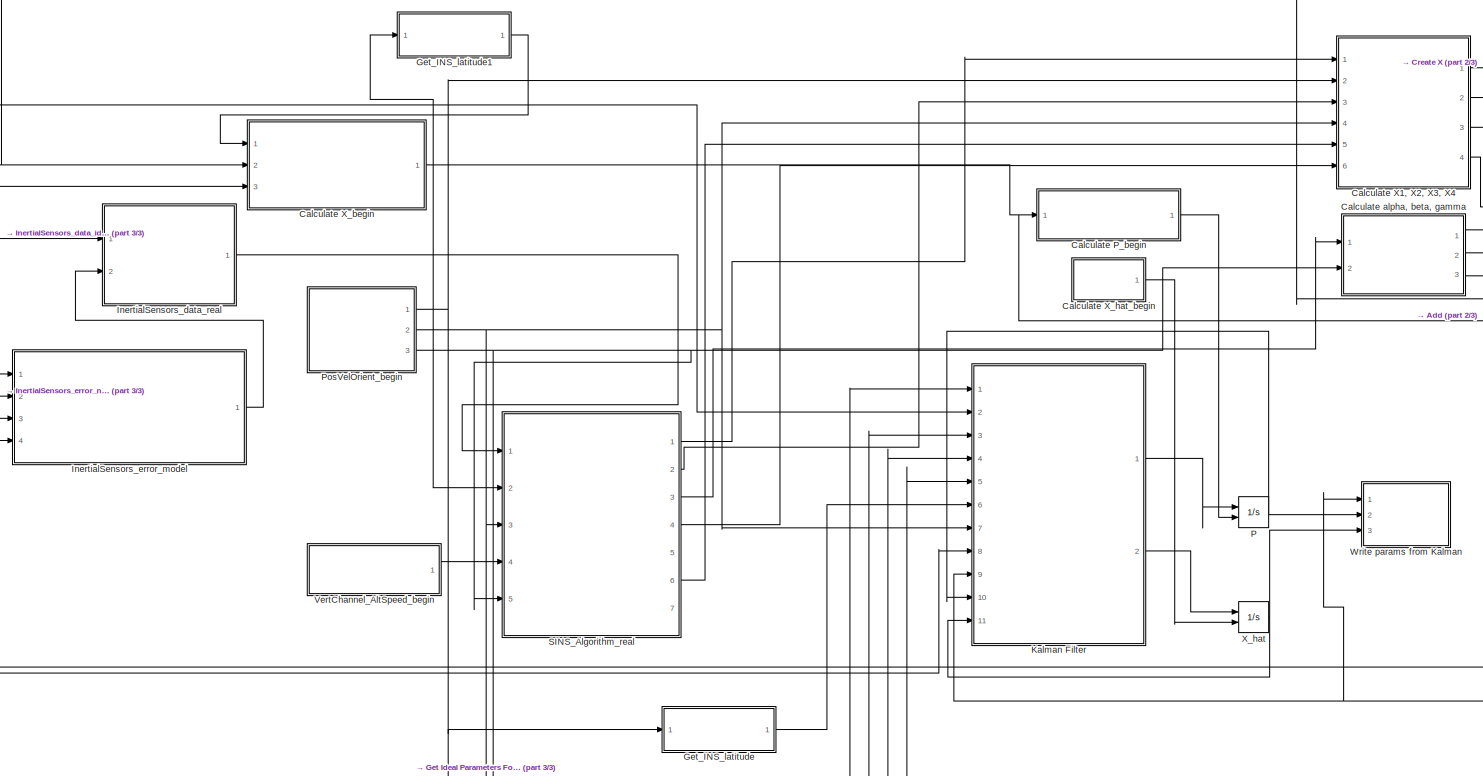
[diagram: root canvas - part 1/3, most of the canvas]
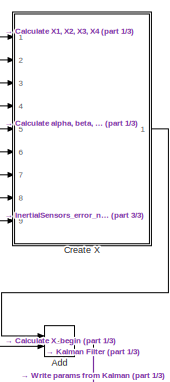
[diagram: root canvas - part 2/3, middle right region]
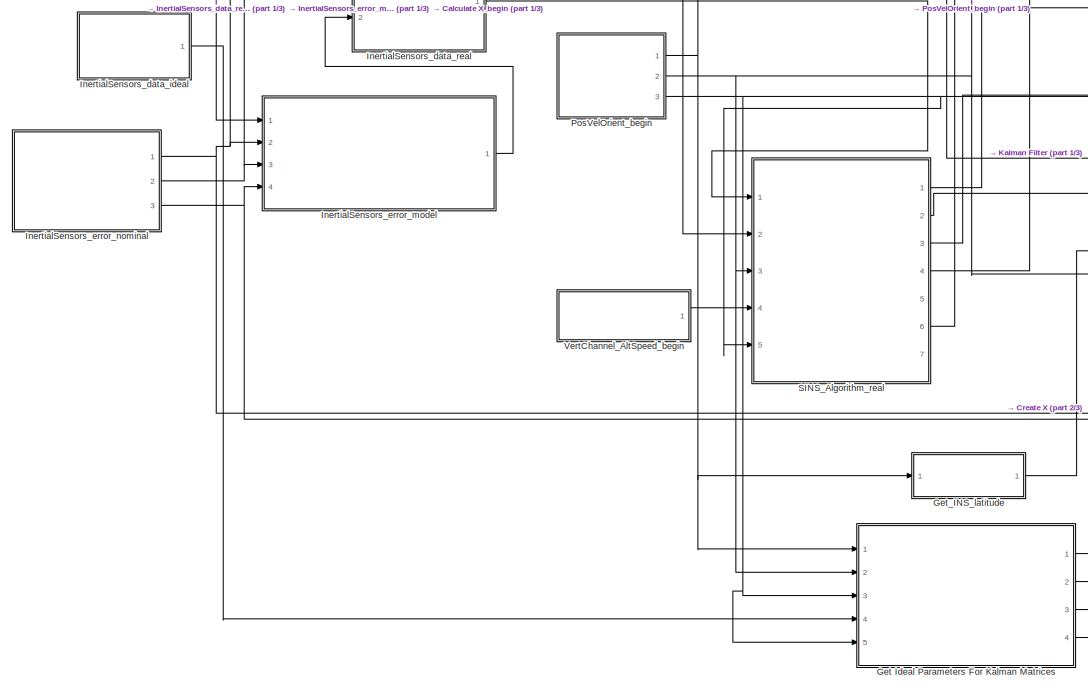
[diagram: root canvas - part 3/3, middle left region]
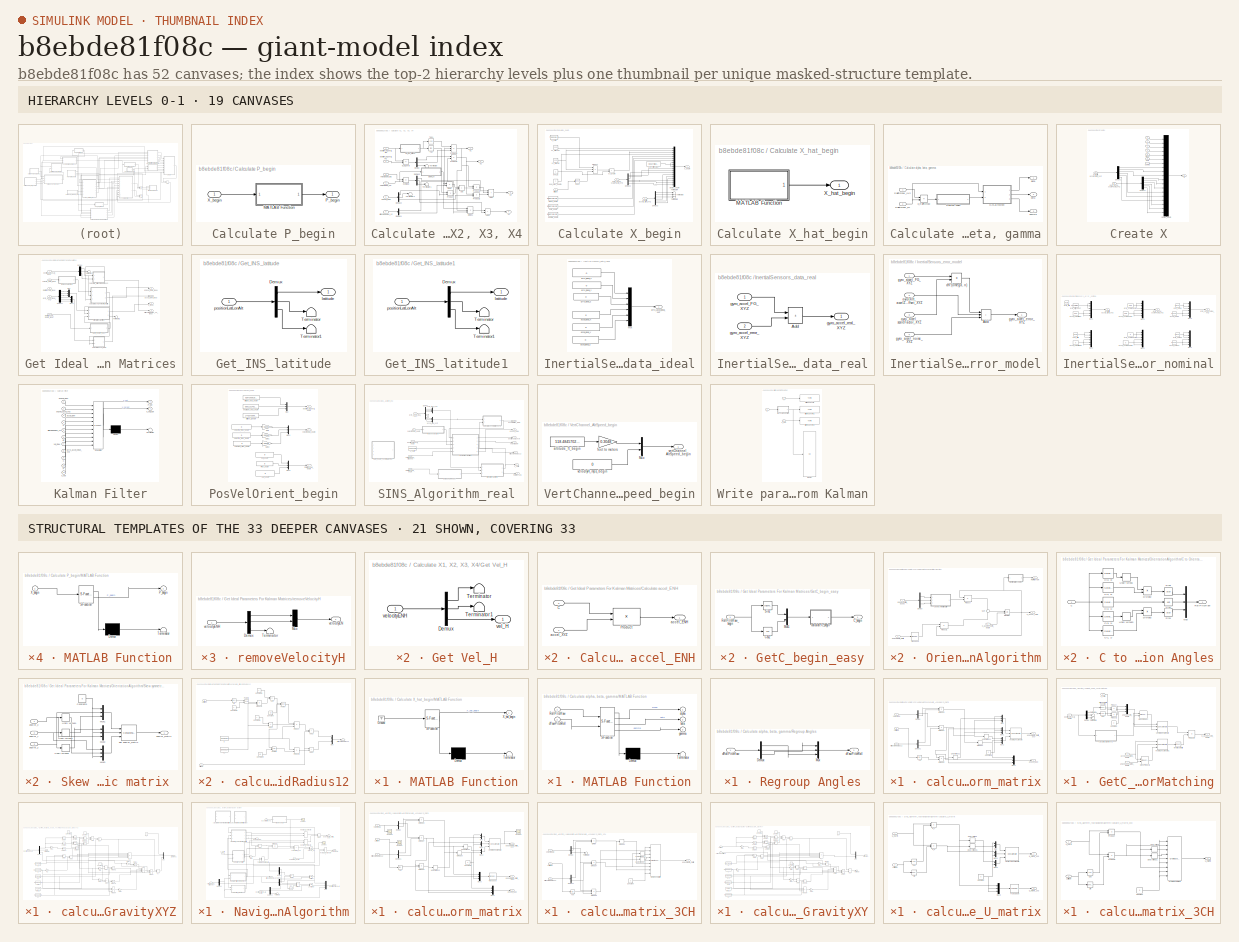
[diagram: thumbnail index - top-2 hierarchy levels (19 canvases) + 21 structural-template representatives of the remaining 33 canvases]
MODEL slx_b8ebde81f08c
KIND model
CONFIG AbsTol = auto
CONFIG EnableMultiTasking = off
CONFIG FixedStep = 0.01
CONFIG MaxStep = auto
CONFIG MinStep = auto
CONFIG RelTol = 1e-3
CONFIG SampleTimeConstraint = Unconstrained
CONFIG SolverName = VariableStepAuto
CONFIG StartTime = 0.0
CONFIG StopTime = 20000
WORKSPACE source: mxarray member
WORKSPACE enableTransmit = 1
BLOCK [Sum] Add
  IconShape = rectangular
  Ports = [2, 1]
BLOCK [SubSystem] Calculate P_begin
  Ports = [1, 1]
  RequestExecContextInheritance = off
BLOCK [SubSystem] Calculate P_begin/MATLAB Function
  ErrorFcn = Stateflow.Translate.translate
  PermitHierarchicalResolution = ExplicitOnly
  Ports = [1, 1]
  RequestExecContextInheritance = off
  SFBlockType = MATLAB Function
  TreatAsAtomicUnit = on
BLOCK [Demux] Calculate P_begin/MATLAB Function/ Demux 
  Outputs = 1
  Ports = [1, 1]
BLOCK [S-Function] Calculate P_begin/MATLAB Function/ SFunction 
  EnableBusSupport = on
  FunctionName = sf_sfun
  PortCounts = [1 2]
  Ports = [1, 2]
  SFcnIsStateOwnerBlock = off
  SFunctionDeploymentMode = off
  Tag = Stateflow S-Function 4
BLOCK [Terminator] Calculate P_begin/MATLAB Function/ Terminator 
BLOCK [Outport] Calculate P_begin/MATLAB Function/P_begin
BLOCK [Inport] Calculate P_begin/MATLAB Function/X_begin
BLOCK [Outport] Calculate P_begin/P_begin
BLOCK [Inport] Calculate P_begin/X_begin
BLOCK [SubSystem] Calculate X1, X2, X3, X4
  Ports = [6, 4]
  RequestExecContextInheritance = off
BLOCK [Sum] Calculate X1, X2, X3, X4/Add
  IconShape = rectangular
  Ports = [2, 1]
BLOCK [Sum] Calculate X1, X2, X3, X4/Add1
  IconShape = rectangular
  Inputs = +++
  Ports = [3, 1]
BLOCK [Sum] Calculate X1, X2, X3, X4/Add2
  IconShape = rectangular
  Ports = [2, 1]
BLOCK [Demux] Calculate X1, X2, X3, X4/Demux
  Outputs = 3
  Ports = [1, 3]
BLOCK [Demux] Calculate X1, X2, X3, X4/Demux1
  Outputs = 2
  Ports = [1, 2]
BLOCK [Demux] Calculate X1, X2, X3, X4/Demux2
  Outputs = 3
  Ports = [1, 3]
BLOCK [Demux] Calculate X1, X2, X3, X4/Demux3
  Outputs = 3
  Ports = [1, 3]
BLOCK [Product] Calculate X1, X2, X3, X4/Divide
  Inputs = */
  Ports = [2, 1]
BLOCK [Product] Calculate X1, X2, X3, X4/Divide1
  Inputs = **/
  Ports = [3, 1]
BLOCK [SubSystem] Calculate X1, X2, X3, X4/Get Vel_H
  Ports = [1, 1]
  RequestExecContextInheritance = off
BLOCK [Demux] Calculate X1, X2, X3, X4/Get Vel_H/Demux
  Outputs = 3
  Ports = [1, 3]
BLOCK [Terminator] Calculate X1, X2, X3, X4/Get Vel_H/Terminator
BLOCK [Terminator] Calculate X1, X2, X3, X4/Get Vel_H/Terminator1
BLOCK [Outport] Calculate X1, X2, X3, X4/Get Vel_H/vel_H
BLOCK [Inport] Calculate X1, X2, X3, X4/Get Vel_H/velocityENH
BLOCK [SubSystem] Calculate X1, X2, X3, X4/Get_INS_latitude
  Ports = [1, 1]
  RequestExecContextInheritance = off
BLOCK [Demux] Calculate X1, X2, X3, X4/Get_INS_latitude/Demux
  Outputs = 3
  Ports = [1, 3]
BLOCK [Terminator] Calculate X1, X2, X3, X4/Get_INS_latitude/Terminator
BLOCK [Terminator] Calculate X1, X2, X3, X4/Get_INS_latitude/Terminator1
BLOCK [Outport] Calculate X1, X2, X3, X4/Get_INS_latitude/latitude
BLOCK [Inport] Calculate X1, X2, X3, X4/Get_INS_latitude/positionLatLonAlt
BLOCK [Product] Calculate X1, X2, X3, X4/Product
  Ports = [2, 1]
BLOCK [Product] Calculate X1, X2, X3, X4/Product1
  Ports = [2, 1]
BLOCK [Product] Calculate X1, X2, X3, X4/Product2
  Ports = [2, 1]
BLOCK [Product] Calculate X1, X2, X3, X4/Product3
  Inputs = 3
  Ports = [3, 1]
BLOCK [Product] Calculate X1, X2, X3, X4/Product4
  Ports = [2, 1]
BLOCK [Trigonometry] Calculate X1, X2, X3, X4/Tan
  Operator = tan
  Ports = [1, 1]
BLOCK [Trigonometry] Calculate X1, X2, X3, X4/Tan1
  Operator = cos
  Ports = [1, 1]
BLOCK [Terminator] Calculate X1, X2, X3, X4/Terminator
BLOCK [Terminator] Calculate X1, X2, X3, X4/Terminator1
BLOCK [Terminator] Calculate X1, X2, X3, X4/Terminator2
BLOCK [Outport] Calculate X1, X2, X3, X4/X1
BLOCK [Outport] Calculate X1, X2, X3, X4/X2
  Port = 2
BLOCK [Outport] Calculate X1, X2, X3, X4/X3
  Port = 3
BLOCK [Outport] Calculate X1, X2, X3, X4/X4
  Port = 4
BLOCK [Inport] Calculate X1, X2, X3, X4/angVel_ENH
  Port = 5
BLOCK [Sum] Calculate X1, X2, X3, X4/dLatLonAlt
  IconShape = rectangular
  Inputs = +-
  Ports = [2, 1]
BLOCK [Sum] Calculate X1, X2, X3, X4/dVelENH
  IconShape = rectangular
  Inputs = +-
  Ports = [2, 1]
BLOCK [Inport] Calculate X1, X2, X3, X4/ellipsoidRadius_12
  Port = 6
BLOCK [Inport] Calculate X1, X2, X3, X4/positionLatLonAlt_FG
  Port = 2
BLOCK [Inport] Calculate X1, X2, X3, X4/positionLatLonAlt_INS
BLOCK [Inport] Calculate X1, X2, X3, X4/velocityENH_FG
  Port = 4
BLOCK [Inport] Calculate X1, X2, X3, X4/velocityENH_INS
  Port = 3
BLOCK [SubSystem] Calculate X_begin
  Ports = [3, 1]
  RequestExecContextInheritance = off
BLOCK [Trigonometry] Calculate X_begin/Cosh
  Ports = [1, 1]
BLOCK [Demux] Calculate X_begin/Demux2
  Outputs = 6
  Ports = [1, 6]
BLOCK [Demux] Calculate X_begin/Demux3
  Outputs = 6
  Ports = [1, 6]
BLOCK [Product] Calculate X_begin/Product
  Inputs = 3
  Ports = [3, 1]
BLOCK [Terminator] Calculate X_begin/Terminator2
BLOCK [Terminator] Calculate X_begin/Terminator3
BLOCK [Terminator] Calculate X_begin/Terminator4
BLOCK [Constant] Calculate X_begin/U_earth
  Value = 7.29212e-5
BLOCK [Outport] Calculate X_begin/X_begin
BLOCK [Constant] Calculate X_begin/alpha_begin
  Value = deg2rad(0.02)
BLOCK [Constant] Calculate X_begin/beta_begin
  Value = deg2rad(0.02)
BLOCK [Mux] Calculate X_begin/create X_begin
  DisplayOption = bar
  Inputs = 19
  Ports = [19, 1]
BLOCK [Constant] Calculate X_begin/dVel_E
BLOCK [Constant] Calculate X_begin/dVel_N (x4_begin)
BLOCK [Constant] Calculate X_begin/gamma_begin
  Value = deg2rad(0.02)
BLOCK [Inport] Calculate X_begin/gyroDrift_accelZeroOffset_XYZ
  Port = 3
BLOCK [Inport] Calculate X_begin/gyro_accel_scaleFactor_XYZ
  Port = 2
BLOCK [Constant] Calculate X_begin/gyro_drift_value
  Value = 0.015*pi/180/3600
BLOCK [Inport] Calculate X_begin/latitude
BLOCK [Constant] Calculate X_begin/x1_m (dLon)
  Value = 100
BLOCK [Constant] Calculate X_begin/x2_m (dLat)
  Value = 100
BLOCK [Sum] Calculate X_begin/x3_begin
  IconShape = rectangular
  Ports = [2, 1]
BLOCK [SubSystem] Calculate X_hat_begin
  Ports = [0, 1]
  RequestExecContextInheritance = off
BLOCK [SubSystem] Calculate X_hat_begin/MATLAB Function
  ErrorFcn = Stateflow.Translate.translate
  PermitHierarchicalResolution = ExplicitOnly
  Ports = [0, 1]
  RequestExecContextInheritance = off
  SFBlockType = MATLAB Function
  TreatAsAtomicUnit = on
BLOCK [Demux] Calculate X_hat_begin/MATLAB Function/ Demux 
  Outputs = 1
  Ports = [1, 1]
BLOCK [Ground] Calculate X_hat_begin/MATLAB Function/ Ground 
BLOCK [S-Function] Calculate X_hat_begin/MATLAB Function/ SFunction 
  EnableBusSupport = on
  FunctionName = sf_sfun
  PortCounts = [1 2]
  Ports = [1, 2]
  SFcnIsStateOwnerBlock = off
  SFunctionDeploymentMode = off
  Tag = Stateflow S-Function 6
BLOCK [Terminator] Calculate X_hat_begin/MATLAB Function/ Terminator 
BLOCK [Outport] Calculate X_hat_begin/MATLAB Function/X_hat_begin
BLOCK [Outport] Calculate X_hat_begin/X_hat_begin
BLOCK [SubSystem] Calculate alpha, beta, gamma
  Ports = [2, 3]
  RequestExecContextInheritance = off
BLOCK [SubSystem] Calculate alpha, beta, gamma/MATLAB Function
  ErrorFcn = Stateflow.Translate.translate
  PermitHierarchicalResolution = ExplicitOnly
  Ports = [2, 3]
  RequestExecContextInheritance = off
  SFBlockType = MATLAB Function
  TreatAsAtomicUnit = on
BLOCK [Demux] Calculate alpha, beta, gamma/MATLAB Function/ Demux 
  Outputs = 1
  Ports = [1, 1]
BLOCK [S-Function] Calculate alpha, beta, gamma/MATLAB Function/ SFunction 
  EnableBusSupport = on
  FunctionName = sf_sfun
  PortCounts = [2 4]
  Ports = [2, 4]
  SFcnIsStateOwnerBlock = off
  SFunctionDeploymentMode = off
  Tag = Stateflow S-Function 1
BLOCK [Terminator] Calculate alpha, beta, gamma/MATLAB Function/ Terminator 
BLOCK [Inport] Calculate alpha, beta, gamma/MATLAB Function/RollPitchYaw
BLOCK [Outport] Calculate alpha, beta, gamma/MATLAB Function/alpha
BLOCK [Outport] Calculate alpha, beta, gamma/MATLAB Function/beta
  Port = 2
BLOCK [Inport] Calculate alpha, beta, gamma/MATLAB Function/dYawPitchRoll
  Port = 2
BLOCK [Outport] Calculate alpha, beta, gamma/MATLAB Function/gamma
  Port = 3
BLOCK [SubSystem] Calculate alpha, beta, gamma/Regroup Angles
  Ports = [1, 1]
  RequestExecContextInheritance = off
BLOCK [Demux] Calculate alpha, beta, gamma/Regroup Angles/Demux
  Outputs = 3
  Ports = [1, 3]
BLOCK [Mux] Calculate alpha, beta, gamma/Regroup Angles/Mux
  DisplayOption = bar
  Inputs = 3
  Ports = [3, 1]
BLOCK [Inport] Calculate alpha, beta, gamma/Regroup Angles/dRollPitchYaw
BLOCK [Outport] Calculate alpha, beta, gamma/Regroup Angles/dYawPitchRoll
BLOCK [Inport] Calculate alpha, beta, gamma/RollPitchYaw_FG
  Port = 2
BLOCK [Inport] Calculate alpha, beta, gamma/RollPitchYaw_INS
BLOCK [Outport] Calculate alpha, beta, gamma/alpha
BLOCK [Outport] Calculate alpha, beta, gamma/beta
  Port = 2
BLOCK [Sum] Calculate alpha, beta, gamma/d_RollPitchYaw
  IconShape = rectangular
  Inputs = +-
  Ports = [2, 1]
BLOCK [Outport] Calculate alpha, beta, gamma/gamma
  Port = 3
BLOCK [SubSystem] Create X
  Ports = [9, 1]
  RequestExecContextInheritance = off
BLOCK [Demux] Create X/Demux1
  Outputs = 6
  Ports = [1, 6]
BLOCK [Demux] Create X/Demux2
  Outputs = 6
  Ports = [1, 6]
BLOCK [Outport] Create X/X
BLOCK [Inport] Create X/X1
BLOCK [Inport] Create X/X2
  Port = 2
BLOCK [Inport] Create X/X3
  Port = 3
BLOCK [Inport] Create X/X4
  Port = 4
BLOCK [Inport] Create X/alpha
  Port = 5
BLOCK [Inport] Create X/beta
  Port = 6
BLOCK [Mux] Create X/create X_begin
  DisplayOption = bar
  Inputs = 19
  Ports = [19, 1]
BLOCK [Inport] Create X/gamma
  Port = 7
BLOCK [Inport] Create X/gyroDrift_accelZeroOffset_XYZ
  Port = 9
BLOCK [Inport] Create X/gyro_accel_scaleFactor_XYZ
  Port = 8
BLOCK [SubSystem] Get Ideal Parameters For Kalman Matrices
  Ports = [5, 4]
  RequestExecContextInheritance = off
BLOCK [Outport] Get Ideal Parameters For Kalman Matrices/C_ideal
  Port = 3
BLOCK [SubSystem] Get Ideal Parameters For Kalman Matrices/Calculate accel_ENH
  Ports = [2, 1]
  RequestExecContextInheritance = off
BLOCK [Inport] Get Ideal Parameters For Kalman Matrices/Calculate accel_ENH/C
  Port = 2
BLOCK [Product] Get Ideal Parameters For Kalman Matrices/Calculate accel_ENH/Product
  Multiplication = Matrix(*)
  Ports = [2, 1]
BLOCK [Outport] Get Ideal Parameters For Kalman Matrices/Calculate accel_ENH/accel_ENH
BLOCK [Inport] Get Ideal Parameters For Kalman Matrices/Calculate accel_ENH/accel_XYZ
BLOCK [Demux] Get Ideal Parameters For Kalman Matrices/Demux
  Outputs = 3
  Ports = [1, 3]
BLOCK [Demux] Get Ideal Parameters For Kalman Matrices/Demux1
  Outputs = 6
  Ports = [1, 6]
BLOCK [SubSystem] Get Ideal Parameters For Kalman Matrices/GetC_begin_easy
  Ports = [1, 1]
  RequestExecContextInheritance = off
BLOCK [Outport] Get Ideal Parameters For Kalman Matrices/GetC_begin_easy/C_begin
BLOCK [Trigonometry] Get Ideal Parameters For Kalman Matrices/GetC_begin_easy/Cos2
  Operator = cos
  Ports = [1, 1]
BLOCK [Mux] Get Ideal Parameters For Kalman Matrices/GetC_begin_easy/Mux1
  DisplayOption = bar
  Inputs = 2
  Ports = [2, 1]
BLOCK [Inport] Get Ideal Parameters For Kalman Matrices/GetC_begin_easy/RollPitchYaw_begin
BLOCK [Trigonometry] Get Ideal Parameters For Kalman Matrices/GetC_begin_easy/Sin2
  Ports = [1, 1]
BLOCK [SubSystem] Get Ideal Parameters For Kalman Matrices/GetC_begin_easy/calculate C_begin
  ErrorFcn = Stateflow.Translate.translate
  PermitHierarchicalResolution = ExplicitOnly
  Ports = [1, 1]
  RequestExecContextInheritance = off
  SFBlockType = MATLAB Function
  TreatAsAtomicUnit = on
BLOCK [Demux] Get Ideal Parameters For Kalman Matrices/GetC_begin_easy/calculate C_begin/ Demux 
  Outputs = 1
  Ports = [1, 1]
BLOCK [S-Function] Get Ideal Parameters For Kalman Matrices/GetC_begin_easy/calculate C_begin/ SFunction 
  EnableBusSupport = on
  FunctionName = sf_sfun
  PortCounts = [1 2]
  Ports = [1, 2]
  SFcnIsStateOwnerBlock = off
  SFunctionDeploymentMode = off
  Tag = Stateflow S-Function 7
BLOCK [Terminator] Get Ideal Parameters For Kalman Matrices/GetC_begin_easy/calculate C_begin/ Terminator 
BLOCK [Inport] Get Ideal Parameters For Kalman Matrices/GetC_begin_easy/calculate C_begin/u
BLOCK [Outport] Get Ideal Parameters For Kalman Matrices/GetC_begin_easy/calculate C_begin/y
BLOCK [Mux] Get Ideal Parameters For Kalman Matrices/Mux
  DisplayOption = bar
  Inputs = 3
  Ports = [3, 1]
BLOCK [Mux] Get Ideal Parameters For Kalman Matrices/Mux1
  DisplayOption = bar
  Inputs = 3
  Ports = [3, 1]
BLOCK [SubSystem] Get Ideal Parameters For Kalman Matrices/OrientationAlgorithm
  Ports = [3, 2]
  RequestExecContextInheritance = off
BLOCK [SubSystem] Get Ideal Parameters For Kalman Matrices/OrientationAlgorithm/C to Orientation Angles
  Ports = [1, 1]
  RequestExecContextInheritance = off
BLOCK [Inport] Get Ideal Parameters For Kalman Matrices/OrientationAlgorithm/C to Orientation Angles/C
BLOCK [Selector] Get Ideal Parameters For Kalman Matrices/OrientationAlgorithm/C to Orientation Angles/C(1, 1)
  IndexOptions = Index vector (dialog),Index vector (dialog)
  Indices = 1,1
  InputPortWidth = 3
  NumberOfDimensions = 2
  OutputSizes = 1,1
  Ports = [1, 1]
BLOCK [Selector] Get Ideal Parameters For Kalman Matrices/OrientationAlgorithm/C to Orientation Angles/C(2, 1)
  IndexOptions = Index vector (dialog),Index vector (dialog)
  Indices = 2,1
  InputPortWidth = 3
  NumberOfDimensions = 2
  OutputSizes = 1,1
  Ports = [1, 1]
BLOCK [Selector] Get Ideal Parameters For Kalman Matrices/OrientationAlgorithm/C to Orientation Angles/C(2, 2)
  IndexOptions = Index vector (dialog),Index vector (dialog)
  Indices = 2,2
  InputPortWidth = 3
  NumberOfDimensions = 2
  OutputSizes = 1,1
  Ports = [1, 1]
BLOCK [Selector] Get Ideal Parameters For Kalman Matrices/OrientationAlgorithm/C to Orientation Angles/C(2, 3)
  IndexOptions = Index vector (dialog),Index vector (dialog)
  Indices = 2,3
  InputPortWidth = 3
  NumberOfDimensions = 2
  OutputSizes = 1,1
  Ports = [1, 1]
BLOCK [Selector] Get Ideal Parameters For Kalman Matrices/OrientationAlgorithm/C to Orientation Angles/C(3, 1)
  IndexOptions = Index vector (dialog),Index vector (dialog)
  Indices = 3,1
  InputPortWidth = 3
  NumberOfDimensions = 2
  OutputSizes = 1,1
  Ports = [1, 1]
BLOCK [Product] Get Ideal Parameters For Kalman Matrices/OrientationAlgorithm/C to Orientation Angles/Divide2
  Inputs = */
  Ports = [2, 1]
BLOCK [Product] Get Ideal Parameters For Kalman Matrices/OrientationAlgorithm/C to Orientation Angles/Divide3
  Inputs = */
  Ports = [2, 1]
BLOCK [Mux] Get Ideal Parameters For Kalman Matrices/OrientationAlgorithm/C to Orientation Angles/Mux
  DisplayOption = bar
  Inputs = 3
  Ports = [3, 1]
BLOCK [Outport] Get Ideal Parameters For Kalman Matrices/OrientationAlgorithm/C to Orientation Angles/RollPitchYaw
BLOCK [Trigonometry] Get Ideal Parameters For Kalman Matrices/OrientationAlgorithm/C to Orientation Angles/Sin3
  Operator = atan
  Ports = [1, 1]
BLOCK [Trigonometry] Get Ideal Parameters For Kalman Matrices/OrientationAlgorithm/C to Orientation Angles/Sin4
  Operator = atan
  Ports = [1, 1]
BLOCK [Trigonometry] Get Ideal Parameters For Kalman Matrices/OrientationAlgorithm/C to Orientation Angles/Sin5
  Operator = asin
  Ports = [1, 1]
BLOCK [UnaryMinus] Get Ideal Parameters For Kalman Matrices/OrientationAlgorithm/C to Orientation Angles/Unary Minus
BLOCK [UnaryMinus] Get Ideal Parameters For Kalman Matrices/OrientationAlgorithm/C to Orientation Angles/Unary Minus3
BLOCK [Outport] Get Ideal Parameters For Kalman Matrices/OrientationAlgorithm/C_assoc_norm
BLOCK [Inport] Get Ideal Parameters For Kalman Matrices/OrientationAlgorithm/C_assoc_norm_begin
  Port = 3
BLOCK [Demux] Get Ideal Parameters For Kalman Matrices/OrientationAlgorithm/Demux
  Outputs = 3
  Ports = [1, 3]
BLOCK [Integrator] Get Ideal Parameters For Kalman Matrices/OrientationAlgorithm/Integrator
  InitialCondition = [0, 0, 0; 0, 0, 0; 0, 0, 0]
  InitialConditionSource = external
  Ports = [2, 1]
BLOCK [Product] Get Ideal Parameters For Kalman Matrices/OrientationAlgorithm/Product
  Multiplication = Matrix(*)
  Ports = [2, 1]
BLOCK [Product] Get Ideal Parameters For Kalman Matrices/OrientationAlgorithm/Product1
  Multiplication = Matrix(*)
  Ports = [2, 1]
BLOCK [Outport] Get Ideal Parameters For Kalman Matrices/OrientationAlgorithm/RollPitchYaw
  Port = 2
BLOCK [SubSystem] Get Ideal Parameters For Kalman Matrices/OrientationAlgorithm/Skew symmetric matrix 
  Ports = [3, 1]
  RequestExecContextInheritance = off
BLOCK [Constant] Get Ideal Parameters For Kalman Matrices/OrientationAlgorithm/Skew symmetric matrix /Constant5
  Value = 0
BLOCK [Mux] Get Ideal Parameters For Kalman Matrices/OrientationAlgorithm/Skew symmetric matrix /Mux1
  DisplayOption = bar
  Inputs = 3
  Ports = [3, 1]
BLOCK [Mux] Get Ideal Parameters For Kalman Matrices/OrientationAlgorithm/Skew symmetric matrix /Mux2
  DisplayOption = bar
  Inputs = 3
  Ports = [3, 1]
BLOCK [Mux] Get Ideal Parameters For Kalman Matrices/OrientationAlgorithm/Skew symmetric matrix /Mux3
  DisplayOption = bar
  Inputs = 3
  Ports = [3, 1]
BLOCK [UnaryMinus] Get Ideal Parameters For Kalman Matrices/OrientationAlgorithm/Skew symmetric matrix /Unary Minus1
BLOCK [UnaryMinus] Get Ideal Parameters For Kalman Matrices/OrientationAlgorithm/Skew symmetric matrix /Unary Minus2
BLOCK [UnaryMinus] Get Ideal Parameters For Kalman Matrices/OrientationAlgorithm/Skew symmetric matrix /Unary Minus6
BLOCK [Outport] Get Ideal Parameters For Kalman Matrices/OrientationAlgorithm/Skew symmetric matrix /angVel_matrix
BLOCK [Inport] Get Ideal Parameters For Kalman Matrices/OrientationAlgorithm/Skew symmetric matrix /angVel_x
BLOCK [Inport] Get Ideal Parameters For Kalman Matrices/OrientationAlgorithm/Skew symmetric matrix /angVel_y
  Port = 2
BLOCK [Inport] Get Ideal Parameters For Kalman Matrices/OrientationAlgorithm/Skew symmetric matrix /angVel_z
  Port = 3
BLOCK [Concatenate] Get Ideal Parameters For Kalman Matrices/OrientationAlgorithm/Skew symmetric matrix /get angVel_matrix
  ConcatenateDimension = 2
  Mode = Multidimensional array
  NumInputs = 3
  Ports = [3, 1]
BLOCK [Sum] Get Ideal Parameters For Kalman Matrices/OrientationAlgorithm/Sum
  Inputs = +-
  Ports = [2, 1]
BLOCK [Reference] Get Ideal Parameters For Kalman Matrices/OrientationAlgorithm/Transpose  REF=matrix_library/Transpose
  Ports = [1, 1]
  SourceBlock = matrix_library/Transpose
  SourceProductBaseCode = SL
  SourceType = Transpose
BLOCK [Inport] Get Ideal Parameters For Kalman Matrices/OrientationAlgorithm/angVelNorm_matrix
  Port = 2
BLOCK [Inport] Get Ideal Parameters For Kalman Matrices/OrientationAlgorithm/angVel_inertial_assoc
BLOCK [Inport] Get Ideal Parameters For Kalman Matrices/RollPitchYaw_begin_ideal
  Port = 5
BLOCK [Inport] Get Ideal Parameters For Kalman Matrices/RollPitchYaw_ideal
  Port = 3
BLOCK [Terminator] Get Ideal Parameters For Kalman Matrices/Terminator
BLOCK [Terminator] Get Ideal Parameters For Kalman Matrices/Terminator1
BLOCK [Outport] Get Ideal Parameters For Kalman Matrices/accel_ENH_ideal
  Port = 2
BLOCK [Outport] Get Ideal Parameters For Kalman Matrices/angVel_ENH_ideal
BLOCK [SubSystem] Get Ideal Parameters For Kalman Matrices/calculate_AngVelNorm_matrix
  Ports = [3, 2]
  RequestExecContextInheritance = off
BLOCK [Product] Get Ideal Parameters For Kalman Matrices/calculate_AngVelNorm_matrix/-OmegaX
  Inputs = */
  Ports = [2, 1]
BLOCK [Constant] Get Ideal Parameters For Kalman Matrices/calculate_AngVelNorm_matrix/Constant1
  Value = 0
BLOCK [Demux] Get Ideal Parameters For Kalman Matrices/calculate_AngVelNorm_matrix/Demux
  Outputs = 2
  Ports = [1, 2]
BLOCK [Demux] Get Ideal Parameters For Kalman Matrices/calculate_AngVelNorm_matrix/Demux1
  Outputs = 2
  Ports = [1, 2]
BLOCK [Inport] Get Ideal Parameters For Kalman Matrices/calculate_AngVelNorm_matrix/Latitude
  Port = 2
BLOCK [Mux] Get Ideal Parameters For Kalman Matrices/calculate_AngVelNorm_matrix/Mux
  DisplayOption = bar
  Inputs = 3
  Ports = [3, 1]
BLOCK [Mux] Get Ideal Parameters For Kalman Matrices/calculate_AngVelNorm_matrix/Mux1
  DisplayOption = bar
  Inputs = 3
  Ports = [3, 1]
BLOCK [Mux] Get Ideal Parameters For Kalman Matrices/calculate_AngVelNorm_matrix/Mux2
  DisplayOption = bar
  Inputs = 3
  Ports = [3, 1]
BLOCK [Mux] Get Ideal Parameters For Kalman Matrices/calculate_AngVelNorm_matrix/Mux4
  DisplayOption = bar
  Inputs = 3
  Ports = [3, 1]
BLOCK [UnaryMinus] Get Ideal Parameters For Kalman Matrices/calculate_AngVelNorm_matrix/OmegaX
BLOCK [Product] Get Ideal Parameters For Kalman Matrices/calculate_AngVelNorm_matrix/OmegaY
  Inputs = */
  Ports = [2, 1]
BLOCK [Product] Get Ideal Parameters For Kalman Matrices/calculate_AngVelNorm_matrix/OmegaZ
  Inputs = **
  Ports = [2, 1]
BLOCK [Trigonometry] Get Ideal Parameters For Kalman Matrices/calculate_AngVelNorm_matrix/Tan
  Operator = tan
  Ports = [1, 1]
BLOCK [UnaryMinus] Get Ideal Parameters For Kalman Matrices/calculate_AngVelNorm_matrix/Unary Minus1
BLOCK [UnaryMinus] Get Ideal Parameters For Kalman Matrices/calculate_AngVelNorm_matrix/Unary Minus2
BLOCK [Concatenate] Get Ideal Parameters For Kalman Matrices/calculate_AngVelNorm_matrix/Vector Concatenate
  ConcatenateDimension = 2
  Mode = Multidimensional array
  NumInputs = 3
  Ports = [3, 1]
BLOCK [Outport] Get Ideal Parameters For Kalman Matrices/calculate_AngVelNorm_matrix/angVelNorm_matrix_3x3
BLOCK [Outport] Get Ideal Parameters For Kalman Matrices/calculate_AngVelNorm_matrix/angVel_ENH
  Port = 2
BLOCK [Inport] Get Ideal Parameters For Kalman Matrices/calculate_AngVelNorm_matrix/ellipsoidRadius12
  Port = 3
BLOCK [Inport] Get Ideal Parameters For Kalman Matrices/calculate_AngVelNorm_matrix/velocityEN
BLOCK [SubSystem] Get Ideal Parameters For Kalman Matrices/calculate_EllipsoidRadius12
  Ports = [2, 1]
  RequestExecContextInheritance = off
BLOCK [Sum] Get Ideal Parameters For Kalman Matrices/calculate_EllipsoidRadius12/Add
  IconShape = rectangular
  Inputs = +-
  Ports = [2, 1]
BLOCK [Sum] Get Ideal Parameters For Kalman Matrices/calculate_EllipsoidRadius12/Add1
  IconShape = rectangular
  Inputs = +-
  Ports = [2, 1]
BLOCK [Sum] Get Ideal Parameters For Kalman Matrices/calculate_EllipsoidRadius12/Add2
  IconShape = rectangular
  Ports = [2, 1]
BLOCK [Sum] Get Ideal Parameters For Kalman Matrices/calculate_EllipsoidRadius12/Add3
  IconShape = rectangular
  Ports = [2, 1]
BLOCK [Inport] Get Ideal Parameters For Kalman Matrices/calculate_EllipsoidRadius12/Altitude
  Port = 2
BLOCK [Constant] Get Ideal Parameters For Kalman Matrices/calculate_EllipsoidRadius12/Constant
  Value = 1.5
BLOCK [Constant] Get Ideal Parameters For Kalman Matrices/calculate_EllipsoidRadius12/Constant1
BLOCK [Constant] Get Ideal Parameters For Kalman Matrices/calculate_EllipsoidRadius12/Constant2
  Value = 2
BLOCK [Constant] Get Ideal Parameters For Kalman Matrices/calculate_EllipsoidRadius12/Constant3
BLOCK [Constant] Get Ideal Parameters For Kalman Matrices/calculate_EllipsoidRadius12/Constant4
  Value = -0.5
BLOCK [Inport] Get Ideal Parameters For Kalman Matrices/calculate_EllipsoidRadius12/Latitude
BLOCK [Mux] Get Ideal Parameters For Kalman Matrices/calculate_EllipsoidRadius12/Mux
  DisplayOption = bar
  Inputs = 2
  Ports = [2, 1]
BLOCK [Math] Get Ideal Parameters For Kalman Matrices/calculate_EllipsoidRadius12/Power
  Operator = pow
  Ports = [2, 1]
BLOCK [Math] Get Ideal Parameters For Kalman Matrices/calculate_EllipsoidRadius12/Power1
  Operator = pow
  Ports = [2, 1]
BLOCK [Math] Get Ideal Parameters For Kalman Matrices/calculate_EllipsoidRadius12/Power2
  Operator = pow
  Ports = [2, 1]
BLOCK [Product] Get Ideal Parameters For Kalman Matrices/calculate_EllipsoidRadius12/Product
  Inputs = 3
  Ports = [3, 1]
BLOCK [Product] Get Ideal Parameters For Kalman Matrices/calculate_EllipsoidRadius12/Product1
  Ports = [2, 1]
BLOCK [Product] Get Ideal Parameters For Kalman Matrices/calculate_EllipsoidRadius12/Product2
  Ports = [2, 1]
BLOCK [Trigonometry] Get Ideal Parameters For Kalman Matrices/calculate_EllipsoidRadius12/Sin
  Ports = [1, 1]
BLOCK [Constant] Get Ideal Parameters For Kalman Matrices/calculate_EllipsoidRadius12/a
  Value = 6378245
BLOCK [Constant] Get Ideal Parameters For Kalman Matrices/calculate_EllipsoidRadius12/e2
  Value = 0.0066934
BLOCK [Outport] Get Ideal Parameters For Kalman Matrices/calculate_EllipsoidRadius12/ellipsoidRadius12
BLOCK [Outport] Get Ideal Parameters For Kalman Matrices/ellipsoidRadius_12_ideal
  Port = 4
BLOCK [Inport] Get Ideal Parameters For Kalman Matrices/gyro_accel_ideal_XYZ
  Port = 4
BLOCK [Inport] Get Ideal Parameters For Kalman Matrices/positionLatLonAlt_ideal
BLOCK [SubSystem] Get Ideal Parameters For Kalman Matrices/removeVelocityH
  Ports = [1, 1]
  RequestExecContextInheritance = off
BLOCK [Demux] Get Ideal Parameters For Kalman Matrices/removeVelocityH/Demux
  Outputs = 3
  Ports = [1, 3]
BLOCK [Mux] Get Ideal Parameters For Kalman Matrices/removeVelocityH/Mux
  DisplayOption = bar
  Inputs = 2
  Ports = [2, 1]
BLOCK [Terminator] Get Ideal Parameters For Kalman Matrices/removeVelocityH/Terminator
BLOCK [Outport] Get Ideal Parameters For Kalman Matrices/removeVelocityH/velocityEN
BLOCK [Inport] Get Ideal Parameters For Kalman Matrices/removeVelocityH/velocityENH
BLOCK [Inport] Get Ideal Parameters For Kalman Matrices/velocity_NHE_ideal
  Port = 2
BLOCK [SubSystem] Get_INS_latitude
  Ports = [1, 1]
  RequestExecContextInheritance = off
BLOCK [Demux] Get_INS_latitude/Demux
  Outputs = 3
  Ports = [1, 3]
BLOCK [Terminator] Get_INS_latitude/Terminator
BLOCK [Terminator] Get_INS_latitude/Terminator1
BLOCK [Outport] Get_INS_latitude/latitude
BLOCK [Inport] Get_INS_latitude/positionLatLonAlt
BLOCK [SubSystem] Get_INS_latitude1
  Ports = [1, 1]
  RequestExecContextInheritance = off
BLOCK [Demux] Get_INS_latitude1/Demux
  Outputs = 3
  Ports = [1, 3]
BLOCK [Terminator] Get_INS_latitude1/Terminator
BLOCK [Terminator] Get_INS_latitude1/Terminator1
BLOCK [Outport] Get_INS_latitude1/latitude
BLOCK [Inport] Get_INS_latitude1/positionLatLonAlt
BLOCK [SubSystem] InertialSensors_data_ideal
  Ports = [0, 1]
  RequestExecContextInheritance = off
BLOCK [Mux] InertialSensors_data_ideal/Mux
  DisplayOption = bar
  Inputs = 6
  Ports = [6, 1]
BLOCK [Constant] InertialSensors_data_ideal/accel_ideal_X
  Value = 0
BLOCK [Constant] InertialSensors_data_ideal/accel_ideal_Y
  Value = 0
BLOCK [Constant] InertialSensors_data_ideal/accel_ideal_Z
  Value = 0
BLOCK [Outport] InertialSensors_data_ideal/gyro_accel_ideal_XYZ
BLOCK [Constant] InertialSensors_data_ideal/gyro_ideal_X
  Value = 0
BLOCK [Constant] InertialSensors_data_ideal/gyro_ideal_Y
  Value = 0
BLOCK [Constant] InertialSensors_data_ideal/gyro_ideal_Z
  Value = 0
BLOCK [SubSystem] InertialSensors_data_real
  Ports = [2, 1]
  RequestExecContextInheritance = off
BLOCK [Sum] InertialSensors_data_real/Add
  IconShape = rectangular
  Ports = [2, 1]
BLOCK [Inport] InertialSensors_data_real/gyro_accel_FG_XYZ
BLOCK [Inport] InertialSensors_data_real/gyro_accel_error_XYZ
  Port = 2
BLOCK [Outport] InertialSensors_data_real/gyro_accel_real_XYZ
BLOCK [SubSystem] InertialSensors_error_model
  Ports = [4, 1]
  RequestExecContextInheritance = off
BLOCK [Sum] InertialSensors_error_model/Add
  IconShape = rectangular
  Inputs = +++
  Ports = [3, 1]
BLOCK [Product] InertialSensors_error_model/dK*(omega, n)
  Ports = [2, 1]
BLOCK [Inport] InertialSensors_error_model/gyroDrift_accelZeroOffset_XYZ
  Port = 2
BLOCK [Inport] InertialSensors_error_model/gyro_accel_FG_XYZ
BLOCK [Outport] InertialSensors_error_model/gyro_accel_error_XYZ
BLOCK [Inport] InertialSensors_error_model/gyro_accel_noise_XYZ
  Port = 4
BLOCK [Inport] InertialSensors_error_model/gyro_accel_scaleFactor_XYZ
  Port = 3
BLOCK [SubSystem] InertialSensors_error_nominal
  Ports = [0, 3]
  RequestExecContextInheritance = off
BLOCK [Mux] InertialSensors_error_nominal/Mux1
  DisplayOption = bar
  Inputs = 6
  Ports = [6, 1]
BLOCK [Mux] InertialSensors_error_nominal/Mux2
  DisplayOption = bar
  Inputs = 6
  Ports = [6, 1]
BLOCK [Mux] InertialSensors_error_nominal/Mux3
  DisplayOption = bar
  Inputs = 6
  Ports = [6, 1]
BLOCK [Mux] InertialSensors_error_nominal/Mux4
  DisplayOption = bar
  Inputs = 6
  Ports = [6, 1]
BLOCK [Mux] InertialSensors_error_nominal/Mux5
  DisplayOption = bar
  Inputs = 6
  Ports = [6, 1]
BLOCK [Mux] InertialSensors_error_nominal/Mux6
  DisplayOption = bar
  Inputs = 6
  Ports = [6, 1]
BLOCK [RandomNumber] InertialSensors_error_nominal/accel_noise
  SampleTime = 1
  Variance = 1e-8
BLOCK [RandomNumber] InertialSensors_error_nominal/accel_noise1
  SampleTime = 1
  Variance = 0
BLOCK [Constant] InertialSensors_error_nominal/accel_scaleFactor
  Value = 3e-5
BLOCK [Constant] InertialSensors_error_nominal/accel_scaleFactor1
  Value = 0
BLOCK [Constant] InertialSensors_error_nominal/accel_zeroOffset
  Value = 5e-4
BLOCK [Constant] InertialSensors_error_nominal/accel_zeroOffset1
  Value = 0
BLOCK [Outport] InertialSensors_error_nominal/gyroDrift_accelZeroOffset_XYZ
BLOCK [Outport] InertialSensors_error_nominal/gyro_accel_noise_XYZ
  Port = 3
BLOCK [Outport] InertialSensors_error_nominal/gyro_accel_scaleFactor_XYZ
  Port = 2
BLOCK [Reference] InertialSensors_error_nominal/gyro_drift  REF=simulink/Sources/Ramp
  Ports = [0, 1]
  SourceBlock = simulink/Sources/Ramp
  SourceProductBaseCode = SL
  SourceType = Ramp
BLOCK [Reference] InertialSensors_error_nominal/gyro_drift1  REF=simulink/Sources/Ramp
  Ports = [0, 1]
  SourceBlock = simulink/Sources/Ramp
  SourceProductBaseCode = SL
  SourceType = Ramp
BLOCK [Constant] InertialSensors_error_nominal/gyro_drift_const
  Value = 0.015*pi/180/3600
BLOCK [RandomNumber] InertialSensors_error_nominal/gyro_noise
  SampleTime = 1
  Variance = (0.01*pi/180/3600)^2
BLOCK [RandomNumber] InertialSensors_error_nominal/gyro_noise1
  SampleTime = 1
  Variance = 0
BLOCK [Constant] InertialSensors_error_nominal/gyro_scaleFactor
  Value = 5e-4
BLOCK [Constant] InertialSensors_error_nominal/gyro_scaleFactor1
  Value = 0
BLOCK [SubSystem] Kalman Filter
  ErrorFcn = Stateflow.Translate.translate
  PermitHierarchicalResolution = ExplicitOnly
  Ports = [11, 2]
  RequestExecContextInheritance = off
  SFBlockType = MATLAB Function
  TreatAsAtomicUnit = on
BLOCK [Demux] Kalman Filter/ Demux 
  Outputs = 1
  Ports = [1, 1]
BLOCK [S-Function] Kalman Filter/ SFunction 
  EnableBusSupport = on
  FunctionName = sf_sfun
  PortCounts = [11 3]
  Ports = [11, 3]
  SFcnIsStateOwnerBlock = off
  SFunctionDeploymentMode = off
  Tag = Stateflow S-Function 3
BLOCK [Terminator] Kalman Filter/ Terminator 
BLOCK [Inport] Kalman Filter/C
  Port = 4
BLOCK [Inport] Kalman Filter/P
  Port = 10
BLOCK [Outport] Kalman Filter/P_dot
BLOCK [Inport] Kalman Filter/X
  Port = 9
BLOCK [Inport] Kalman Filter/X_hat
  Port = 11
BLOCK [Outport] Kalman Filter/X_hat_dot
  Port = 2
BLOCK [Inport] Kalman Filter/accel_ENH
  Port = 3
BLOCK [Inport] Kalman Filter/angVel_ENH
BLOCK [Inport] Kalman Filter/angVel_accel_XYZ
  Port = 2
BLOCK [Inport] Kalman Filter/ellipsoidRadius_12
  Port = 5
BLOCK [Inport] Kalman Filter/gyro_accel_noise_XYZ
  Port = 8
BLOCK [Inport] Kalman Filter/lat
  Port = 6
BLOCK [Inport] Kalman Filter/vel_ENH
  Port = 7
BLOCK [Integrator] P
  InitialConditionSource = external
  Ports = [2, 1]
BLOCK [SubSystem] PosVelOrient_begin
  Ports = [0, 3]
  RequestExecContextInheritance = off
BLOCK [Gain] PosVelOrient_begin/Gain
  Gain = 0.3048
BLOCK [Gain] PosVelOrient_begin/Gain1
  Gain = 0.3048
BLOCK [Gain] PosVelOrient_begin/Gain2
  Gain = 0.3048
BLOCK [Mux] PosVelOrient_begin/Mux
  DisplayOption = bar
  Inputs = 3
  Ports = [3, 1]
BLOCK [Mux] PosVelOrient_begin/Mux1
  DisplayOption = bar
  Inputs = 3
  Ports = [3, 1]
BLOCK [Mux] PosVelOrient_begin/Mux2
  DisplayOption = bar
  Inputs = 3
  Ports = [3, 1]
BLOCK [Constant] PosVelOrient_begin/Pitch_begin
  Value = 0
BLOCK [Outport] PosVelOrient_begin/RollPitchYaw_begin
  Port = 3
BLOCK [Constant] PosVelOrient_begin/Roll_begin
  Value = 0
BLOCK [Constant] PosVelOrient_begin/Yaw_begin
  Value = 0
BLOCK [Constant] PosVelOrient_begin/altitude_ft_begin
  Value = 177.0373066799141
BLOCK [Constant] PosVelOrient_begin/latitude_deg_begin
  Value = 0.9672608180643483
BLOCK [Constant] PosVelOrient_begin/longitude_deg_begin
  Value = 0.6611314818805803
BLOCK [Outport] PosVelOrient_begin/positionLatLonAlt_begin
BLOCK [Outport] PosVelOrient_begin/velocityENH_begin
  Port = 2
BLOCK [Constant] PosVelOrient_begin/velocityE_mps_begin
  Value = 0
BLOCK [Constant] PosVelOrient_begin/velocityH_mps_begin
  Value = 0
BLOCK [Constant] PosVelOrient_begin/velocityN_mps_begin
  Value = 0
BLOCK [SubSystem] SINS_Algorithm_real
  Ports = [5, 7]
  RequestExecContextInheritance = off
BLOCK [Outport] SINS_Algorithm_real/C_matrix
  Port = 7
BLOCK [SubSystem] SINS_Algorithm_real/CalculateAccelerationsXYZ
  Ports = [2, 1]
  RequestExecContextInheritance = off
BLOCK [Inport] SINS_Algorithm_real/CalculateAccelerationsXYZ/C_accoc_norm
  Port = 2
BLOCK [Product] SINS_Algorithm_real/CalculateAccelerationsXYZ/Product
  Multiplication = Matrix(*)
  Ports = [2, 1]
BLOCK [Inport] SINS_Algorithm_real/CalculateAccelerationsXYZ/accelerationAssociated
BLOCK [Outport] SINS_Algorithm_real/CalculateAccelerationsXYZ/accelerationXYZ
BLOCK [Demux] SINS_Algorithm_real/Demux
  Outputs = 6
  Ports = [1, 6]
BLOCK [SubSystem] SINS_Algorithm_real/GetC_begin_easy
  Ports = [1, 1]
  RequestExecContextInheritance = off
BLOCK [Outport] SINS_Algorithm_real/GetC_begin_easy/C_assoc_norm_begin
BLOCK [Trigonometry] SINS_Algorithm_real/GetC_begin_easy/Cos2
  Operator = cos
  Ports = [1, 1]
BLOCK [Mux] SINS_Algorithm_real/GetC_begin_easy/Mux1
  DisplayOption = bar
  Inputs = 2
  Ports = [2, 1]
BLOCK [Inport] SINS_Algorithm_real/GetC_begin_easy/RollPitchYaw_begin
BLOCK [Trigonometry] SINS_Algorithm_real/GetC_begin_easy/Sin2
  Ports = [1, 1]
BLOCK [SubSystem] SINS_Algorithm_real/GetC_begin_easy/calculate C_begin
  ErrorFcn = Stateflow.Translate.translate
  PermitHierarchicalResolution = ExplicitOnly
  Ports = [1, 1]
  RequestExecContextInheritance = off
  SFBlockType = MATLAB Function
  TreatAsAtomicUnit = on
BLOCK [Demux] SINS_Algorithm_real/GetC_begin_easy/calculate C_begin/ Demux 
  Outputs = 1
  Ports = [1, 1]
BLOCK [S-Function] SINS_Algorithm_real/GetC_begin_easy/calculate C_begin/ SFunction 
  EnableBusSupport = on
  FunctionName = sf_sfun
  PortCounts = [1 2]
  Ports = [1, 2]
  SFcnIsStateOwnerBlock = off
  SFunctionDeploymentMode = off
  Tag = Stateflow S-Function 2
BLOCK [Terminator] SINS_Algorithm_real/GetC_begin_easy/calculate C_begin/ Terminator 
BLOCK [Inport] SINS_Algorithm_real/GetC_begin_easy/calculate C_begin/u
BLOCK [Outport] SINS_Algorithm_real/GetC_begin_easy/calculate C_begin/y
BLOCK [SubSystem] SINS_Algorithm_real/GetC_begin_vectorMatching
  Commented = on
  Ports = [4, 1]
  RequestExecContextInheritance = off
BLOCK [Outport] SINS_Algorithm_real/GetC_begin_vectorMatching/C_assoc_norm_begin
BLOCK [Constant] SINS_Algorithm_real/GetC_begin_vectorMatching/Constant
  Value = 0
BLOCK [Trigonometry] SINS_Algorithm_real/GetC_begin_vectorMatching/Cos
  Operator = cos
  Ports = [1, 1]
BLOCK [Reference] SINS_Algorithm_real/GetC_begin_vectorMatching/Cross Product  REF=matrix_library/Cross Product
  Ports = [2, 1]
  SourceBlock = matrix_library/Cross Product
  SourceProductBaseCode = SL
  SourceType = CrossProduct
BLOCK [Reference] SINS_Algorithm_real/GetC_begin_vectorMatching/Cross Product1  REF=matrix_library/Cross Product
  Ports = [2, 1]
  SourceBlock = matrix_library/Cross Product
  SourceProductBaseCode = SL
  SourceType = CrossProduct
BLOCK [Demux] SINS_Algorithm_real/GetC_begin_vectorMatching/Demux
  Outputs = 3
  Ports = [1, 3]
BLOCK [Reference] SINS_Algorithm_real/GetC_begin_vectorMatching/Invert 3x3 Matrix  REF=aerolibutil/Invert 
3x3 Matrix
  Ports = [1, 1]
  SourceBlock = aerolibutil/Invert \n3x3 Matrix
  SourceProductBaseCode = AE
  SourceType = Invert 3x3 Matrix
BLOCK [Product] SINS_Algorithm_real/GetC_begin_vectorMatching/Product
  Ports = [2, 1]
BLOCK [Product] SINS_Algorithm_real/GetC_begin_vectorMatching/Product1
  Ports = [2, 1]
BLOCK [Product] SINS_Algorithm_real/GetC_begin_vectorMatching/Product2
  Multiplication = Matrix(*)
  Ports = [2, 1]
BLOCK [Terminator] SINS_Algorithm_real/GetC_begin_vectorMatching/Terminator
BLOCK [Terminator] SINS_Algorithm_real/GetC_begin_vectorMatching/Terminator1
BLOCK [Trigonometry] SINS_Algorithm_real/GetC_begin_vectorMatching/Trigonometric Function
  Ports = [1, 1]
BLOCK [Inport] SINS_Algorithm_real/GetC_begin_vectorMatching/U_earth
  Port = 2
BLOCK [Concatenate] SINS_Algorithm_real/GetC_begin_vectorMatching/Vector Concatenate
  ConcatenateDimension = 2
  Mode = Multidimensional array
  NumInputs = 3
  Ports = [3, 1]
BLOCK [Concatenate] SINS_Algorithm_real/GetC_begin_vectorMatching/Vector Concatenate1
  ConcatenateDimension = 2
  Mode = Multidimensional array
  NumInputs = 3
  Ports = [3, 1]
BLOCK [Inport] SINS_Algorithm_real/GetC_begin_vectorMatching/accelAssociated_begin
  Port = 3
BLOCK [Inport] SINS_Algorithm_real/GetC_begin_vectorMatching/angVelAssociated_begin
  Port = 4
BLOCK [Mux] SINS_Algorithm_real/GetC_begin_vectorMatching/angVel_norm_begin
  DisplayOption = bar
  Inputs = 3
  Ports = [3, 1]
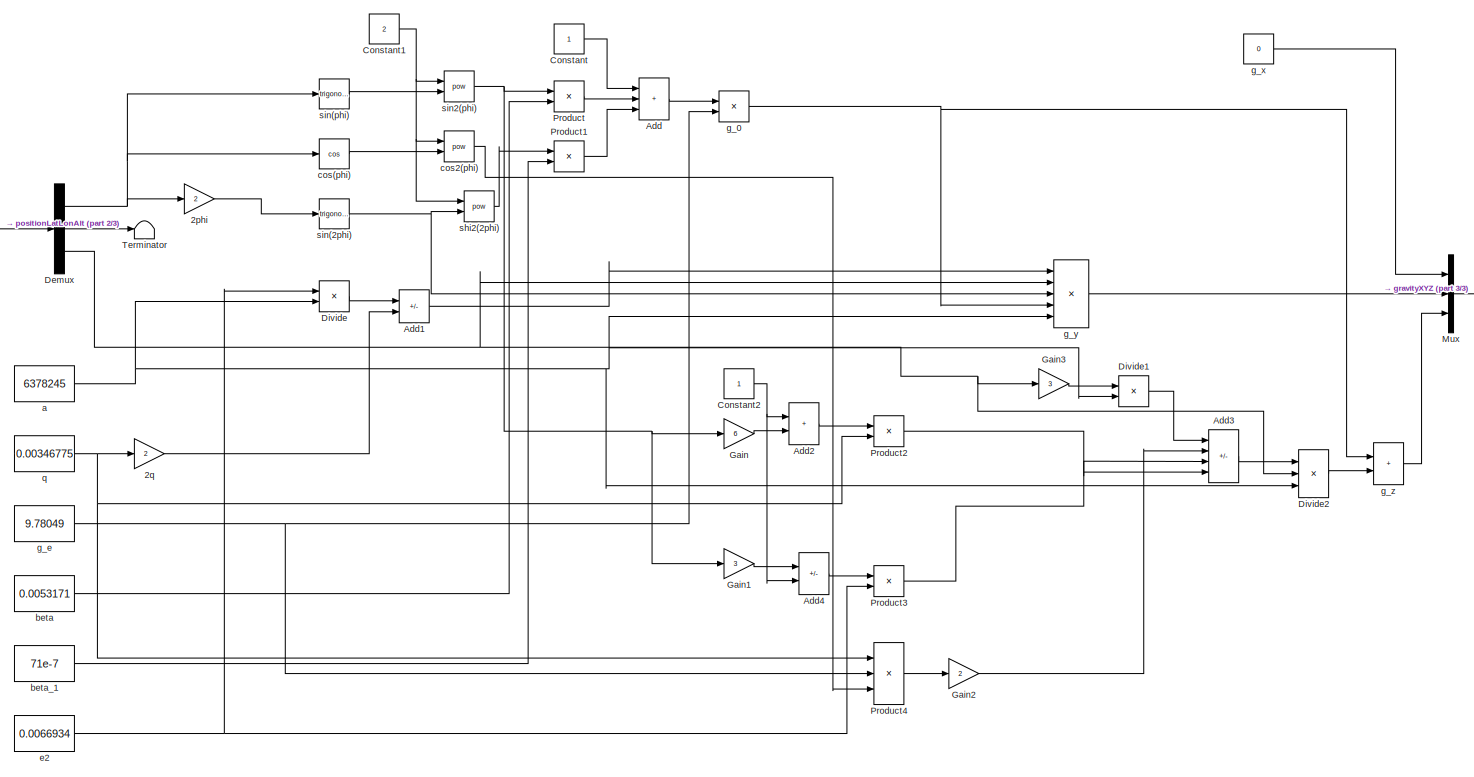
[diagram: SINS_Algorithm_real/GetC_begin_vectorMatching/calculate_GravityXYZ - part 1/3, most of the canvas]
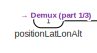
[diagram: SINS_Algorithm_real/GetC_begin_vectorMatching/calculate_GravityXYZ - part 2/3, top left region]
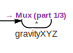
[diagram: SINS_Algorithm_real/GetC_begin_vectorMatching/calculate_GravityXYZ - part 3/3, middle right region]
BLOCK [SubSystem] SINS_Algorithm_real/GetC_begin_vectorMatching/calculate_GravityXYZ
  Ports = [1, 1]
  RequestExecContextInheritance = off
BLOCK [Gain] SINS_Algorithm_real/GetC_begin_vectorMatching/calculate_GravityXYZ/2phi
  Gain = 2
BLOCK [Gain] SINS_Algorithm_real/GetC_begin_vectorMatching/calculate_GravityXYZ/2q
  Gain = 2
BLOCK [Sum] SINS_Algorithm_real/GetC_begin_vectorMatching/calculate_GravityXYZ/Add
  IconShape = rectangular
  Inputs = +++
  Ports = [3, 1]
BLOCK [Sum] SINS_Algorithm_real/GetC_begin_vectorMatching/calculate_GravityXYZ/Add1
  IconShape = rectangular
  Inputs = +-
  Ports = [2, 1]
BLOCK [Sum] SINS_Algorithm_real/GetC_begin_vectorMatching/calculate_GravityXYZ/Add2
  IconShape = rectangular
  Ports = [2, 1]
BLOCK [Sum] SINS_Algorithm_real/GetC_begin_vectorMatching/calculate_GravityXYZ/Add3
  IconShape = rectangular
  Inputs = +-+-
  Ports = [4, 1]
BLOCK [Sum] SINS_Algorithm_real/GetC_begin_vectorMatching/calculate_GravityXYZ/Add4
  IconShape = rectangular
  Inputs = +-
  Ports = [2, 1]
BLOCK [Constant] SINS_Algorithm_real/GetC_begin_vectorMatching/calculate_GravityXYZ/Constant
BLOCK [Constant] SINS_Algorithm_real/GetC_begin_vectorMatching/calculate_GravityXYZ/Constant1
  Value = 2
BLOCK [Constant] SINS_Algorithm_real/GetC_begin_vectorMatching/calculate_GravityXYZ/Constant2
BLOCK [Demux] SINS_Algorithm_real/GetC_begin_vectorMatching/calculate_GravityXYZ/Demux
  Outputs = 3
  Ports = [1, 3]
BLOCK [Product] SINS_Algorithm_real/GetC_begin_vectorMatching/calculate_GravityXYZ/Divide
  Inputs = */
  Ports = [2, 1]
BLOCK [Product] SINS_Algorithm_real/GetC_begin_vectorMatching/calculate_GravityXYZ/Divide1
  Inputs = */
  Ports = [2, 1]
BLOCK [Product] SINS_Algorithm_real/GetC_begin_vectorMatching/calculate_GravityXYZ/Divide2
  Inputs = **/
  Ports = [3, 1]
BLOCK [Gain] SINS_Algorithm_real/GetC_begin_vectorMatching/calculate_GravityXYZ/Gain
  Gain = 6
BLOCK [Gain] SINS_Algorithm_real/GetC_begin_vectorMatching/calculate_GravityXYZ/Gain1
  Gain = 3
BLOCK [Gain] SINS_Algorithm_real/GetC_begin_vectorMatching/calculate_GravityXYZ/Gain2
  Gain = 2
BLOCK [Gain] SINS_Algorithm_real/GetC_begin_vectorMatching/calculate_GravityXYZ/Gain3
  Gain = 3
BLOCK [Mux] SINS_Algorithm_real/GetC_begin_vectorMatching/calculate_GravityXYZ/Mux
  DisplayOption = bar
  Inputs = 3
  Ports = [3, 1]
BLOCK [Product] SINS_Algorithm_real/GetC_begin_vectorMatching/calculate_GravityXYZ/Product
  Ports = [2, 1]
BLOCK [Product] SINS_Algorithm_real/GetC_begin_vectorMatching/calculate_GravityXYZ/Product1
  Ports = [2, 1]
BLOCK [Product] SINS_Algorithm_real/GetC_begin_vectorMatching/calculate_GravityXYZ/Product2
  Ports = [2, 1]
BLOCK [Product] SINS_Algorithm_real/GetC_begin_vectorMatching/calculate_GravityXYZ/Product3
  Ports = [2, 1]
BLOCK [Product] SINS_Algorithm_real/GetC_begin_vectorMatching/calculate_GravityXYZ/Product4
  Inputs = 3
  Ports = [3, 1]
BLOCK [Terminator] SINS_Algorithm_real/GetC_begin_vectorMatching/calculate_GravityXYZ/Terminator
BLOCK [Constant] SINS_Algorithm_real/GetC_begin_vectorMatching/calculate_GravityXYZ/a
  Value = 6378245
BLOCK [Constant] SINS_Algorithm_real/GetC_begin_vectorMatching/calculate_GravityXYZ/beta
  Value = 0.0053171
BLOCK [Constant] SINS_Algorithm_real/GetC_begin_vectorMatching/calculate_GravityXYZ/beta_1
  Value = 71e-7
BLOCK [Trigonometry] SINS_Algorithm_real/GetC_begin_vectorMatching/calculate_GravityXYZ/cos(phi)
  Operator = cos
  Ports = [1, 1]
BLOCK [Math] SINS_Algorithm_real/GetC_begin_vectorMatching/calculate_GravityXYZ/cos2(phi)
  Operator = pow
  Ports = [2, 1]
BLOCK [Constant] SINS_Algorithm_real/GetC_begin_vectorMatching/calculate_GravityXYZ/e2
  Value = 0.0066934
BLOCK [Product] SINS_Algorithm_real/GetC_begin_vectorMatching/calculate_GravityXYZ/g_0
  Ports = [2, 1]
BLOCK [Constant] SINS_Algorithm_real/GetC_begin_vectorMatching/calculate_GravityXYZ/g_e
  Value = 9.78049
BLOCK [Constant] SINS_Algorithm_real/GetC_begin_vectorMatching/calculate_GravityXYZ/g_x
  Value = 0
BLOCK [Product] SINS_Algorithm_real/GetC_begin_vectorMatching/calculate_GravityXYZ/g_y
  Inputs = ****/
  Ports = [5, 1]
BLOCK [Sum] SINS_Algorithm_real/GetC_begin_vectorMatching/calculate_GravityXYZ/g_z
  IconShape = rectangular
  Ports = [2, 1]
BLOCK [Outport] SINS_Algorithm_real/GetC_begin_vectorMatching/calculate_GravityXYZ/gravityXYZ
BLOCK [Inport] SINS_Algorithm_real/GetC_begin_vectorMatching/calculate_GravityXYZ/positionLatLonAlt
BLOCK [Constant] SINS_Algorithm_real/GetC_begin_vectorMatching/calculate_GravityXYZ/q
  Value = 0.00346775
BLOCK [Math] SINS_Algorithm_real/GetC_begin_vectorMatching/calculate_GravityXYZ/shi2(2phi)
  Operator = pow
  Ports = [2, 1]
BLOCK [Trigonometry] SINS_Algorithm_real/GetC_begin_vectorMatching/calculate_GravityXYZ/sin(2phi)
  Ports = [1, 1]
BLOCK [Trigonometry] SINS_Algorithm_real/GetC_begin_vectorMatching/calculate_GravityXYZ/sin(phi)
  Ports = [1, 1]
BLOCK [Math] SINS_Algorithm_real/GetC_begin_vectorMatching/calculate_GravityXYZ/sin2(phi)
  Operator = pow
  Ports = [2, 1]
BLOCK [Inport] SINS_Algorithm_real/GetC_begin_vectorMatching/positinLatLonAlt_begin
BLOCK [SubSystem] SINS_Algorithm_real/NavigationAlgorithm
  Ports = [5, 5]
  RequestExecContextInheritance = off
BLOCK [Sum] SINS_Algorithm_real/NavigationAlgorithm/Add
  IconShape = rectangular
  Ports = [2, 1]
BLOCK [Sum] SINS_Algorithm_real/NavigationAlgorithm/Add1
  IconShape = rectangular
  Ports = [2, 1]
BLOCK [Trigonometry] SINS_Algorithm_real/NavigationAlgorithm/Cos
  Operator = cos
  Ports = [1, 1]
BLOCK [Demux] SINS_Algorithm_real/NavigationAlgorithm/Demux
  Outputs = 2
  Ports = [1, 2]
BLOCK [Demux] SINS_Algorithm_real/NavigationAlgorithm/Demux1
  Outputs = 2
  Ports = [1, 2]
BLOCK [Demux] SINS_Algorithm_real/NavigationAlgorithm/Demux2
  Outputs = 3
  Ports = [1, 3]
BLOCK [Demux] SINS_Algorithm_real/NavigationAlgorithm/Demux3
  Outputs = 2
  Ports = [1, 2]
BLOCK [Product] SINS_Algorithm_real/NavigationAlgorithm/Divide
  Inputs = */
  Ports = [2, 1]
BLOCK [Product] SINS_Algorithm_real/NavigationAlgorithm/Divide1
  Inputs = *//
  Ports = [3, 1]
BLOCK [Gain] SINS_Algorithm_real/NavigationAlgorithm/Gain
  Gain = 2
BLOCK [Integrator] SINS_Algorithm_real/NavigationAlgorithm/Latitude
  InitialConditionSource = external
  Ports = [2, 1]
BLOCK [Integrator] SINS_Algorithm_real/NavigationAlgorithm/Longitude
  InitialConditionSource = external
  Ports = [2, 1]
BLOCK [Mux] SINS_Algorithm_real/NavigationAlgorithm/Mux
  DisplayOption = bar
  Inputs = 3
  Ports = [3, 1]
BLOCK [Product] SINS_Algorithm_real/NavigationAlgorithm/Product
  Multiplication = Matrix(*)
  Ports = [2, 1]
BLOCK [Scope] SINS_Algorithm_real/NavigationAlgorithm/Scope1
  Floating = off
  NumInputPorts = 1
  Ports = [1]
  ScopeSpecificationString = Simulink.scopes.TimeScopeBlockCfg('CurrentConfiguration', extmgr.ConfigurationSet(extmgr.Configuration('Core','General UI',true),extmgr.Configuration('Core','Source UI',true),extmgr.Configuration('Sources','WiredSimulink',true,'DataLoggingVariableName','ScopeData8'),extmgr.Configuration('Visuals','Time Domain',true,'SerializedDisplays',{struct('MinYLimReal','-4.74193','MaxYLimReal','4.19101','YLab...<+1445ch>
BLOCK [Scope] SINS_Algorithm_real/NavigationAlgorithm/Scope2
  Floating = off
  NumInputPorts = 1
  Ports = [1]
  ScopeSpecificationString = Simulink.scopes.TimeScopeBlockCfg('CurrentConfiguration', extmgr.ConfigurationSet(extmgr.Configuration('Core','General UI',true),extmgr.Configuration('Core','Source UI',true),extmgr.Configuration('Sources','WiredSimulink',true,'DataLoggingVariableName','ScopeData10'),extmgr.Configuration('Visuals','Time Domain',true,'SerializedDisplays',{struct('MinYLimReal','-693.51274','MaxYLimReal','206.1586','...<+1458ch>
BLOCK [Terminator] SINS_Algorithm_real/NavigationAlgorithm/Terminator
BLOCK [Inport] SINS_Algorithm_real/NavigationAlgorithm/U_earth
  Port = 4
BLOCK [Concatenate] SINS_Algorithm_real/NavigationAlgorithm/Vector Concatenate
  Mode = Multidimensional array
  Ports = [2, 1]
BLOCK [Concatenate] SINS_Algorithm_real/NavigationAlgorithm/Vector Concatenate1
  Mode = Multidimensional array
  Ports = [2, 1]
BLOCK [Concatenate] SINS_Algorithm_real/NavigationAlgorithm/Vector Concatenate2
  Mode = Multidimensional array
  Ports = [2, 1]
BLOCK [Concatenate] SINS_Algorithm_real/NavigationAlgorithm/Vector Concatenate3
  Mode = Multidimensional array
  Ports = [2, 1]
BLOCK [Inport] SINS_Algorithm_real/NavigationAlgorithm/accelerationXYZ
BLOCK [Outport] SINS_Algorithm_real/NavigationAlgorithm/angVelNorm_matrix_3x3
  Port = 3
BLOCK [Outport] SINS_Algorithm_real/NavigationAlgorithm/angVel_ENH
  Port = 5
BLOCK [SubSystem] SINS_Algorithm_real/NavigationAlgorithm/calculate_AngVelNorm_matrix
  Ports = [3, 3]
  RequestExecContextInheritance = off
BLOCK [Product] SINS_Algorithm_real/NavigationAlgorithm/calculate_AngVelNorm_matrix/-OmegaX
  Inputs = */
  Ports = [2, 1]
BLOCK [Constant] SINS_Algorithm_real/NavigationAlgorithm/calculate_AngVelNorm_matrix/Constant1
  Value = 0
BLOCK [Demux] SINS_Algorithm_real/NavigationAlgorithm/calculate_AngVelNorm_matrix/Demux
  Outputs = 2
  Ports = [1, 2]
BLOCK [Demux] SINS_Algorithm_real/NavigationAlgorithm/calculate_AngVelNorm_matrix/Demux1
  Outputs = 2
  Ports = [1, 2]
BLOCK [Inport] SINS_Algorithm_real/NavigationAlgorithm/calculate_AngVelNorm_matrix/Latitude
  Port = 2
BLOCK [Mux] SINS_Algorithm_real/NavigationAlgorithm/calculate_AngVelNorm_matrix/Mux
  DisplayOption = bar
  Inputs = 2
  Ports = [2, 1]
BLOCK [Mux] SINS_Algorithm_real/NavigationAlgorithm/calculate_AngVelNorm_matrix/Mux1
  DisplayOption = bar
  Inputs = 2
  Ports = [2, 1]
BLOCK [Mux] SINS_Algorithm_real/NavigationAlgorithm/calculate_AngVelNorm_matrix/Mux2
  DisplayOption = bar
  Inputs = 2
  Ports = [2, 1]
BLOCK [Mux] SINS_Algorithm_real/NavigationAlgorithm/calculate_AngVelNorm_matrix/Mux3
  DisplayOption = bar
  Inputs = 3
  Ports = [3, 1]
BLOCK [Mux] SINS_Algorithm_real/NavigationAlgorithm/calculate_AngVelNorm_matrix/Mux4
  DisplayOption = bar
  Inputs = 3
  Ports = [3, 1]
BLOCK [UnaryMinus] SINS_Algorithm_real/NavigationAlgorithm/calculate_AngVelNorm_matrix/OmegaX
BLOCK [Product] SINS_Algorithm_real/NavigationAlgorithm/calculate_AngVelNorm_matrix/OmegaY
  Inputs = */
  Ports = [2, 1]
BLOCK [Product] SINS_Algorithm_real/NavigationAlgorithm/calculate_AngVelNorm_matrix/OmegaZ
  Inputs = **
  Ports = [2, 1]
BLOCK [Scope] SINS_Algorithm_real/NavigationAlgorithm/calculate_AngVelNorm_matrix/Scope1
  Floating = off
  NumInputPorts = 1
  Ports = [1]
  ScopeSpecificationString = Simulink.scopes.TimeScopeBlockCfg('CurrentConfiguration', extmgr.ConfigurationSet(extmgr.Configuration('Core','General UI',true),extmgr.Configuration('Core','Source UI',true),extmgr.Configuration('Sources','WiredSimulink',true,'DataLoggingVariableName','ScopeData12'),extmgr.Configuration('Visuals','Time Domain',true,'SerializedDisplays',{struct('MinYLimReal','0.9672605','MaxYLimReal','0.9672637','...<+1439ch>
BLOCK [Scope] SINS_Algorithm_real/NavigationAlgorithm/calculate_AngVelNorm_matrix/Scope2
  Floating = off
  NumInputPorts = 1
  Ports = [1]
  ScopeSpecificationString = Simulink.scopes.TimeScopeBlockCfg('CurrentConfiguration', extmgr.ConfigurationSet(extmgr.Configuration('Core','General UI',true),extmgr.Configuration('Core','Source UI',true),extmgr.Configuration('Sources','WiredSimulink',true,'DataLoggingVariableName','ScopeData11'),extmgr.Configuration('Visuals','Time Domain',true,'SerializedDisplays',{struct('MinYLimReal','-0.28529','MaxYLimReal','2.56763','YLa...<+1444ch>
BLOCK [Scope] SINS_Algorithm_real/NavigationAlgorithm/calculate_AngVelNorm_matrix/Scope3
  Floating = off
  NumInputPorts = 1
  Ports = [1]
  ScopeSpecificationString = Simulink.scopes.TimeScopeBlockCfg('CurrentConfiguration', extmgr.ConfigurationSet(extmgr.Configuration('Core','General UI',true),extmgr.Configuration('Core','Source UI',true),extmgr.Configuration('Sources','WiredSimulink',true,'DataLoggingVariableName','ScopeData5'),extmgr.Configuration('Visuals','Time Domain',true,'SerializedDisplays',{struct('MinYLimReal','-0.28529','MaxYLimReal','2.56763','YLab...<+1443ch>
BLOCK [Trigonometry] SINS_Algorithm_real/NavigationAlgorithm/calculate_AngVelNorm_matrix/Tan
  Operator = tan
  Ports = [1, 1]
BLOCK [Reference] SINS_Algorithm_real/NavigationAlgorithm/calculate_AngVelNorm_matrix/Transpose  REF=matrix_library/Transpose
  Ports = [1, 1]
  SourceBlock = matrix_library/Transpose
  SourceProductBaseCode = SL
  SourceType = Transpose
BLOCK [UnaryMinus] SINS_Algorithm_real/NavigationAlgorithm/calculate_AngVelNorm_matrix/Unary Minus1
BLOCK [UnaryMinus] SINS_Algorithm_real/NavigationAlgorithm/calculate_AngVelNorm_matrix/Unary Minus2
BLOCK [Concatenate] SINS_Algorithm_real/NavigationAlgorithm/calculate_AngVelNorm_matrix/Vector Concatenate
  ConcatenateDimension = 2
  Mode = Multidimensional array
  NumInputs = 3
  Ports = [3, 1]
BLOCK [Outport] SINS_Algorithm_real/NavigationAlgorithm/calculate_AngVelNorm_matrix/angVelNorm_matrix_1x3
  Port = 2
BLOCK [Outport] SINS_Algorithm_real/NavigationAlgorithm/calculate_AngVelNorm_matrix/angVelNorm_matrix_2x3
BLOCK [Outport] SINS_Algorithm_real/NavigationAlgorithm/calculate_AngVelNorm_matrix/angVel_ENH
  Port = 3
BLOCK [Inport] SINS_Algorithm_real/NavigationAlgorithm/calculate_AngVelNorm_matrix/ellipsoidRadius12
  Port = 3
BLOCK [Inport] SINS_Algorithm_real/NavigationAlgorithm/calculate_AngVelNorm_matrix/velocityEN
BLOCK [SubSystem] SINS_Algorithm_real/NavigationAlgorithm/calculate_AngVelNorm_matrix_3CH
  Commented = on
  Ports = [3, 1]
  RequestExecContextInheritance = off
BLOCK [Constant] SINS_Algorithm_real/NavigationAlgorithm/calculate_AngVelNorm_matrix_3CH/Constant
  Value = 0
BLOCK [Reference] SINS_Algorithm_real/NavigationAlgorithm/calculate_AngVelNorm_matrix_3CH/Create 3x3 Matrix  REF=sharedutil/Create 3x3 Matrix
  Ports = [9, 1]
  SourceBlock = sharedutil/Create 3x3 Matrix
  SourceProductBaseCode = AE,PW,DR,MT,UV,VE
  SourceType = Create 3x3 Matrix
BLOCK [Demux] SINS_Algorithm_real/NavigationAlgorithm/calculate_AngVelNorm_matrix_3CH/Demux
  Outputs = 3
  Ports = [1, 3]
BLOCK [Demux] SINS_Algorithm_real/NavigationAlgorithm/calculate_AngVelNorm_matrix_3CH/Demux1
  Outputs = 2
  Ports = [1, 2]
BLOCK [Product] SINS_Algorithm_real/NavigationAlgorithm/calculate_AngVelNorm_matrix_3CH/Divide
  Inputs = */
  Ports = [2, 1]
BLOCK [Inport] SINS_Algorithm_real/NavigationAlgorithm/calculate_AngVelNorm_matrix_3CH/Latitude
  Port = 2
BLOCK [UnaryMinus] SINS_Algorithm_real/NavigationAlgorithm/calculate_AngVelNorm_matrix_3CH/OmegaX
BLOCK [Product] SINS_Algorithm_real/NavigationAlgorithm/calculate_AngVelNorm_matrix_3CH/OmegaY
  Inputs = */
  Ports = [2, 1]
BLOCK [Product] SINS_Algorithm_real/NavigationAlgorithm/calculate_AngVelNorm_matrix_3CH/OmegaZ
  Inputs = **/
  Ports = [3, 1]
BLOCK [Trigonometry] SINS_Algorithm_real/NavigationAlgorithm/calculate_AngVelNorm_matrix_3CH/Tan
  Operator = tan
  Ports = [1, 1]
BLOCK [Terminator] SINS_Algorithm_real/NavigationAlgorithm/calculate_AngVelNorm_matrix_3CH/Terminator
BLOCK [UnaryMinus] SINS_Algorithm_real/NavigationAlgorithm/calculate_AngVelNorm_matrix_3CH/Unary Minus1
BLOCK [UnaryMinus] SINS_Algorithm_real/NavigationAlgorithm/calculate_AngVelNorm_matrix_3CH/Unary Minus2
BLOCK [Outport] SINS_Algorithm_real/NavigationAlgorithm/calculate_AngVelNorm_matrix_3CH/angVelNorm_matrix
BLOCK [Inport] SINS_Algorithm_real/NavigationAlgorithm/calculate_AngVelNorm_matrix_3CH/ellipsoidRadius12
  Port = 3
BLOCK [Inport] SINS_Algorithm_real/NavigationAlgorithm/calculate_AngVelNorm_matrix_3CH/velocityENH
BLOCK [SubSystem] SINS_Algorithm_real/NavigationAlgorithm/calculate_EllipsoidRadius12
  Ports = [2, 1]
  RequestExecContextInheritance = off
BLOCK [Sum] SINS_Algorithm_real/NavigationAlgorithm/calculate_EllipsoidRadius12/Add
  IconShape = rectangular
  Inputs = +-
  Ports = [2, 1]
BLOCK [Sum] SINS_Algorithm_real/NavigationAlgorithm/calculate_EllipsoidRadius12/Add1
  IconShape = rectangular
  Inputs = +-
  Ports = [2, 1]
BLOCK [Sum] SINS_Algorithm_real/NavigationAlgorithm/calculate_EllipsoidRadius12/Add2
  IconShape = rectangular
  Ports = [2, 1]
BLOCK [Sum] SINS_Algorithm_real/NavigationAlgorithm/calculate_EllipsoidRadius12/Add3
  IconShape = rectangular
  Ports = [2, 1]
BLOCK [Inport] SINS_Algorithm_real/NavigationAlgorithm/calculate_EllipsoidRadius12/Altitude
  Port = 2
BLOCK [Constant] SINS_Algorithm_real/NavigationAlgorithm/calculate_EllipsoidRadius12/Constant
  Value = 1.5
BLOCK [Constant] SINS_Algorithm_real/NavigationAlgorithm/calculate_EllipsoidRadius12/Constant1
BLOCK [Constant] SINS_Algorithm_real/NavigationAlgorithm/calculate_EllipsoidRadius12/Constant2
  Value = 2
BLOCK [Constant] SINS_Algorithm_real/NavigationAlgorithm/calculate_EllipsoidRadius12/Constant3
BLOCK [Constant] SINS_Algorithm_real/NavigationAlgorithm/calculate_EllipsoidRadius12/Constant4
  Value = -0.5
BLOCK [Inport] SINS_Algorithm_real/NavigationAlgorithm/calculate_EllipsoidRadius12/Latitude
BLOCK [Mux] SINS_Algorithm_real/NavigationAlgorithm/calculate_EllipsoidRadius12/Mux
  DisplayOption = bar
  Inputs = 2
  Ports = [2, 1]
BLOCK [Math] SINS_Algorithm_real/NavigationAlgorithm/calculate_EllipsoidRadius12/Power
  Operator = pow
  Ports = [2, 1]
BLOCK [Math] SINS_Algorithm_real/NavigationAlgorithm/calculate_EllipsoidRadius12/Power1
  Operator = pow
  Ports = [2, 1]
BLOCK [Math] SINS_Algorithm_real/NavigationAlgorithm/calculate_EllipsoidRadius12/Power2
  Operator = pow
  Ports = [2, 1]
BLOCK [Product] SINS_Algorithm_real/NavigationAlgorithm/calculate_EllipsoidRadius12/Product
  Inputs = 3
  Ports = [3, 1]
BLOCK [Product] SINS_Algorithm_real/NavigationAlgorithm/calculate_EllipsoidRadius12/Product1
  Ports = [2, 1]
BLOCK [Product] SINS_Algorithm_real/NavigationAlgorithm/calculate_EllipsoidRadius12/Product2
  Ports = [2, 1]
BLOCK [Trigonometry] SINS_Algorithm_real/NavigationAlgorithm/calculate_EllipsoidRadius12/Sin
  Ports = [1, 1]
BLOCK [Constant] SINS_Algorithm_real/NavigationAlgorithm/calculate_EllipsoidRadius12/a
  Value = 6378245
BLOCK [Constant] SINS_Algorithm_real/NavigationAlgorithm/calculate_EllipsoidRadius12/e2
  Value = 0.0066934
BLOCK [Outport] SINS_Algorithm_real/NavigationAlgorithm/calculate_EllipsoidRadius12/ellipsoidRadius12
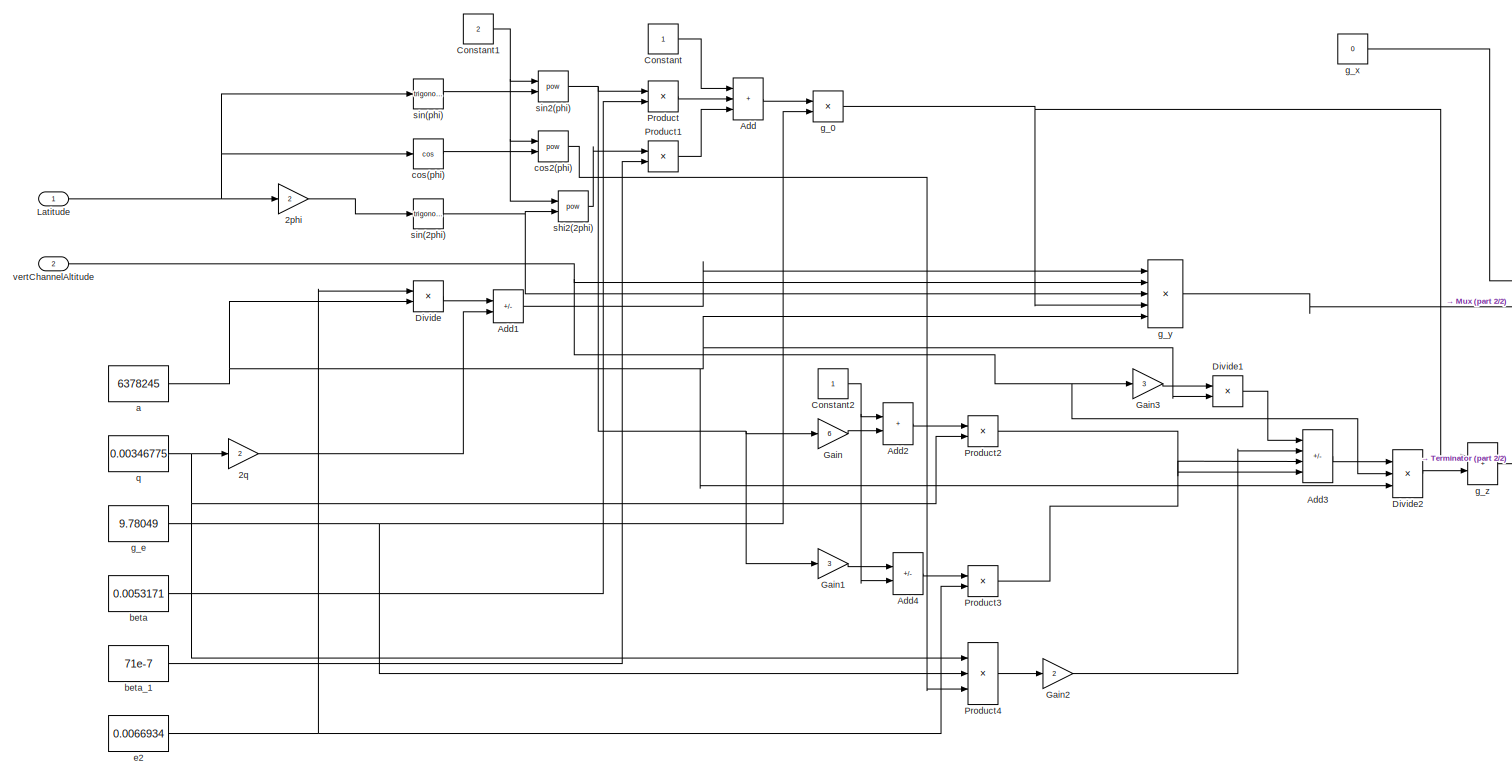
[diagram: SINS_Algorithm_real/NavigationAlgorithm/calculate_GravityXY - part 1/2, most of the canvas]
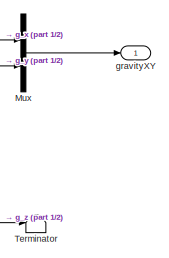
[diagram: SINS_Algorithm_real/NavigationAlgorithm/calculate_GravityXY - part 2/2, middle right region]
BLOCK [SubSystem] SINS_Algorithm_real/NavigationAlgorithm/calculate_GravityXY
  Ports = [2, 1]
  RequestExecContextInheritance = off
BLOCK [Gain] SINS_Algorithm_real/NavigationAlgorithm/calculate_GravityXY/2phi
  Gain = 2
BLOCK [Gain] SINS_Algorithm_real/NavigationAlgorithm/calculate_GravityXY/2q
  Gain = 2
BLOCK [Sum] SINS_Algorithm_real/NavigationAlgorithm/calculate_GravityXY/Add
  IconShape = rectangular
  Inputs = +++
  Ports = [3, 1]
BLOCK [Sum] SINS_Algorithm_real/NavigationAlgorithm/calculate_GravityXY/Add1
  IconShape = rectangular
  Inputs = +-
  Ports = [2, 1]
BLOCK [Sum] SINS_Algorithm_real/NavigationAlgorithm/calculate_GravityXY/Add2
  IconShape = rectangular
  Ports = [2, 1]
BLOCK [Sum] SINS_Algorithm_real/NavigationAlgorithm/calculate_GravityXY/Add3
  IconShape = rectangular
  Inputs = +-+-
  Ports = [4, 1]
BLOCK [Sum] SINS_Algorithm_real/NavigationAlgorithm/calculate_GravityXY/Add4
  IconShape = rectangular
  Inputs = +-
  Ports = [2, 1]
BLOCK [Constant] SINS_Algorithm_real/NavigationAlgorithm/calculate_GravityXY/Constant
BLOCK [Constant] SINS_Algorithm_real/NavigationAlgorithm/calculate_GravityXY/Constant1
  Value = 2
BLOCK [Constant] SINS_Algorithm_real/NavigationAlgorithm/calculate_GravityXY/Constant2
BLOCK [Product] SINS_Algorithm_real/NavigationAlgorithm/calculate_GravityXY/Divide
  Inputs = */
  Ports = [2, 1]
BLOCK [Product] SINS_Algorithm_real/NavigationAlgorithm/calculate_GravityXY/Divide1
  Inputs = */
  Ports = [2, 1]
BLOCK [Product] SINS_Algorithm_real/NavigationAlgorithm/calculate_GravityXY/Divide2
  Inputs = **/
  Ports = [3, 1]
BLOCK [Gain] SINS_Algorithm_real/NavigationAlgorithm/calculate_GravityXY/Gain
  Gain = 6
BLOCK [Gain] SINS_Algorithm_real/NavigationAlgorithm/calculate_GravityXY/Gain1
  Gain = 3
BLOCK [Gain] SINS_Algorithm_real/NavigationAlgorithm/calculate_GravityXY/Gain2
  Gain = 2
BLOCK [Gain] SINS_Algorithm_real/NavigationAlgorithm/calculate_GravityXY/Gain3
  Gain = 3
BLOCK [Inport] SINS_Algorithm_real/NavigationAlgorithm/calculate_GravityXY/Latitude
BLOCK [Mux] SINS_Algorithm_real/NavigationAlgorithm/calculate_GravityXY/Mux
  DisplayOption = bar
  Inputs = 2
  Ports = [2, 1]
BLOCK [Product] SINS_Algorithm_real/NavigationAlgorithm/calculate_GravityXY/Product
  Ports = [2, 1]
BLOCK [Product] SINS_Algorithm_real/NavigationAlgorithm/calculate_GravityXY/Product1
  Ports = [2, 1]
BLOCK [Product] SINS_Algorithm_real/NavigationAlgorithm/calculate_GravityXY/Product2
  Ports = [2, 1]
BLOCK [Product] SINS_Algorithm_real/NavigationAlgorithm/calculate_GravityXY/Product3
  Ports = [2, 1]
BLOCK [Product] SINS_Algorithm_real/NavigationAlgorithm/calculate_GravityXY/Product4
  Inputs = 3
  Ports = [3, 1]
BLOCK [Terminator] SINS_Algorithm_real/NavigationAlgorithm/calculate_GravityXY/Terminator
BLOCK [Constant] SINS_Algorithm_real/NavigationAlgorithm/calculate_GravityXY/a
  Value = 6378245
BLOCK [Constant] SINS_Algorithm_real/NavigationAlgorithm/calculate_GravityXY/beta
  Value = 0.0053171
BLOCK [Constant] SINS_Algorithm_real/NavigationAlgorithm/calculate_GravityXY/beta_1
  Value = 71e-7
BLOCK [Trigonometry] SINS_Algorithm_real/NavigationAlgorithm/calculate_GravityXY/cos(phi)
  Operator = cos
  Ports = [1, 1]
BLOCK [Math] SINS_Algorithm_real/NavigationAlgorithm/calculate_GravityXY/cos2(phi)
  Operator = pow
  Ports = [2, 1]
BLOCK [Constant] SINS_Algorithm_real/NavigationAlgorithm/calculate_GravityXY/e2
  Value = 0.0066934
BLOCK [Product] SINS_Algorithm_real/NavigationAlgorithm/calculate_GravityXY/g_0
  Ports = [2, 1]
BLOCK [Constant] SINS_Algorithm_real/NavigationAlgorithm/calculate_GravityXY/g_e
  Value = 9.78049
BLOCK [Constant] SINS_Algorithm_real/NavigationAlgorithm/calculate_GravityXY/g_x
  Value = 0
BLOCK [Product] SINS_Algorithm_real/NavigationAlgorithm/calculate_GravityXY/g_y
  Inputs = ****/
  Ports = [5, 1]
BLOCK [Sum] SINS_Algorithm_real/NavigationAlgorithm/calculate_GravityXY/g_z
  IconShape = rectangular
  Ports = [2, 1]
BLOCK [Outport] SINS_Algorithm_real/NavigationAlgorithm/calculate_GravityXY/gravityXY
BLOCK [Constant] SINS_Algorithm_real/NavigationAlgorithm/calculate_GravityXY/q
  Value = 0.00346775
BLOCK [Math] SINS_Algorithm_real/NavigationAlgorithm/calculate_GravityXY/shi2(2phi)
  Operator = pow
  Ports = [2, 1]
BLOCK [Trigonometry] SINS_Algorithm_real/NavigationAlgorithm/calculate_GravityXY/sin(2phi)
  Ports = [1, 1]
BLOCK [Trigonometry] SINS_Algorithm_real/NavigationAlgorithm/calculate_GravityXY/sin(phi)
  Ports = [1, 1]
BLOCK [Math] SINS_Algorithm_real/NavigationAlgorithm/calculate_GravityXY/sin2(phi)
  Operator = pow
  Ports = [2, 1]
BLOCK [Inport] SINS_Algorithm_real/NavigationAlgorithm/calculate_GravityXY/vertChannelAltitude
  Port = 2
BLOCK [SubSystem] SINS_Algorithm_real/NavigationAlgorithm/calculate_U_matrix
  Ports = [2, 2]
  RequestExecContextInheritance = off
BLOCK [Constant] SINS_Algorithm_real/NavigationAlgorithm/calculate_U_matrix/Constant
  Value = 0
BLOCK [Trigonometry] SINS_Algorithm_real/NavigationAlgorithm/calculate_U_matrix/Cos
  Operator = cos
  Ports = [1, 1]
BLOCK [Inport] SINS_Algorithm_real/NavigationAlgorithm/calculate_U_matrix/Latitude
  Port = 2
BLOCK [Mux] SINS_Algorithm_real/NavigationAlgorithm/calculate_U_matrix/Mux
  DisplayOption = bar
  Inputs = 2
  Ports = [2, 1]
BLOCK [Mux] SINS_Algorithm_real/NavigationAlgorithm/calculate_U_matrix/Mux1
  DisplayOption = bar
  Inputs = 2
  Ports = [2, 1]
BLOCK [Mux] SINS_Algorithm_real/NavigationAlgorithm/calculate_U_matrix/Mux2
  DisplayOption = bar
  Inputs = 2
  Ports = [2, 1]
BLOCK [Mux] SINS_Algorithm_real/NavigationAlgorithm/calculate_U_matrix/Mux3
  DisplayOption = bar
  Inputs = 3
  Ports = [3, 1]
BLOCK [Trigonometry] SINS_Algorithm_real/NavigationAlgorithm/calculate_U_matrix/Sin
  Ports = [1, 1]
BLOCK [Reference] SINS_Algorithm_real/NavigationAlgorithm/calculate_U_matrix/Transpose  REF=matrix_library/Transpose
  Ports = [1, 1]
  SourceBlock = matrix_library/Transpose
  SourceProductBaseCode = SL
  SourceType = Transpose
BLOCK [Inport] SINS_Algorithm_real/NavigationAlgorithm/calculate_U_matrix/U_earth
BLOCK [Outport] SINS_Algorithm_real/NavigationAlgorithm/calculate_U_matrix/U_matrix_1x3
  Port = 2
BLOCK [Outport] SINS_Algorithm_real/NavigationAlgorithm/calculate_U_matrix/U_matrix_2x3
BLOCK [Product] SINS_Algorithm_real/NavigationAlgorithm/calculate_U_matrix/U_y
  Ports = [2, 1]
BLOCK [Product] SINS_Algorithm_real/NavigationAlgorithm/calculate_U_matrix/U_z
  Ports = [2, 1]
BLOCK [UnaryMinus] SINS_Algorithm_real/NavigationAlgorithm/calculate_U_matrix/Unary Minus
BLOCK [UnaryMinus] SINS_Algorithm_real/NavigationAlgorithm/calculate_U_matrix/Unary Minus1
BLOCK [Concatenate] SINS_Algorithm_real/NavigationAlgorithm/calculate_U_matrix/Vector Concatenate
  ConcatenateDimension = 2
  Mode = Multidimensional array
  NumInputs = 3
  Ports = [3, 1]
BLOCK [SubSystem] SINS_Algorithm_real/NavigationAlgorithm/calculate_U_matrix_3CH
  Commented = on
  Ports = [2, 1]
  RequestExecContextInheritance = off
BLOCK [Constant] SINS_Algorithm_real/NavigationAlgorithm/calculate_U_matrix_3CH/Constant
  Value = 0
BLOCK [Trigonometry] SINS_Algorithm_real/NavigationAlgorithm/calculate_U_matrix_3CH/Cos
  Operator = cos
  Ports = [1, 1]
BLOCK [Reference] SINS_Algorithm_real/NavigationAlgorithm/calculate_U_matrix_3CH/Create 3x3 Matrix  REF=sharedutil/Create 3x3 Matrix
  Ports = [9, 1]
  SourceBlock = sharedutil/Create 3x3 Matrix
  SourceProductBaseCode = AE,PW,DR,MT,UV,VE
  SourceType = Create 3x3 Matrix
BLOCK [Inport] SINS_Algorithm_real/NavigationAlgorithm/calculate_U_matrix_3CH/Latitude
  Port = 2
BLOCK [Product] SINS_Algorithm_real/NavigationAlgorithm/calculate_U_matrix_3CH/Product
  Ports = [2, 1]
BLOCK [Product] SINS_Algorithm_real/NavigationAlgorithm/calculate_U_matrix_3CH/Product1
  Ports = [2, 1]
BLOCK [Trigonometry] SINS_Algorithm_real/NavigationAlgorithm/calculate_U_matrix_3CH/Sin
  Ports = [1, 1]
BLOCK [Inport] SINS_Algorithm_real/NavigationAlgorithm/calculate_U_matrix_3CH/U_earth
BLOCK [Outport] SINS_Algorithm_real/NavigationAlgorithm/calculate_U_matrix_3CH/U_matrix
BLOCK [UnaryMinus] SINS_Algorithm_real/NavigationAlgorithm/calculate_U_matrix_3CH/Unary Minus
BLOCK [UnaryMinus] SINS_Algorithm_real/NavigationAlgorithm/calculate_U_matrix_3CH/Unary Minus1
BLOCK [Outport] SINS_Algorithm_real/NavigationAlgorithm/ellipsoidRadius12
  Port = 4
BLOCK [SubSystem] SINS_Algorithm_real/NavigationAlgorithm/eraseAccelZ
  Ports = [1, 1]
  RequestExecContextInheritance = off
BLOCK [Demux] SINS_Algorithm_real/NavigationAlgorithm/eraseAccelZ/Demux
  Outputs = 3
  Ports = [1, 3]
BLOCK [Mux] SINS_Algorithm_real/NavigationAlgorithm/eraseAccelZ/Mux
  DisplayOption = bar
  Inputs = 2
  Ports = [2, 1]
BLOCK [Terminator] SINS_Algorithm_real/NavigationAlgorithm/eraseAccelZ/Terminator
BLOCK [Outport] SINS_Algorithm_real/NavigationAlgorithm/eraseAccelZ/accelerationXY
BLOCK [Inport] SINS_Algorithm_real/NavigationAlgorithm/eraseAccelZ/accelerationXYZ
BLOCK [Outport] SINS_Algorithm_real/NavigationAlgorithm/positionLatLonAlt
BLOCK [Inport] SINS_Algorithm_real/NavigationAlgorithm/positionLatLonAlt_begin
  Port = 2
BLOCK [Outport] SINS_Algorithm_real/NavigationAlgorithm/velocityENH
  Port = 2
BLOCK [Inport] SINS_Algorithm_real/NavigationAlgorithm/velocityEN_begin
  Port = 3
BLOCK [Sum] SINS_Algorithm_real/NavigationAlgorithm/velocityEN_dot
  IconShape = rectangular
  Inputs = +++
  Ports = [3, 1]
BLOCK [Integrator] SINS_Algorithm_real/NavigationAlgorithm/velocity_EN
  InitialCondition = [0; 0; 0]
  InitialConditionSource = external
  Ports = [2, 1]
BLOCK [Inport] SINS_Algorithm_real/NavigationAlgorithm/vertChannel_AltSpeed
  Port = 5
BLOCK [SubSystem] SINS_Algorithm_real/OrientationAlgorithm
  Ports = [3, 2]
  RequestExecContextInheritance = off
BLOCK [SubSystem] SINS_Algorithm_real/OrientationAlgorithm/C to Orientation Angles
  Ports = [1, 1]
  RequestExecContextInheritance = off
BLOCK [Inport] SINS_Algorithm_real/OrientationAlgorithm/C to Orientation Angles/C
BLOCK [Selector] SINS_Algorithm_real/OrientationAlgorithm/C to Orientation Angles/C(1, 1)
  IndexOptions = Index vector (dialog),Index vector (dialog)
  Indices = 1,1
  InputPortWidth = 3
  NumberOfDimensions = 2
  OutputSizes = 1,1
  Ports = [1, 1]
BLOCK [Selector] SINS_Algorithm_real/OrientationAlgorithm/C to Orientation Angles/C(2, 1)
  IndexOptions = Index vector (dialog),Index vector (dialog)
  Indices = 2,1
  InputPortWidth = 3
  NumberOfDimensions = 2
  OutputSizes = 1,1
  Ports = [1, 1]
BLOCK [Selector] SINS_Algorithm_real/OrientationAlgorithm/C to Orientation Angles/C(2, 2)
  IndexOptions = Index vector (dialog),Index vector (dialog)
  Indices = 2,2
  InputPortWidth = 3
  NumberOfDimensions = 2
  OutputSizes = 1,1
  Ports = [1, 1]
BLOCK [Selector] SINS_Algorithm_real/OrientationAlgorithm/C to Orientation Angles/C(2, 3)
  IndexOptions = Index vector (dialog),Index vector (dialog)
  Indices = 2,3
  InputPortWidth = 3
  NumberOfDimensions = 2
  OutputSizes = 1,1
  Ports = [1, 1]
BLOCK [Selector] SINS_Algorithm_real/OrientationAlgorithm/C to Orientation Angles/C(3, 1)
  IndexOptions = Index vector (dialog),Index vector (dialog)
  Indices = 3,1
  InputPortWidth = 3
  NumberOfDimensions = 2
  OutputSizes = 1,1
  Ports = [1, 1]
BLOCK [Product] SINS_Algorithm_real/OrientationAlgorithm/C to Orientation Angles/Divide2
  Inputs = */
  Ports = [2, 1]
BLOCK [Product] SINS_Algorithm_real/OrientationAlgorithm/C to Orientation Angles/Divide3
  Inputs = */
  Ports = [2, 1]
BLOCK [Mux] SINS_Algorithm_real/OrientationAlgorithm/C to Orientation Angles/Mux
  DisplayOption = bar
  Inputs = 3
  Ports = [3, 1]
BLOCK [Outport] SINS_Algorithm_real/OrientationAlgorithm/C to Orientation Angles/RollPitchYaw
BLOCK [Trigonometry] SINS_Algorithm_real/OrientationAlgorithm/C to Orientation Angles/Sin3
  Operator = atan
  Ports = [1, 1]
BLOCK [Trigonometry] SINS_Algorithm_real/OrientationAlgorithm/C to Orientation Angles/Sin4
  Operator = atan
  Ports = [1, 1]
BLOCK [Trigonometry] SINS_Algorithm_real/OrientationAlgorithm/C to Orientation Angles/Sin5
  Operator = asin
  Ports = [1, 1]
BLOCK [UnaryMinus] SINS_Algorithm_real/OrientationAlgorithm/C to Orientation Angles/Unary Minus
BLOCK [UnaryMinus] SINS_Algorithm_real/OrientationAlgorithm/C to Orientation Angles/Unary Minus3
BLOCK [Outport] SINS_Algorithm_real/OrientationAlgorithm/C_assoc_norm
BLOCK [Inport] SINS_Algorithm_real/OrientationAlgorithm/C_assoc_norm_begin
  Port = 3
BLOCK [Demux] SINS_Algorithm_real/OrientationAlgorithm/Demux
  Outputs = 3
  Ports = [1, 3]
BLOCK [Integrator] SINS_Algorithm_real/OrientationAlgorithm/Integrator
  InitialCondition = [0, 0, 0; 0, 0, 0; 0, 0, 0]
  InitialConditionSource = external
  Ports = [2, 1]
BLOCK [Product] SINS_Algorithm_real/OrientationAlgorithm/Product
  Multiplication = Matrix(*)
  Ports = [2, 1]
BLOCK [Product] SINS_Algorithm_real/OrientationAlgorithm/Product1
  Multiplication = Matrix(*)
  Ports = [2, 1]
BLOCK [Outport] SINS_Algorithm_real/OrientationAlgorithm/RollPitchYaw
  Port = 2
BLOCK [SubSystem] SINS_Algorithm_real/OrientationAlgorithm/Skew symmetric matrix 
  Ports = [3, 1]
  RequestExecContextInheritance = off
BLOCK [Constant] SINS_Algorithm_real/OrientationAlgorithm/Skew symmetric matrix /Constant5
  Value = 0
BLOCK [Mux] SINS_Algorithm_real/OrientationAlgorithm/Skew symmetric matrix /Mux1
  DisplayOption = bar
  Inputs = 3
  Ports = [3, 1]
BLOCK [Mux] SINS_Algorithm_real/OrientationAlgorithm/Skew symmetric matrix /Mux2
  DisplayOption = bar
  Inputs = 3
  Ports = [3, 1]
BLOCK [Mux] SINS_Algorithm_real/OrientationAlgorithm/Skew symmetric matrix /Mux3
  DisplayOption = bar
  Inputs = 3
  Ports = [3, 1]
BLOCK [UnaryMinus] SINS_Algorithm_real/OrientationAlgorithm/Skew symmetric matrix /Unary Minus1
BLOCK [UnaryMinus] SINS_Algorithm_real/OrientationAlgorithm/Skew symmetric matrix /Unary Minus2
BLOCK [UnaryMinus] SINS_Algorithm_real/OrientationAlgorithm/Skew symmetric matrix /Unary Minus6
BLOCK [Outport] SINS_Algorithm_real/OrientationAlgorithm/Skew symmetric matrix /angVel_matrix
BLOCK [Inport] SINS_Algorithm_real/OrientationAlgorithm/Skew symmetric matrix /angVel_x
BLOCK [Inport] SINS_Algorithm_real/OrientationAlgorithm/Skew symmetric matrix /angVel_y
  Port = 2
BLOCK [Inport] SINS_Algorithm_real/OrientationAlgorithm/Skew symmetric matrix /angVel_z
  Port = 3
BLOCK [Concatenate] SINS_Algorithm_real/OrientationAlgorithm/Skew symmetric matrix /get angVel_matrix
  ConcatenateDimension = 2
  Mode = Multidimensional array
  NumInputs = 3
  Ports = [3, 1]
BLOCK [Sum] SINS_Algorithm_real/OrientationAlgorithm/Sum
  Inputs = +-
  Ports = [2, 1]
BLOCK [Reference] SINS_Algorithm_real/OrientationAlgorithm/Transpose  REF=matrix_library/Transpose
  Ports = [1, 1]
  SourceBlock = matrix_library/Transpose
  SourceProductBaseCode = SL
  SourceType = Transpose
BLOCK [Inport] SINS_Algorithm_real/OrientationAlgorithm/angVelNorm_matrix
  Port = 2
BLOCK [Inport] SINS_Algorithm_real/OrientationAlgorithm/angVel_inertial_assoc
BLOCK [Outport] SINS_Algorithm_real/RollPitchYaw
  Port = 3
BLOCK [Inport] SINS_Algorithm_real/RollPitchYaw_begin
  Port = 5
BLOCK [Constant] SINS_Algorithm_real/U_earth
  Value = 7.29212e-5
BLOCK [Mux] SINS_Algorithm_real/accel_real_XYZ
  DisplayOption = bar
  Inputs = 3
  Ports = [3, 1]
BLOCK [Outport] SINS_Algorithm_real/acceleration_ENH
  Port = 5
BLOCK [Outport] SINS_Algorithm_real/angVel_ENH
  Port = 6
BLOCK [Outport] SINS_Algorithm_real/ellipsoidRadius12
  Port = 4
BLOCK [Inport] SINS_Algorithm_real/gyro_accel_real_XYZ
BLOCK [Mux] SINS_Algorithm_real/gyro_real_XYZ
  DisplayOption = bar
  Inputs = 3
  Ports = [3, 1]
BLOCK [Inport] SINS_Algorithm_real/positinLatLonAlt_begin
  Port = 2
BLOCK [Outport] SINS_Algorithm_real/positionLatLonAlt
BLOCK [SubSystem] SINS_Algorithm_real/removeVelocityH
  Ports = [1, 1]
  RequestExecContextInheritance = off
BLOCK [Demux] SINS_Algorithm_real/removeVelocityH/Demux
  Outputs = 3
  Ports = [1, 3]
BLOCK [Mux] SINS_Algorithm_real/removeVelocityH/Mux
  DisplayOption = bar
  Inputs = 2
  Ports = [2, 1]
BLOCK [Terminator] SINS_Algorithm_real/removeVelocityH/Terminator
BLOCK [Inport] SINS_Algorithm_real/removeVelocityH/velocityENH_begin
BLOCK [Outport] SINS_Algorithm_real/removeVelocityH/velocityEN_begin
BLOCK [Outport] SINS_Algorithm_real/velocityENH
  Port = 2
BLOCK [Inport] SINS_Algorithm_real/velocityENH_begin
  Port = 3
BLOCK [Inport] SINS_Algorithm_real/vertChannel_AltSpeed
  Port = 4
BLOCK [SubSystem] VertChannel_AltSpeed_begin
  Ports = [0, 1]
  RequestExecContextInheritance = off
BLOCK [Mux] VertChannel_AltSpeed_begin/Mux
  DisplayOption = bar
  Inputs = 2
  Ports = [2, 1]
BLOCK [Constant] VertChannel_AltSpeed_begin/altitude_ft_begin
  Value = 518.4845702909249
BLOCK [Gain] VertChannel_AltSpeed_begin/feet to meters
  Gain = 0.3048
BLOCK [Constant] VertChannel_AltSpeed_begin/velocityH_mps_begin
  Value = 0
BLOCK [Outport] VertChannel_AltSpeed_begin/vertChannel_AltSpeed_begin
BLOCK [SubSystem] Write params from Kalman
  Ports = [3]
  RequestExecContextInheritance = off
BLOCK [Display] Write params from Kalman/Display
  Decimation = 1
  Ports = [1]
BLOCK [SubSystem] Write params from Kalman/MATLAB Function
  ErrorFcn = Stateflow.Translate.translate
  PermitHierarchicalResolution = ExplicitOnly
  Ports = [1, 1]
  RequestExecContextInheritance = off
  SFBlockType = MATLAB Function
  TreatAsAtomicUnit = on
BLOCK [Demux] Write params from Kalman/MATLAB Function/ Demux 
  Outputs = 1
  Ports = [1, 1]
BLOCK [S-Function] Write params from Kalman/MATLAB Function/ SFunction 
  EnableBusSupport = on
  FunctionName = sf_sfun
  PortCounts = [1 2]
  Ports = [1, 2]
  SFcnIsStateOwnerBlock = off
  SFunctionDeploymentMode = off
  Tag = Stateflow S-Function 5
BLOCK [Terminator] Write params from Kalman/MATLAB Function/ Terminator 
BLOCK [Inport] Write params from Kalman/MATLAB Function/P
BLOCK [Outport] Write params from Kalman/MATLAB Function/P_diag
BLOCK [Inport] Write params from Kalman/P
  Port = 2
BLOCK [ToFile] Write params from Kalman/Write Real To File
  Filename = x_kalman.mat
  MatrixName = x_kalman
  Ports = [1]
BLOCK [ToFile] Write params from Kalman/Write Real To File1
  Filename = x_hat_kalman.mat
  MatrixName = x_hat_kalman
  Ports = [1]
BLOCK [ToFile] Write params from Kalman/Write Real To File2
  Filename = p_kalman.mat
  MatrixName = p_kalman
  Ports = [1]
BLOCK [Inport] Write params from Kalman/X
BLOCK [Inport] Write params from Kalman/X_hat
  Port = 3
BLOCK [Integrator] X_hat
  InitialConditionSource = external
  Ports = [2, 1]
NET Add:1 -> Kalman Filter:9, Write params from Kalman:1
LINE Calculate P_begin/MATLAB Function:1 -> Calculate P_begin/P_begin:1
LINE Calculate P_begin/X_begin:1 -> Calculate P_begin/MATLAB Function:1
LINE Calculate P_begin:1 -> P:2
LINE Calculate X1, X2, X3, X4/Add1:1 -> Calculate X1, X2, X3, X4/X3:1
LINE Calculate X1, X2, X3, X4/Add2:1 -> Calculate X1, X2, X3, X4/X4:1
LINE Calculate X1, X2, X3, X4/Add:1 -> Calculate X1, X2, X3, X4/Product1:2
NET Calculate X1, X2, X3, X4/Demux1:1 -> Calculate X1, X2, X3, X4/Divide1:3, Calculate X1, X2, X3, X4/Product4:2
NET Calculate X1, X2, X3, X4/Demux1:2 -> Calculate X1, X2, X3, X4/Divide:2, Calculate X1, X2, X3, X4/Product3:2
LINE Calculate X1, X2, X3, X4/Demux2:1 -> Calculate X1, X2, X3, X4/Product:2
LINE Calculate X1, X2, X3, X4/Demux2:2 -> Calculate X1, X2, X3, X4/Terminator2:1
LINE Calculate X1, X2, X3, X4/Demux2:3 -> Calculate X1, X2, X3, X4/Product2:2
LINE Calculate X1, X2, X3, X4/Demux3:1 -> Calculate X1, X2, X3, X4/Add1:1
LINE Calculate X1, X2, X3, X4/Demux3:2 -> Calculate X1, X2, X3, X4/Add2:2
LINE Calculate X1, X2, X3, X4/Demux3:3 -> Calculate X1, X2, X3, X4/Terminator1:1
LINE Calculate X1, X2, X3, X4/Demux:1 -> Calculate X1, X2, X3, X4/Product4:1
LINE Calculate X1, X2, X3, X4/Demux:2 -> Calculate X1, X2, X3, X4/Product3:3
LINE Calculate X1, X2, X3, X4/Demux:3 -> Calculate X1, X2, X3, X4/Terminator:1
LINE Calculate X1, X2, X3, X4/Divide1:1 -> Calculate X1, X2, X3, X4/Add2:1
LINE Calculate X1, X2, X3, X4/Divide:1 -> Calculate X1, X2, X3, X4/Add:1
LINE Calculate X1, X2, X3, X4/Get Vel_H/Demux:1 -> Calculate X1, X2, X3, X4/Get Vel_H/Terminator:1
LINE Calculate X1, X2, X3, X4/Get Vel_H/Demux:2 -> Calculate X1, X2, X3, X4/Get Vel_H/Terminator1:1
LINE Calculate X1, X2, X3, X4/Get Vel_H/Demux:3 -> Calculate X1, X2, X3, X4/Get Vel_H/vel_H:1
LINE Calculate X1, X2, X3, X4/Get Vel_H/velocityENH:1 -> Calculate X1, X2, X3, X4/Get Vel_H/Demux:1
NET Calculate X1, X2, X3, X4/Get Vel_H:1 -> Calculate X1, X2, X3, X4/Divide1:1, Calculate X1, X2, X3, X4/Divide:1
LINE Calculate X1, X2, X3, X4/Get_INS_latitude/Demux:1 -> Calculate X1, X2, X3, X4/Get_INS_latitude/latitude:1
LINE Calculate X1, X2, X3, X4/Get_INS_latitude/Demux:2 -> Calculate X1, X2, X3, X4/Get_INS_latitude/Terminator:1
LINE Calculate X1, X2, X3, X4/Get_INS_latitude/Demux:3 -> Calculate X1, X2, X3, X4/Get_INS_latitude/Terminator1:1
LINE Calculate X1, X2, X3, X4/Get_INS_latitude/positionLatLonAlt:1 -> Calculate X1, X2, X3, X4/Get_INS_latitude/Demux:1
NET Calculate X1, X2, X3, X4/Get_INS_latitude:1 -> Calculate X1, X2, X3, X4/Tan1:1, Calculate X1, X2, X3, X4/Tan:1
LINE Calculate X1, X2, X3, X4/Product1:1 -> Calculate X1, X2, X3, X4/Add1:2
LINE Calculate X1, X2, X3, X4/Product2:1 -> Calculate X1, X2, X3, X4/Add1:3
NET Calculate X1, X2, X3, X4/Product3:1 -> Calculate X1, X2, X3, X4/Divide1:2, Calculate X1, X2, X3, X4/Product1:1, Calculate X1, X2, X3, X4/X1:1
NET Calculate X1, X2, X3, X4/Product4:1 -> Calculate X1, X2, X3, X4/Product2:1, Calculate X1, X2, X3, X4/X2:1
LINE Calculate X1, X2, X3, X4/Product:1 -> Calculate X1, X2, X3, X4/Add:2
LINE Calculate X1, X2, X3, X4/Tan1:1 -> Calculate X1, X2, X3, X4/Product3:1
LINE Calculate X1, X2, X3, X4/Tan:1 -> Calculate X1, X2, X3, X4/Product:1
LINE Calculate X1, X2, X3, X4/angVel_ENH:1 -> Calculate X1, X2, X3, X4/Demux2:1
LINE Calculate X1, X2, X3, X4/dLatLonAlt:1 -> Calculate X1, X2, X3, X4/Demux:1
LINE Calculate X1, X2, X3, X4/dVelENH:1 -> Calculate X1, X2, X3, X4/Demux3:1
LINE Calculate X1, X2, X3, X4/ellipsoidRadius_12:1 -> Calculate X1, X2, X3, X4/Demux1:1
LINE Calculate X1, X2, X3, X4/positionLatLonAlt_FG:1 -> Calculate X1, X2, X3, X4/dLatLonAlt:2
NET Calculate X1, X2, X3, X4/positionLatLonAlt_INS:1 -> Calculate X1, X2, X3, X4/Get_INS_latitude:1, Calculate X1, X2, X3, X4/dLatLonAlt:1
NET Calculate X1, X2, X3, X4/velocityENH_FG:1 -> Calculate X1, X2, X3, X4/Get Vel_H:1, Calculate X1, X2, X3, X4/dVelENH:2
LINE Calculate X1, X2, X3, X4/velocityENH_INS:1 -> Calculate X1, X2, X3, X4/dVelENH:1
LINE Calculate X1, X2, X3, X4:1 -> Create X:1
LINE Calculate X1, X2, X3, X4:2 -> Create X:2
LINE Calculate X1, X2, X3, X4:3 -> Create X:3
LINE Calculate X1, X2, X3, X4:4 -> Create X:4
LINE Calculate X_begin/Cosh:1 -> Calculate X_begin/Product:3
LINE Calculate X_begin/Demux2:1 -> Calculate X_begin/create X_begin:11
LINE Calculate X_begin/Demux2:2 -> Calculate X_begin/create X_begin:12
LINE Calculate X_begin/Demux2:3 -> Calculate X_begin/create X_begin:13
LINE Calculate X_begin/Demux2:4 -> Calculate X_begin/create X_begin:17
LINE Calculate X_begin/Demux2:5 -> Calculate X_begin/create X_begin:18
LINE Calculate X_begin/Demux2:6 -> Calculate X_begin/create X_begin:19
LINE Calculate X_begin/Demux3:1 -> Calculate X_begin/Terminator4:1
LINE Calculate X_begin/Demux3:2 -> Calculate X_begin/Terminator3:1
LINE Calculate X_begin/Demux3:3 -> Calculate X_begin/Terminator2:1
LINE Calculate X_begin/Demux3:4 -> Calculate X_begin/create X_begin:14
LINE Calculate X_begin/Demux3:5 -> Calculate X_begin/create X_begin:15
LINE Calculate X_begin/Demux3:6 -> Calculate X_begin/create X_begin:16
LINE Calculate X_begin/Product:1 -> Calculate X_begin/x3_begin:1
LINE Calculate X_begin/U_earth:1 -> Calculate X_begin/Product:1
LINE Calculate X_begin/alpha_begin:1 -> Calculate X_begin/create X_begin:5
LINE Calculate X_begin/beta_begin:1 -> Calculate X_begin/create X_begin:6
LINE Calculate X_begin/create X_begin:1 -> Calculate X_begin/X_begin:1
LINE Calculate X_begin/dVel_E:1 -> Calculate X_begin/x3_begin:2
LINE Calculate X_begin/dVel_N (x4_begin):1 -> Calculate X_begin/create X_begin:4
LINE Calculate X_begin/gamma_begin:1 -> Calculate X_begin/create X_begin:7
LINE Calculate X_begin/gyroDrift_accelZeroOffset_XYZ:1 -> Calculate X_begin/Demux3:1
LINE Calculate X_begin/gyro_accel_scaleFactor_XYZ:1 -> Calculate X_begin/Demux2:1
NET Calculate X_begin/gyro_drift_value:1 -> Calculate X_begin/create X_begin:10, Calculate X_begin/create X_begin:8, Calculate X_begin/create X_begin:9
LINE Calculate X_begin/latitude:1 -> Calculate X_begin/Cosh:1
LINE Calculate X_begin/x1_m (dLon):1 -> Calculate X_begin/create X_begin:1
NET Calculate X_begin/x2_m (dLat):1 -> Calculate X_begin/Product:2, Calculate X_begin/create X_begin:2
LINE Calculate X_begin/x3_begin:1 -> Calculate X_begin/create X_begin:3
NET Calculate X_begin:1 -> Add:2, Calculate P_begin:1
LINE Calculate X_hat_begin/MATLAB Function:1 -> Calculate X_hat_begin/X_hat_begin:1
LINE Calculate X_hat_begin:1 -> X_hat:2
LINE Calculate alpha, beta, gamma/MATLAB Function:1 -> Calculate alpha, beta, gamma/alpha:1
LINE Calculate alpha, beta, gamma/MATLAB Function:2 -> Calculate alpha, beta, gamma/beta:1
LINE Calculate alpha, beta, gamma/MATLAB Function:3 -> Calculate alpha, beta, gamma/gamma:1
LINE Calculate alpha, beta, gamma/Regroup Angles/Demux:1 -> Calculate alpha, beta, gamma/Regroup Angles/Mux:3
LINE Calculate alpha, beta, gamma/Regroup Angles/Demux:2 -> Calculate alpha, beta, gamma/Regroup Angles/Mux:2
LINE Calculate alpha, beta, gamma/Regroup Angles/Demux:3 -> Calculate alpha, beta, gamma/Regroup Angles/Mux:1
LINE Calculate alpha, beta, gamma/Regroup Angles/Mux:1 -> Calculate alpha, beta, gamma/Regroup Angles/dYawPitchRoll:1
LINE Calculate alpha, beta, gamma/Regroup Angles/dRollPitchYaw:1 -> Calculate alpha, beta, gamma/Regroup Angles/Demux:1
LINE Calculate alpha, beta, gamma/Regroup Angles:1 -> Calculate alpha, beta, gamma/MATLAB Function:2
NET Calculate alpha, beta, gamma/RollPitchYaw_FG:1 -> Calculate alpha, beta, gamma/MATLAB Function:1, Calculate alpha, beta, gamma/d_RollPitchYaw:2
LINE Calculate alpha, beta, gamma/RollPitchYaw_INS:1 -> Calculate alpha, beta, gamma/d_RollPitchYaw:1
LINE Calculate alpha, beta, gamma/d_RollPitchYaw:1 -> Calculate alpha, beta, gamma/Regroup Angles:1
LINE Calculate alpha, beta, gamma:1 -> Create X:5
LINE Calculate alpha, beta, gamma:2 -> Create X:6
LINE Calculate alpha, beta, gamma:3 -> Create X:7
LINE Create X/Demux1:1 -> Create X/create X_begin:8
LINE Create X/Demux1:2 -> Create X/create X_begin:9
LINE Create X/Demux1:3 -> Create X/create X_begin:10
LINE Create X/Demux1:4 -> Create X/create X_begin:14
LINE Create X/Demux1:5 -> Create X/create X_begin:15
LINE Create X/Demux1:6 -> Create X/create X_begin:16
LINE Create X/Demux2:1 -> Create X/create X_begin:11
LINE Create X/Demux2:2 -> Create X/create X_begin:12
LINE Create X/Demux2:3 -> Create X/create X_begin:13
LINE Create X/Demux2:4 -> Create X/create X_begin:17
LINE Create X/Demux2:5 -> Create X/create X_begin:18
LINE Create X/Demux2:6 -> Create X/create X_begin:19
LINE Create X/X1:1 -> Create X/create X_begin:1
LINE Create X/X2:1 -> Create X/create X_begin:2
LINE Create X/X3:1 -> Create X/create X_begin:3
LINE Create X/X4:1 -> Create X/create X_begin:4
LINE Create X/alpha:1 -> Create X/create X_begin:5
LINE Create X/beta:1 -> Create X/create X_begin:6
LINE Create X/create X_begin:1 -> Create X/X:1
LINE Create X/gamma:1 -> Create X/create X_begin:7
LINE Create X/gyroDrift_accelZeroOffset_XYZ:1 -> Create X/Demux1:1
LINE Create X/gyro_accel_scaleFactor_XYZ:1 -> Create X/Demux2:1
LINE Create X:1 -> Add:1
LINE Get Ideal Parameters For Kalman Matrices/Calculate accel_ENH/C:1 -> Get Ideal Parameters For Kalman Matrices/Calculate accel_ENH/Product:1
LINE Get Ideal Parameters For Kalman Matrices/Calculate accel_ENH/Product:1 -> Get Ideal Parameters For Kalman Matrices/Calculate accel_ENH/accel_ENH:1
LINE Get Ideal Parameters For Kalman Matrices/Calculate accel_ENH/accel_XYZ:1 -> Get Ideal Parameters For Kalman Matrices/Calculate accel_ENH/Product:2
LINE Get Ideal Parameters For Kalman Matrices/Calculate accel_ENH:1 -> Get Ideal Parameters For Kalman Matrices/accel_ENH_ideal:1
LINE Get Ideal Parameters For Kalman Matrices/Demux1:1 -> Get Ideal Parameters For Kalman Matrices/Mux:1
LINE Get Ideal Parameters For Kalman Matrices/Demux1:2 -> Get Ideal Parameters For Kalman Matrices/Mux:2
LINE Get Ideal Parameters For Kalman Matrices/Demux1:3 -> Get Ideal Parameters For Kalman Matrices/Mux:3
LINE Get Ideal Parameters For Kalman Matrices/Demux1:4 -> Get Ideal Parameters For Kalman Matrices/Mux1:1
LINE Get Ideal Parameters For Kalman Matrices/Demux1:5 -> Get Ideal Parameters For Kalman Matrices/Mux1:2
LINE Get Ideal Parameters For Kalman Matrices/Demux1:6 -> Get Ideal Parameters For Kalman Matrices/Mux1:3
NET Get Ideal Parameters For Kalman Matrices/Demux:1 -> Get Ideal Parameters For Kalman Matrices/calculate_AngVelNorm_matrix:2, Get Ideal Parameters For Kalman Matrices/calculate_EllipsoidRadius12:1
LINE Get Ideal Parameters For Kalman Matrices/Demux:2 -> Get Ideal Parameters For Kalman Matrices/Terminator:1
LINE Get Ideal Parameters For Kalman Matrices/Demux:3 -> Get Ideal Parameters For Kalman Matrices/calculate_EllipsoidRadius12:2
LINE Get Ideal Parameters For Kalman Matrices/GetC_begin_easy/Cos2:1 -> Get Ideal Parameters For Kalman Matrices/GetC_begin_easy/Mux1:2
LINE Get Ideal Parameters For Kalman Matrices/GetC_begin_easy/Mux1:1 -> Get Ideal Parameters For Kalman Matrices/GetC_begin_easy/calculate C_begin:1
NET Get Ideal Parameters For Kalman Matrices/GetC_begin_easy/RollPitchYaw_begin:1 -> Get Ideal Parameters For Kalman Matrices/GetC_begin_easy/Cos2:1, Get Ideal Parameters For Kalman Matrices/GetC_begin_easy/Sin2:1
LINE Get Ideal Parameters For Kalman Matrices/GetC_begin_easy/Sin2:1 -> Get Ideal Parameters For Kalman Matrices/GetC_begin_easy/Mux1:1
LINE Get Ideal Parameters For Kalman Matrices/GetC_begin_easy/calculate C_begin:1 -> Get Ideal Parameters For Kalman Matrices/GetC_begin_easy/C_begin:1
LINE Get Ideal Parameters For Kalman Matrices/GetC_begin_easy:1 -> Get Ideal Parameters For Kalman Matrices/OrientationAlgorithm:3
LINE Get Ideal Parameters For Kalman Matrices/Mux1:1 -> Get Ideal Parameters For Kalman Matrices/Calculate accel_ENH:1
LINE Get Ideal Parameters For Kalman Matrices/Mux:1 -> Get Ideal Parameters For Kalman Matrices/OrientationAlgorithm:1
LINE Get Ideal Parameters For Kalman Matrices/OrientationAlgorithm/C to Orientation Angles/C(1, 1):1 -> Get Ideal Parameters For Kalman Matrices/OrientationAlgorithm/C to Orientation Angles/Divide3:2
LINE Get Ideal Parameters For Kalman Matrices/OrientationAlgorithm/C to Orientation Angles/C(2, 1):1 -> Get Ideal Parameters For Kalman Matrices/OrientationAlgorithm/C to Orientation Angles/Sin5:1
LINE Get Ideal Parameters For Kalman Matrices/OrientationAlgorithm/C to Orientation Angles/C(2, 2):1 -> Get Ideal Parameters For Kalman Matrices/OrientationAlgorithm/C to Orientation Angles/Divide2:2
LINE Get Ideal Parameters For Kalman Matrices/OrientationAlgorithm/C to Orientation Angles/C(2, 3):1 -> Get Ideal Parameters For Kalman Matrices/OrientationAlgorithm/C to Orientation Angles/Unary Minus:1
LINE Get Ideal Parameters For Kalman Matrices/OrientationAlgorithm/C to Orientation Angles/C(3, 1):1 -> Get Ideal Parameters For Kalman Matrices/OrientationAlgorithm/C to Orientation Angles/Unary Minus3:1
NET Get Ideal Parameters For Kalman Matrices/OrientationAlgorithm/C to Orientation Angles/C:1 -> Get Ideal Parameters For Kalman Matrices/OrientationAlgorithm/C to Orientation Angles/C(1, 1):1, Get Ideal Parameters For Kalman Matrices/OrientationAlgorithm/C to Orientation Angles/C(2, 1):1, Get Ideal Parameters For Kalman Matrices/OrientationAlgorithm/C to Orientation Angles/C(2, 2):1, Get Ideal Parameters For Kalman Matrices/OrientationAlgorithm/C to Orientation Angles/C(2, 3):1, Get Ideal Parameters For Kalman Matrices/OrientationAlgorithm/C to Orientation Angles/C(3, 1):1
LINE Get Ideal Parameters For Kalman Matrices/OrientationAlgorithm/C to Orientation Angles/Divide2:1 -> Get Ideal Parameters For Kalman Matrices/OrientationAlgorithm/C to Orientation Angles/Sin3:1
LINE Get Ideal Parameters For Kalman Matrices/OrientationAlgorithm/C to Orientation Angles/Divide3:1 -> Get Ideal Parameters For Kalman Matrices/OrientationAlgorithm/C to Orientation Angles/Sin4:1
LINE Get Ideal Parameters For Kalman Matrices/OrientationAlgorithm/C to Orientation Angles/Mux:1 -> Get Ideal Parameters For Kalman Matrices/OrientationAlgorithm/C to Orientation Angles/RollPitchYaw:1
LINE Get Ideal Parameters For Kalman Matrices/OrientationAlgorithm/C to Orientation Angles/Sin3:1 -> Get Ideal Parameters For Kalman Matrices/OrientationAlgorithm/C to Orientation Angles/Mux:1
LINE Get Ideal Parameters For Kalman Matrices/OrientationAlgorithm/C to Orientation Angles/Sin4:1 -> Get Ideal Parameters For Kalman Matrices/OrientationAlgorithm/C to Orientation Angles/Mux:3
LINE Get Ideal Parameters For Kalman Matrices/OrientationAlgorithm/C to Orientation Angles/Sin5:1 -> Get Ideal Parameters For Kalman Matrices/OrientationAlgorithm/C to Orientation Angles/Mux:2
LINE Get Ideal Parameters For Kalman Matrices/OrientationAlgorithm/C to Orientation Angles/Unary Minus3:1 -> Get Ideal Parameters For Kalman Matrices/OrientationAlgorithm/C to Orientation Angles/Divide3:1
LINE Get Ideal Parameters For Kalman Matrices/OrientationAlgorithm/C to Orientation Angles/Unary Minus:1 -> Get Ideal Parameters For Kalman Matrices/OrientationAlgorithm/C to Orientation Angles/Divide2:1
LINE Get Ideal Parameters For Kalman Matrices/OrientationAlgorithm/C to Orientation Angles:1 -> Get Ideal Parameters For Kalman Matrices/OrientationAlgorithm/RollPitchYaw:1
LINE Get Ideal Parameters For Kalman Matrices/OrientationAlgorithm/C_assoc_norm_begin:1 -> Get Ideal Parameters For Kalman Matrices/OrientationAlgorithm/Integrator:2
LINE Get Ideal Parameters For Kalman Matrices/OrientationAlgorithm/Demux:1 -> Get Ideal Parameters For Kalman Matrices/OrientationAlgorithm/Skew symmetric matrix :1
LINE Get Ideal Parameters For Kalman Matrices/OrientationAlgorithm/Demux:2 -> Get Ideal Parameters For Kalman Matrices/OrientationAlgorithm/Skew symmetric matrix :2
LINE Get Ideal Parameters For Kalman Matrices/OrientationAlgorithm/Demux:3 -> Get Ideal Parameters For Kalman Matrices/OrientationAlgorithm/Skew symmetric matrix :3
NET Get Ideal Parameters For Kalman Matrices/OrientationAlgorithm/Integrator:1 -> Get Ideal Parameters For Kalman Matrices/OrientationAlgorithm/C to Orientation Angles:1, Get Ideal Parameters For Kalman Matrices/OrientationAlgorithm/C_assoc_norm:1, Get Ideal Parameters For Kalman Matrices/OrientationAlgorithm/Product1:2, Get Ideal Parameters For Kalman Matrices/OrientationAlgorithm/Product:1
LINE Get Ideal Parameters For Kalman Matrices/OrientationAlgorithm/Product1:1 -> Get Ideal Parameters For Kalman Matrices/OrientationAlgorithm/Sum:2
LINE Get Ideal Parameters For Kalman Matrices/OrientationAlgorithm/Product:1 -> Get Ideal Parameters For Kalman Matrices/OrientationAlgorithm/Sum:1
NET Get Ideal Parameters For Kalman Matrices/OrientationAlgorithm/Skew symmetric matrix /Constant5:1 -> Get Ideal Parameters For Kalman Matrices/OrientationAlgorithm/Skew symmetric matrix /Mux1:1, Get Ideal Parameters For Kalman Matrices/OrientationAlgorithm/Skew symmetric matrix /Mux2:2, Get Ideal Parameters For Kalman Matrices/OrientationAlgorithm/Skew symmetric matrix /Mux3:3
LINE Get Ideal Parameters For Kalman Matrices/OrientationAlgorithm/Skew symmetric matrix /Mux1:1 -> Get Ideal Parameters For Kalman Matrices/OrientationAlgorithm/Skew symmetric matrix /get angVel_matrix:1
LINE Get Ideal Parameters For Kalman Matrices/OrientationAlgorithm/Skew symmetric matrix /Mux2:1 -> Get Ideal Parameters For Kalman Matrices/OrientationAlgorithm/Skew symmetric matrix /get angVel_matrix:2
LINE Get Ideal Parameters For Kalman Matrices/OrientationAlgorithm/Skew symmetric matrix /Mux3:1 -> Get Ideal Parameters For Kalman Matrices/OrientationAlgorithm/Skew symmetric matrix /get angVel_matrix:3
LINE Get Ideal Parameters For Kalman Matrices/OrientationAlgorithm/Skew symmetric matrix /Unary Minus1:1 -> Get Ideal Parameters For Kalman Matrices/OrientationAlgorithm/Skew symmetric matrix /Mux3:2
LINE Get Ideal Parameters For Kalman Matrices/OrientationAlgorithm/Skew symmetric matrix /Unary Minus2:1 -> Get Ideal Parameters For Kalman Matrices/OrientationAlgorithm/Skew symmetric matrix /Mux1:3
LINE Get Ideal Parameters For Kalman Matrices/OrientationAlgorithm/Skew symmetric matrix /Unary Minus6:1 -> Get Ideal Parameters For Kalman Matrices/OrientationAlgorithm/Skew symmetric matrix /Mux2:1
NET Get Ideal Parameters For Kalman Matrices/OrientationAlgorithm/Skew symmetric matrix /angVel_x:1 -> Get Ideal Parameters For Kalman Matrices/OrientationAlgorithm/Skew symmetric matrix /Mux2:3, Get Ideal Parameters For Kalman Matrices/OrientationAlgorithm/Skew symmetric matrix /Unary Minus1:1
NET Get Ideal Parameters For Kalman Matrices/OrientationAlgorithm/Skew symmetric matrix /angVel_y:1 -> Get Ideal Parameters For Kalman Matrices/OrientationAlgorithm/Skew symmetric matrix /Mux3:1, Get Ideal Parameters For Kalman Matrices/OrientationAlgorithm/Skew symmetric matrix /Unary Minus2:1
NET Get Ideal Parameters For Kalman Matrices/OrientationAlgorithm/Skew symmetric matrix /angVel_z:1 -> Get Ideal Parameters For Kalman Matrices/OrientationAlgorithm/Skew symmetric matrix /Mux1:2, Get Ideal Parameters For Kalman Matrices/OrientationAlgorithm/Skew symmetric matrix /Unary Minus6:1
LINE Get Ideal Parameters For Kalman Matrices/OrientationAlgorithm/Skew symmetric matrix /get angVel_matrix:1 -> Get Ideal Parameters For Kalman Matrices/OrientationAlgorithm/Skew symmetric matrix /angVel_matrix:1
LINE Get Ideal Parameters For Kalman Matrices/OrientationAlgorithm/Skew symmetric matrix :1 -> Get Ideal Parameters For Kalman Matrices/OrientationAlgorithm/Product:2
LINE Get Ideal Parameters For Kalman Matrices/OrientationAlgorithm/Sum:1 -> Get Ideal Parameters For Kalman Matrices/OrientationAlgorithm/Integrator:1
LINE Get Ideal Parameters For Kalman Matrices/OrientationAlgorithm/Transpose:1 -> Get Ideal Parameters For Kalman Matrices/OrientationAlgorithm/Product1:1
LINE Get Ideal Parameters For Kalman Matrices/OrientationAlgorithm/angVelNorm_matrix:1 -> Get Ideal Parameters For Kalman Matrices/OrientationAlgorithm/Transpose:1
LINE Get Ideal Parameters For Kalman Matrices/OrientationAlgorithm/angVel_inertial_assoc:1 -> Get Ideal Parameters For Kalman Matrices/OrientationAlgorithm/Demux:1
NET Get Ideal Parameters For Kalman Matrices/OrientationAlgorithm:1 -> Get Ideal Parameters For Kalman Matrices/C_ideal:1, Get Ideal Parameters For Kalman Matrices/Calculate accel_ENH:2
LINE Get Ideal Parameters For Kalman Matrices/OrientationAlgorithm:2 -> Get Ideal Parameters For Kalman Matrices/Terminator1:1
LINE Get Ideal Parameters For Kalman Matrices/RollPitchYaw_begin_ideal:1 -> Get Ideal Parameters For Kalman Matrices/GetC_begin_easy:1
NET Get Ideal Parameters For Kalman Matrices/calculate_AngVelNorm_matrix/-OmegaX:1 -> Get Ideal Parameters For Kalman Matrices/calculate_AngVelNorm_matrix/Mux1:3, Get Ideal Parameters For Kalman Matrices/calculate_AngVelNorm_matrix/OmegaX:1
NET Get Ideal Parameters For Kalman Matrices/calculate_AngVelNorm_matrix/Constant1:1 -> Get Ideal Parameters For Kalman Matrices/calculate_AngVelNorm_matrix/Mux1:2, Get Ideal Parameters For Kalman Matrices/calculate_AngVelNorm_matrix/Mux2:3, Get Ideal Parameters For Kalman Matrices/calculate_AngVelNorm_matrix/Mux:1
LINE Get Ideal Parameters For Kalman Matrices/calculate_AngVelNorm_matrix/Demux1:1 -> Get Ideal Parameters For Kalman Matrices/calculate_AngVelNorm_matrix/-OmegaX:2
LINE Get Ideal Parameters For Kalman Matrices/calculate_AngVelNorm_matrix/Demux1:2 -> Get Ideal Parameters For Kalman Matrices/calculate_AngVelNorm_matrix/OmegaY:2
LINE Get Ideal Parameters For Kalman Matrices/calculate_AngVelNorm_matrix/Demux:1 -> Get Ideal Parameters For Kalman Matrices/calculate_AngVelNorm_matrix/OmegaY:1
LINE Get Ideal Parameters For Kalman Matrices/calculate_AngVelNorm_matrix/Demux:2 -> Get Ideal Parameters For Kalman Matrices/calculate_AngVelNorm_matrix/-OmegaX:1
LINE Get Ideal Parameters For Kalman Matrices/calculate_AngVelNorm_matrix/Latitude:1 -> Get Ideal Parameters For Kalman Matrices/calculate_AngVelNorm_matrix/Tan:1
LINE Get Ideal Parameters For Kalman Matrices/calculate_AngVelNorm_matrix/Mux1:1 -> Get Ideal Parameters For Kalman Matrices/calculate_AngVelNorm_matrix/Vector Concatenate:2
LINE Get Ideal Parameters For Kalman Matrices/calculate_AngVelNorm_matrix/Mux2:1 -> Get Ideal Parameters For Kalman Matrices/calculate_AngVelNorm_matrix/Vector Concatenate:3
LINE Get Ideal Parameters For Kalman Matrices/calculate_AngVelNorm_matrix/Mux4:1 -> Get Ideal Parameters For Kalman Matrices/calculate_AngVelNorm_matrix/angVel_ENH:1
LINE Get Ideal Parameters For Kalman Matrices/calculate_AngVelNorm_matrix/Mux:1 -> Get Ideal Parameters For Kalman Matrices/calculate_AngVelNorm_matrix/Vector Concatenate:1
NET Get Ideal Parameters For Kalman Matrices/calculate_AngVelNorm_matrix/OmegaX:1 -> Get Ideal Parameters For Kalman Matrices/calculate_AngVelNorm_matrix/Mux2:2, Get Ideal Parameters For Kalman Matrices/calculate_AngVelNorm_matrix/Mux4:1
NET Get Ideal Parameters For Kalman Matrices/calculate_AngVelNorm_matrix/OmegaY:1 -> Get Ideal Parameters For Kalman Matrices/calculate_AngVelNorm_matrix/Mux4:2, Get Ideal Parameters For Kalman Matrices/calculate_AngVelNorm_matrix/Mux:3, Get Ideal Parameters For Kalman Matrices/calculate_AngVelNorm_matrix/OmegaZ:1, Get Ideal Parameters For Kalman Matrices/calculate_AngVelNorm_matrix/Unary Minus1:1
NET Get Ideal Parameters For Kalman Matrices/calculate_AngVelNorm_matrix/OmegaZ:1 -> Get Ideal Parameters For Kalman Matrices/calculate_AngVelNorm_matrix/Mux1:1, Get Ideal Parameters For Kalman Matrices/calculate_AngVelNorm_matrix/Mux4:3, Get Ideal Parameters For Kalman Matrices/calculate_AngVelNorm_matrix/Unary Minus2:1
LINE Get Ideal Parameters For Kalman Matrices/calculate_AngVelNorm_matrix/Tan:1 -> Get Ideal Parameters For Kalman Matrices/calculate_AngVelNorm_matrix/OmegaZ:2
LINE Get Ideal Parameters For Kalman Matrices/calculate_AngVelNorm_matrix/Unary Minus1:1 -> Get Ideal Parameters For Kalman Matrices/calculate_AngVelNorm_matrix/Mux2:1
LINE Get Ideal Parameters For Kalman Matrices/calculate_AngVelNorm_matrix/Unary Minus2:1 -> Get Ideal Parameters For Kalman Matrices/calculate_AngVelNorm_matrix/Mux:2
LINE Get Ideal Parameters For Kalman Matrices/calculate_AngVelNorm_matrix/Vector Concatenate:1 -> Get Ideal Parameters For Kalman Matrices/calculate_AngVelNorm_matrix/angVelNorm_matrix_3x3:1
LINE Get Ideal Parameters For Kalman Matrices/calculate_AngVelNorm_matrix/ellipsoidRadius12:1 -> Get Ideal Parameters For Kalman Matrices/calculate_AngVelNorm_matrix/Demux1:1
LINE Get Ideal Parameters For Kalman Matrices/calculate_AngVelNorm_matrix/velocityEN:1 -> Get Ideal Parameters For Kalman Matrices/calculate_AngVelNorm_matrix/Demux:1
LINE Get Ideal Parameters For Kalman Matrices/calculate_AngVelNorm_matrix:1 -> Get Ideal Parameters For Kalman Matrices/OrientationAlgorithm:2
LINE Get Ideal Parameters For Kalman Matrices/calculate_AngVelNorm_matrix:2 -> Get Ideal Parameters For Kalman Matrices/angVel_ENH_ideal:1
LINE Get Ideal Parameters For Kalman Matrices/calculate_EllipsoidRadius12/Add1:1 -> Get Ideal Parameters For Kalman Matrices/calculate_EllipsoidRadius12/Product:2
LINE Get Ideal Parameters For Kalman Matrices/calculate_EllipsoidRadius12/Add2:1 -> Get Ideal Parameters For Kalman Matrices/calculate_EllipsoidRadius12/Mux:1
LINE Get Ideal Parameters For Kalman Matrices/calculate_EllipsoidRadius12/Add3:1 -> Get Ideal Parameters For Kalman Matrices/calculate_EllipsoidRadius12/Mux:2
NET Get Ideal Parameters For Kalman Matrices/calculate_EllipsoidRadius12/Add:1 -> Get Ideal Parameters For Kalman Matrices/calculate_EllipsoidRadius12/Power2:1, Get Ideal Parameters For Kalman Matrices/calculate_EllipsoidRadius12/Power:1
NET Get Ideal Parameters For Kalman Matrices/calculate_EllipsoidRadius12/Altitude:1 -> Get Ideal Parameters For Kalman Matrices/calculate_EllipsoidRadius12/Add2:2, Get Ideal Parameters For Kalman Matrices/calculate_EllipsoidRadius12/Add3:1
LINE Get Ideal Parameters For Kalman Matrices/calculate_EllipsoidRadius12/Constant1:1 -> Get Ideal Parameters For Kalman Matrices/calculate_EllipsoidRadius12/Add:1
LINE Get Ideal Parameters For Kalman Matrices/calculate_EllipsoidRadius12/Constant2:1 -> Get Ideal Parameters For Kalman Matrices/calculate_EllipsoidRadius12/Power1:2
LINE Get Ideal Parameters For Kalman Matrices/calculate_EllipsoidRadius12/Constant3:1 -> Get Ideal Parameters For Kalman Matrices/calculate_EllipsoidRadius12/Add1:1
LINE Get Ideal Parameters For Kalman Matrices/calculate_EllipsoidRadius12/Constant4:1 -> Get Ideal Parameters For Kalman Matrices/calculate_EllipsoidRadius12/Power2:2
LINE Get Ideal Parameters For Kalman Matrices/calculate_EllipsoidRadius12/Constant:1 -> Get Ideal Parameters For Kalman Matrices/calculate_EllipsoidRadius12/Power:2
LINE Get Ideal Parameters For Kalman Matrices/calculate_EllipsoidRadius12/Latitude:1 -> Get Ideal Parameters For Kalman Matrices/calculate_EllipsoidRadius12/Sin:1
LINE Get Ideal Parameters For Kalman Matrices/calculate_EllipsoidRadius12/Mux:1 -> Get Ideal Parameters For Kalman Matrices/calculate_EllipsoidRadius12/ellipsoidRadius12:1
LINE Get Ideal Parameters For Kalman Matrices/calculate_EllipsoidRadius12/Power1:1 -> Get Ideal Parameters For Kalman Matrices/calculate_EllipsoidRadius12/Product1:1
LINE Get Ideal Parameters For Kalman Matrices/calculate_EllipsoidRadius12/Power2:1 -> Get Ideal Parameters For Kalman Matrices/calculate_EllipsoidRadius12/Product2:2
LINE Get Ideal Parameters For Kalman Matrices/calculate_EllipsoidRadius12/Power:1 -> Get Ideal Parameters For Kalman Matrices/calculate_EllipsoidRadius12/Product:1
LINE Get Ideal Parameters For Kalman Matrices/calculate_EllipsoidRadius12/Product1:1 -> Get Ideal Parameters For Kalman Matrices/calculate_EllipsoidRadius12/Add:2
LINE Get Ideal Parameters For Kalman Matrices/calculate_EllipsoidRadius12/Product2:1 -> Get Ideal Parameters For Kalman Matrices/calculate_EllipsoidRadius12/Add3:2
LINE Get Ideal Parameters For Kalman Matrices/calculate_EllipsoidRadius12/Product:1 -> Get Ideal Parameters For Kalman Matrices/calculate_EllipsoidRadius12/Add2:1
LINE Get Ideal Parameters For Kalman Matrices/calculate_EllipsoidRadius12/Sin:1 -> Get Ideal Parameters For Kalman Matrices/calculate_EllipsoidRadius12/Power1:1
NET Get Ideal Parameters For Kalman Matrices/calculate_EllipsoidRadius12/a:1 -> Get Ideal Parameters For Kalman Matrices/calculate_EllipsoidRadius12/Product2:1, Get Ideal Parameters For Kalman Matrices/calculate_EllipsoidRadius12/Product:3
NET Get Ideal Parameters For Kalman Matrices/calculate_EllipsoidRadius12/e2:1 -> Get Ideal Parameters For Kalman Matrices/calculate_EllipsoidRadius12/Add1:2, Get Ideal Parameters For Kalman Matrices/calculate_EllipsoidRadius12/Product1:2
NET Get Ideal Parameters For Kalman Matrices/calculate_EllipsoidRadius12:1 -> Get Ideal Parameters For Kalman Matrices/calculate_AngVelNorm_matrix:3, Get Ideal Parameters For Kalman Matrices/ellipsoidRadius_12_ideal:1
LINE Get Ideal Parameters For Kalman Matrices/gyro_accel_ideal_XYZ:1 -> Get Ideal Parameters For Kalman Matrices/Demux1:1
LINE Get Ideal Parameters For Kalman Matrices/positionLatLonAlt_ideal:1 -> Get Ideal Parameters For Kalman Matrices/Demux:1
LINE Get Ideal Parameters For Kalman Matrices/removeVelocityH/Demux:1 -> Get Ideal Parameters For Kalman Matrices/removeVelocityH/Mux:1
LINE Get Ideal Parameters For Kalman Matrices/removeVelocityH/Demux:2 -> Get Ideal Parameters For Kalman Matrices/removeVelocityH/Mux:2
LINE Get Ideal Parameters For Kalman Matrices/removeVelocityH/Demux:3 -> Get Ideal Parameters For Kalman Matrices/removeVelocityH/Terminator:1
LINE Get Ideal Parameters For Kalman Matrices/removeVelocityH/Mux:1 -> Get Ideal Parameters For Kalman Matrices/removeVelocityH/velocityEN:1
LINE Get Ideal Parameters For Kalman Matrices/removeVelocityH/velocityENH:1 -> Get Ideal Parameters For Kalman Matrices/removeVelocityH/Demux:1
LINE Get Ideal Parameters For Kalman Matrices/removeVelocityH:1 -> Get Ideal Parameters For Kalman Matrices/calculate_AngVelNorm_matrix:1
LINE Get Ideal Parameters For Kalman Matrices/velocity_NHE_ideal:1 -> Get Ideal Parameters For Kalman Matrices/removeVelocityH:1
LINE Get Ideal Parameters For Kalman Matrices:1 -> Kalman Filter:1
LINE Get Ideal Parameters For Kalman Matrices:2 -> Kalman Filter:3
LINE Get Ideal Parameters For Kalman Matrices:3 -> Kalman Filter:4
LINE Get Ideal Parameters For Kalman Matrices:4 -> Kalman Filter:5
LINE Get_INS_latitude/Demux:1 -> Get_INS_latitude/latitude:1
LINE Get_INS_latitude/Demux:2 -> Get_INS_latitude/Terminator:1
LINE Get_INS_latitude/Demux:3 -> Get_INS_latitude/Terminator1:1
LINE Get_INS_latitude/positionLatLonAlt:1 -> Get_INS_latitude/Demux:1
LINE Get_INS_latitude1/Demux:1 -> Get_INS_latitude1/latitude:1
LINE Get_INS_latitude1/Demux:2 -> Get_INS_latitude1/Terminator:1
LINE Get_INS_latitude1/Demux:3 -> Get_INS_latitude1/Terminator1:1
LINE Get_INS_latitude1/positionLatLonAlt:1 -> Get_INS_latitude1/Demux:1
LINE Get_INS_latitude1:1 -> Calculate X_begin:1
LINE Get_INS_latitude:1 -> Kalman Filter:6
LINE InertialSensors_data_ideal/Mux:1 -> InertialSensors_data_ideal/gyro_accel_ideal_XYZ:1
LINE InertialSensors_data_ideal/accel_ideal_X:1 -> InertialSensors_data_ideal/Mux:4
LINE InertialSensors_data_ideal/accel_ideal_Y:1 -> InertialSensors_data_ideal/Mux:5
LINE InertialSensors_data_ideal/accel_ideal_Z:1 -> InertialSensors_data_ideal/Mux:6
LINE InertialSensors_data_ideal/gyro_ideal_X:1 -> InertialSensors_data_ideal/Mux:1
LINE InertialSensors_data_ideal/gyro_ideal_Y:1 -> InertialSensors_data_ideal/Mux:2
LINE InertialSensors_data_ideal/gyro_ideal_Z:1 -> InertialSensors_data_ideal/Mux:3
NET InertialSensors_data_ideal:1 -> Get Ideal Parameters For Kalman Matrices:4, InertialSensors_data_real:1, InertialSensors_error_model:1, Kalman Filter:2
LINE InertialSensors_data_real/Add:1 -> InertialSensors_data_real/gyro_accel_real_XYZ:1
LINE InertialSensors_data_real/gyro_accel_FG_XYZ:1 -> InertialSensors_data_real/Add:1
LINE InertialSensors_data_real/gyro_accel_error_XYZ:1 -> InertialSensors_data_real/Add:2
LINE InertialSensors_data_real:1 -> SINS_Algorithm_real:1
LINE InertialSensors_error_model/Add:1 -> InertialSensors_error_model/gyro_accel_error_XYZ:1
LINE InertialSensors_error_model/dK*(omega, n):1 -> InertialSensors_error_model/Add:1
LINE InertialSensors_error_model/gyroDrift_accelZeroOffset_XYZ:1 -> InertialSensors_error_model/Add:2
LINE InertialSensors_error_model/gyro_accel_FG_XYZ:1 -> InertialSensors_error_model/dK*(omega, n):1
LINE InertialSensors_error_model/gyro_accel_noise_XYZ:1 -> InertialSensors_error_model/Add:3
LINE InertialSensors_error_model/gyro_accel_scaleFactor_XYZ:1 -> InertialSensors_error_model/dK*(omega, n):2
LINE InertialSensors_error_model:1 -> InertialSensors_data_real:2
LINE InertialSensors_error_nominal/Mux1:1 -> InertialSensors_error_nominal/gyroDrift_accelZeroOffset_XYZ:1
LINE InertialSensors_error_nominal/Mux4:1 -> InertialSensors_error_nominal/gyro_accel_scaleFactor_XYZ:1
LINE InertialSensors_error_nominal/Mux5:1 -> InertialSensors_error_nominal/gyro_accel_noise_XYZ:1
NET InertialSensors_error_nominal/accel_noise1:1 -> InertialSensors_error_nominal/Mux6:4, InertialSensors_error_nominal/Mux6:5, InertialSensors_error_nominal/Mux6:6
NET InertialSensors_error_nominal/accel_noise:1 -> InertialSensors_error_nominal/Mux5:4, InertialSensors_error_nominal/Mux5:5, InertialSensors_error_nominal/Mux5:6
NET InertialSensors_error_nominal/accel_scaleFactor1:1 -> InertialSensors_error_nominal/Mux3:4, InertialSensors_error_nominal/Mux3:5, InertialSensors_error_nominal/Mux3:6
NET InertialSensors_error_nominal/accel_scaleFactor:1 -> InertialSensors_error_nominal/Mux4:4, InertialSensors_error_nominal/Mux4:5, InertialSensors_error_nominal/Mux4:6
NET InertialSensors_error_nominal/accel_zeroOffset1:1 -> InertialSensors_error_nominal/Mux2:4, InertialSensors_error_nominal/Mux2:5, InertialSensors_error_nominal/Mux2:6
NET InertialSensors_error_nominal/accel_zeroOffset:1 -> InertialSensors_error_nominal/Mux1:4, InertialSensors_error_nominal/Mux1:5, InertialSensors_error_nominal/Mux1:6
NET InertialSensors_error_nominal/gyro_drift1:1 -> InertialSensors_error_nominal/Mux2:1, InertialSensors_error_nominal/Mux2:2, InertialSensors_error_nominal/Mux2:3
NET InertialSensors_error_nominal/gyro_drift_const:1 -> InertialSensors_error_nominal/Mux1:1, InertialSensors_error_nominal/Mux1:2, InertialSensors_error_nominal/Mux1:3
NET InertialSensors_error_nominal/gyro_noise1:1 -> InertialSensors_error_nominal/Mux6:1, InertialSensors_error_nominal/Mux6:2, InertialSensors_error_nominal/Mux6:3
NET InertialSensors_error_nominal/gyro_noise:1 -> InertialSensors_error_nominal/Mux5:1, InertialSensors_error_nominal/Mux5:2, InertialSensors_error_nominal/Mux5:3
NET InertialSensors_error_nominal/gyro_scaleFactor1:1 -> InertialSensors_error_nominal/Mux3:1, InertialSensors_error_nominal/Mux3:2, InertialSensors_error_nominal/Mux3:3
NET InertialSensors_error_nominal/gyro_scaleFactor:1 -> InertialSensors_error_nominal/Mux4:1, InertialSensors_error_nominal/Mux4:2, InertialSensors_error_nominal/Mux4:3
NET InertialSensors_error_nominal:1 -> Calculate X_begin:3, Create X:9, InertialSensors_error_model:2
NET InertialSensors_error_nominal:2 -> Calculate X_begin:2, Create X:8, InertialSensors_error_model:3
NET InertialSensors_error_nominal:3 -> InertialSensors_error_model:4, Kalman Filter:8
LINE Kalman Filter:1 -> P:1
LINE Kalman Filter:2 -> X_hat:1
NET P:1 -> Kalman Filter:10, Write params from Kalman:2
LINE PosVelOrient_begin/Gain1:1 -> PosVelOrient_begin/Mux1:2
LINE PosVelOrient_begin/Gain2:1 -> PosVelOrient_begin/Mux1:3
LINE PosVelOrient_begin/Gain:1 -> PosVelOrient_begin/Mux1:1
LINE PosVelOrient_begin/Mux1:1 -> PosVelOrient_begin/velocityENH_begin:1
LINE PosVelOrient_begin/Mux2:1 -> PosVelOrient_begin/RollPitchYaw_begin:1
LINE PosVelOrient_begin/Mux:1 -> PosVelOrient_begin/positionLatLonAlt_begin:1
LINE PosVelOrient_begin/Pitch_begin:1 -> PosVelOrient_begin/Mux2:2
LINE PosVelOrient_begin/Roll_begin:1 -> PosVelOrient_begin/Mux2:1
LINE PosVelOrient_begin/Yaw_begin:1 -> PosVelOrient_begin/Mux2:3
LINE PosVelOrient_begin/altitude_ft_begin:1 -> PosVelOrient_begin/Mux:3
LINE PosVelOrient_begin/latitude_deg_begin:1 -> PosVelOrient_begin/Mux:1
LINE PosVelOrient_begin/longitude_deg_begin:1 -> PosVelOrient_begin/Mux:2
LINE PosVelOrient_begin/velocityE_mps_begin:1 -> PosVelOrient_begin/Gain:1
LINE PosVelOrient_begin/velocityH_mps_begin:1 -> PosVelOrient_begin/Gain2:1
LINE PosVelOrient_begin/velocityN_mps_begin:1 -> PosVelOrient_begin/Gain1:1
NET PosVelOrient_begin:1 -> Calculate X1, X2, X3, X4:2, Get Ideal Parameters For Kalman Matrices:1, Get_INS_latitude1:1, Get_INS_latitude:1, SINS_Algorithm_real:2
NET PosVelOrient_begin:2 -> Calculate X1, X2, X3, X4:4, Get Ideal Parameters For Kalman Matrices:2, Kalman Filter:7, SINS_Algorithm_real:3
NET PosVelOrient_begin:3 -> Calculate alpha, beta, gamma:2, Get Ideal Parameters For Kalman Matrices:3, Get Ideal Parameters For Kalman Matrices:5, SINS_Algorithm_real:5
LINE SINS_Algorithm_real/CalculateAccelerationsXYZ/C_accoc_norm:1 -> SINS_Algorithm_real/CalculateAccelerationsXYZ/Product:1
LINE SINS_Algorithm_real/CalculateAccelerationsXYZ/Product:1 -> SINS_Algorithm_real/CalculateAccelerationsXYZ/accelerationXYZ:1
LINE SINS_Algorithm_real/CalculateAccelerationsXYZ/accelerationAssociated:1 -> SINS_Algorithm_real/CalculateAccelerationsXYZ/Product:2
NET SINS_Algorithm_real/CalculateAccelerationsXYZ:1 -> SINS_Algorithm_real/NavigationAlgorithm:1, SINS_Algorithm_real/acceleration_ENH:1
LINE SINS_Algorithm_real/Demux:1 -> SINS_Algorithm_real/gyro_real_XYZ:1
LINE SINS_Algorithm_real/Demux:2 -> SINS_Algorithm_real/gyro_real_XYZ:2
LINE SINS_Algorithm_real/Demux:3 -> SINS_Algorithm_real/gyro_real_XYZ:3
LINE SINS_Algorithm_real/Demux:4 -> SINS_Algorithm_real/accel_real_XYZ:1
LINE SINS_Algorithm_real/Demux:5 -> SINS_Algorithm_real/accel_real_XYZ:2
LINE SINS_Algorithm_real/Demux:6 -> SINS_Algorithm_real/accel_real_XYZ:3
LINE SINS_Algorithm_real/GetC_begin_easy/Cos2:1 -> SINS_Algorithm_real/GetC_begin_easy/Mux1:2
LINE SINS_Algorithm_real/GetC_begin_easy/Mux1:1 -> SINS_Algorithm_real/GetC_begin_easy/calculate C_begin:1
NET SINS_Algorithm_real/GetC_begin_easy/RollPitchYaw_begin:1 -> SINS_Algorithm_real/GetC_begin_easy/Cos2:1, SINS_Algorithm_real/GetC_begin_easy/Sin2:1
LINE SINS_Algorithm_real/GetC_begin_easy/Sin2:1 -> SINS_Algorithm_real/GetC_begin_easy/Mux1:1
LINE SINS_Algorithm_real/GetC_begin_easy/calculate C_begin:1 -> SINS_Algorithm_real/GetC_begin_easy/C_assoc_norm_begin:1
LINE SINS_Algorithm_real/GetC_begin_easy:1 -> SINS_Algorithm_real/OrientationAlgorithm:3
LINE SINS_Algorithm_real/GetC_begin_vectorMatching/Constant:1 -> SINS_Algorithm_real/GetC_begin_vectorMatching/angVel_norm_begin:3
LINE SINS_Algorithm_real/GetC_begin_vectorMatching/Cos:1 -> SINS_Algorithm_real/GetC_begin_vectorMatching/Product1:1
LINE SINS_Algorithm_real/GetC_begin_vectorMatching/Cross Product1:1 -> SINS_Algorithm_real/GetC_begin_vectorMatching/Vector Concatenate1:3
LINE SINS_Algorithm_real/GetC_begin_vectorMatching/Cross Product:1 -> SINS_Algorithm_real/GetC_begin_vectorMatching/Vector Concatenate:3
NET SINS_Algorithm_real/GetC_begin_vectorMatching/Demux:1 -> SINS_Algorithm_real/GetC_begin_vectorMatching/Cos:1, SINS_Algorithm_real/GetC_begin_vectorMatching/Trigonometric Function:1
LINE SINS_Algorithm_real/GetC_begin_vectorMatching/Demux:2 -> SINS_Algorithm_real/GetC_begin_vectorMatching/Terminator:1
LINE SINS_Algorithm_real/GetC_begin_vectorMatching/Demux:3 -> SINS_Algorithm_real/GetC_begin_vectorMatching/Terminator1:1
LINE SINS_Algorithm_real/GetC_begin_vectorMatching/Invert 3x3 Matrix:1 -> SINS_Algorithm_real/GetC_begin_vectorMatching/Product2:2
LINE SINS_Algorithm_real/GetC_begin_vectorMatching/Product1:1 -> SINS_Algorithm_real/GetC_begin_vectorMatching/angVel_norm_begin:1
LINE SINS_Algorithm_real/GetC_begin_vectorMatching/Product2:1 -> SINS_Algorithm_real/GetC_begin_vectorMatching/C_assoc_norm_begin:1
LINE SINS_Algorithm_real/GetC_begin_vectorMatching/Product:1 -> SINS_Algorithm_real/GetC_begin_vectorMatching/angVel_norm_begin:2
LINE SINS_Algorithm_real/GetC_begin_vectorMatching/Trigonometric Function:1 -> SINS_Algorithm_real/GetC_begin_vectorMatching/Product:1
NET SINS_Algorithm_real/GetC_begin_vectorMatching/U_earth:1 -> SINS_Algorithm_real/GetC_begin_vectorMatching/Product1:2, SINS_Algorithm_real/GetC_begin_vectorMatching/Product:2
LINE SINS_Algorithm_real/GetC_begin_vectorMatching/Vector Concatenate1:1 -> SINS_Algorithm_real/GetC_begin_vectorMatching/Invert 3x3 Matrix:1
LINE SINS_Algorithm_real/GetC_begin_vectorMatching/Vector Concatenate:1 -> SINS_Algorithm_real/GetC_begin_vectorMatching/Product2:1
NET SINS_Algorithm_real/GetC_begin_vectorMatching/accelAssociated_begin:1 -> SINS_Algorithm_real/GetC_begin_vectorMatching/Cross Product1:1, SINS_Algorithm_real/GetC_begin_vectorMatching/Vector Concatenate1:1
NET SINS_Algorithm_real/GetC_begin_vectorMatching/angVelAssociated_begin:1 -> SINS_Algorithm_real/GetC_begin_vectorMatching/Cross Product1:2, SINS_Algorithm_real/GetC_begin_vectorMatching/Vector Concatenate1:2
NET SINS_Algorithm_real/GetC_begin_vectorMatching/angVel_norm_begin:1 -> SINS_Algorithm_real/GetC_begin_vectorMatching/Cross Product:2, SINS_Algorithm_real/GetC_begin_vectorMatching/Vector Concatenate:2
LINE SINS_Algorithm_real/GetC_begin_vectorMatching/calculate_GravityXYZ/2phi:1 -> SINS_Algorithm_real/GetC_begin_vectorMatching/calculate_GravityXYZ/sin(2phi):1
LINE SINS_Algorithm_real/GetC_begin_vectorMatching/calculate_GravityXYZ/2q:1 -> SINS_Algorithm_real/GetC_begin_vectorMatching/calculate_GravityXYZ/Add1:2
LINE SINS_Algorithm_real/GetC_begin_vectorMatching/calculate_GravityXYZ/Add1:1 -> SINS_Algorithm_real/GetC_begin_vectorMatching/calculate_GravityXYZ/g_y:1
LINE SINS_Algorithm_real/GetC_begin_vectorMatching/calculate_GravityXYZ/Add2:1 -> SINS_Algorithm_real/GetC_begin_vectorMatching/calculate_GravityXYZ/Product2:1
LINE SINS_Algorithm_real/GetC_begin_vectorMatching/calculate_GravityXYZ/Add3:1 -> SINS_Algorithm_real/GetC_begin_vectorMatching/calculate_GravityXYZ/Divide2:1
LINE SINS_Algorithm_real/GetC_begin_vectorMatching/calculate_GravityXYZ/Add4:1 -> SINS_Algorithm_real/GetC_begin_vectorMatching/calculate_GravityXYZ/Product3:1
LINE SINS_Algorithm_real/GetC_begin_vectorMatching/calculate_GravityXYZ/Add:1 -> SINS_Algorithm_real/GetC_begin_vectorMatching/calculate_GravityXYZ/g_0:1
NET SINS_Algorithm_real/GetC_begin_vectorMatching/calculate_GravityXYZ/Constant1:1 -> SINS_Algorithm_real/GetC_begin_vectorMatching/calculate_GravityXYZ/cos2(phi):1, SINS_Algorithm_real/GetC_begin_vectorMatching/calculate_GravityXYZ/shi2(2phi):1, SINS_Algorithm_real/GetC_begin_vectorMatching/calculate_GravityXYZ/sin2(phi):1
NET SINS_Algorithm_real/GetC_begin_vectorMatching/calculate_GravityXYZ/Constant2:1 -> SINS_Algorithm_real/GetC_begin_vectorMatching/calculate_GravityXYZ/Add2:1, SINS_Algorithm_real/GetC_begin_vectorMatching/calculate_GravityXYZ/Add4:2
LINE SINS_Algorithm_real/GetC_begin_vectorMatching/calculate_GravityXYZ/Constant:1 -> SINS_Algorithm_real/GetC_begin_vectorMatching/calculate_GravityXYZ/Add:1
NET SINS_Algorithm_real/GetC_begin_vectorMatching/calculate_GravityXYZ/Demux:1 -> SINS_Algorithm_real/GetC_begin_vectorMatching/calculate_GravityXYZ/2phi:1, SINS_Algorithm_real/GetC_begin_vectorMatching/calculate_GravityXYZ/cos(phi):1, SINS_Algorithm_real/GetC_begin_vectorMatching/calculate_GravityXYZ/sin(phi):1
LINE SINS_Algorithm_real/GetC_begin_vectorMatching/calculate_GravityXYZ/Demux:2 -> SINS_Algorithm_real/GetC_begin_vectorMatching/calculate_GravityXYZ/Terminator:1
NET SINS_Algorithm_real/GetC_begin_vectorMatching/calculate_GravityXYZ/Demux:3 -> SINS_Algorithm_real/GetC_begin_vectorMatching/calculate_GravityXYZ/Divide2:2, SINS_Algorithm_real/GetC_begin_vectorMatching/calculate_GravityXYZ/Gain3:1, SINS_Algorithm_real/GetC_begin_vectorMatching/calculate_GravityXYZ/g_y:2
LINE SINS_Algorithm_real/GetC_begin_vectorMatching/calculate_GravityXYZ/Divide1:1 -> SINS_Algorithm_real/GetC_begin_vectorMatching/calculate_GravityXYZ/Add3:1
LINE SINS_Algorithm_real/GetC_begin_vectorMatching/calculate_GravityXYZ/Divide2:1 -> SINS_Algorithm_real/GetC_begin_vectorMatching/calculate_GravityXYZ/g_z:2
LINE SINS_Algorithm_real/GetC_begin_vectorMatching/calculate_GravityXYZ/Divide:1 -> SINS_Algorithm_real/GetC_begin_vectorMatching/calculate_GravityXYZ/Add1:1
LINE SINS_Algorithm_real/GetC_begin_vectorMatching/calculate_GravityXYZ/Gain1:1 -> SINS_Algorithm_real/GetC_begin_vectorMatching/calculate_GravityXYZ/Add4:1
LINE SINS_Algorithm_real/GetC_begin_vectorMatching/calculate_GravityXYZ/Gain2:1 -> SINS_Algorithm_real/GetC_begin_vectorMatching/calculate_GravityXYZ/Add3:2
LINE SINS_Algorithm_real/GetC_begin_vectorMatching/calculate_GravityXYZ/Gain3:1 -> SINS_Algorithm_real/GetC_begin_vectorMatching/calculate_GravityXYZ/Divide1:1
LINE SINS_Algorithm_real/GetC_begin_vectorMatching/calculate_GravityXYZ/Gain:1 -> SINS_Algorithm_real/GetC_begin_vectorMatching/calculate_GravityXYZ/Add2:2
LINE SINS_Algorithm_real/GetC_begin_vectorMatching/calculate_GravityXYZ/Mux:1 -> SINS_Algorithm_real/GetC_begin_vectorMatching/calculate_GravityXYZ/gravityXYZ:1
LINE SINS_Algorithm_real/GetC_begin_vectorMatching/calculate_GravityXYZ/Product1:1 -> SINS_Algorithm_real/GetC_begin_vectorMatching/calculate_GravityXYZ/Add:3
LINE SINS_Algorithm_real/GetC_begin_vectorMatching/calculate_GravityXYZ/Product2:1 -> SINS_Algorithm_real/GetC_begin_vectorMatching/calculate_GravityXYZ/Add3:4
LINE SINS_Algorithm_real/GetC_begin_vectorMatching/calculate_GravityXYZ/Product3:1 -> SINS_Algorithm_real/GetC_begin_vectorMatching/calculate_GravityXYZ/Add3:3
LINE SINS_Algorithm_real/GetC_begin_vectorMatching/calculate_GravityXYZ/Product4:1 -> SINS_Algorithm_real/GetC_begin_vectorMatching/calculate_GravityXYZ/Gain2:1
LINE SINS_Algorithm_real/GetC_begin_vectorMatching/calculate_GravityXYZ/Product:1 -> SINS_Algorithm_real/GetC_begin_vectorMatching/calculate_GravityXYZ/Add:2
NET SINS_Algorithm_real/GetC_begin_vectorMatching/calculate_GravityXYZ/a:1 -> SINS_Algorithm_real/GetC_begin_vectorMatching/calculate_GravityXYZ/Divide1:2, SINS_Algorithm_real/GetC_begin_vectorMatching/calculate_GravityXYZ/Divide2:3, SINS_Algorithm_real/GetC_begin_vectorMatching/calculate_GravityXYZ/Divide:2, SINS_Algorithm_real/GetC_begin_vectorMatching/calculate_GravityXYZ/g_y:5
LINE SINS_Algorithm_real/GetC_begin_vectorMatching/calculate_GravityXYZ/beta:1 -> SINS_Algorithm_real/GetC_begin_vectorMatching/calculate_GravityXYZ/Product:2
LINE SINS_Algorithm_real/GetC_begin_vectorMatching/calculate_GravityXYZ/beta_1:1 -> SINS_Algorithm_real/GetC_begin_vectorMatching/calculate_GravityXYZ/Product1:2
LINE SINS_Algorithm_real/GetC_begin_vectorMatching/calculate_GravityXYZ/cos(phi):1 -> SINS_Algorithm_real/GetC_begin_vectorMatching/calculate_GravityXYZ/cos2(phi):2
LINE SINS_Algorithm_real/GetC_begin_vectorMatching/calculate_GravityXYZ/cos2(phi):1 -> SINS_Algorithm_real/GetC_begin_vectorMatching/calculate_GravityXYZ/Product4:3
NET SINS_Algorithm_real/GetC_begin_vectorMatching/calculate_GravityXYZ/e2:1 -> SINS_Algorithm_real/GetC_begin_vectorMatching/calculate_GravityXYZ/Divide:1, SINS_Algorithm_real/GetC_begin_vectorMatching/calculate_GravityXYZ/Product3:2
NET SINS_Algorithm_real/GetC_begin_vectorMatching/calculate_GravityXYZ/g_0:1 -> SINS_Algorithm_real/GetC_begin_vectorMatching/calculate_GravityXYZ/g_y:4, SINS_Algorithm_real/GetC_begin_vectorMatching/calculate_GravityXYZ/g_z:1
NET SINS_Algorithm_real/GetC_begin_vectorMatching/calculate_GravityXYZ/g_e:1 -> SINS_Algorithm_real/GetC_begin_vectorMatching/calculate_GravityXYZ/Product4:2, SINS_Algorithm_real/GetC_begin_vectorMatching/calculate_GravityXYZ/g_0:2
LINE SINS_Algorithm_real/GetC_begin_vectorMatching/calculate_GravityXYZ/g_x:1 -> SINS_Algorithm_real/GetC_begin_vectorMatching/calculate_GravityXYZ/Mux:1
LINE SINS_Algorithm_real/GetC_begin_vectorMatching/calculate_GravityXYZ/g_y:1 -> SINS_Algorithm_real/GetC_begin_vectorMatching/calculate_GravityXYZ/Mux:2
LINE SINS_Algorithm_real/GetC_begin_vectorMatching/calculate_GravityXYZ/g_z:1 -> SINS_Algorithm_real/GetC_begin_vectorMatching/calculate_GravityXYZ/Mux:3
LINE SINS_Algorithm_real/GetC_begin_vectorMatching/calculate_GravityXYZ/positionLatLonAlt:1 -> SINS_Algorithm_real/GetC_begin_vectorMatching/calculate_GravityXYZ/Demux:1
NET SINS_Algorithm_real/GetC_begin_vectorMatching/calculate_GravityXYZ/q:1 -> SINS_Algorithm_real/GetC_begin_vectorMatching/calculate_GravityXYZ/2q:1, SINS_Algorithm_real/GetC_begin_vectorMatching/calculate_GravityXYZ/Product2:2, SINS_Algorithm_real/GetC_begin_vectorMatching/calculate_GravityXYZ/Product4:1
LINE SINS_Algorithm_real/GetC_begin_vectorMatching/calculate_GravityXYZ/shi2(2phi):1 -> SINS_Algorithm_real/GetC_begin_vectorMatching/calculate_GravityXYZ/Product1:1
NET SINS_Algorithm_real/GetC_begin_vectorMatching/calculate_GravityXYZ/sin(2phi):1 -> SINS_Algorithm_real/GetC_begin_vectorMatching/calculate_GravityXYZ/g_y:3, SINS_Algorithm_real/GetC_begin_vectorMatching/calculate_GravityXYZ/shi2(2phi):2
LINE SINS_Algorithm_real/GetC_begin_vectorMatching/calculate_GravityXYZ/sin(phi):1 -> SINS_Algorithm_real/GetC_begin_vectorMatching/calculate_GravityXYZ/sin2(phi):2
NET SINS_Algorithm_real/GetC_begin_vectorMatching/calculate_GravityXYZ/sin2(phi):1 -> SINS_Algorithm_real/GetC_begin_vectorMatching/calculate_GravityXYZ/Gain1:1, SINS_Algorithm_real/GetC_begin_vectorMatching/calculate_GravityXYZ/Gain:1, SINS_Algorithm_real/GetC_begin_vectorMatching/calculate_GravityXYZ/Product:1
NET SINS_Algorithm_real/GetC_begin_vectorMatching/calculate_GravityXYZ:1 -> SINS_Algorithm_real/GetC_begin_vectorMatching/Cross Product:1, SINS_Algorithm_real/GetC_begin_vectorMatching/Vector Concatenate:1
NET SINS_Algorithm_real/GetC_begin_vectorMatching/positinLatLonAlt_begin:1 -> SINS_Algorithm_real/GetC_begin_vectorMatching/Demux:1, SINS_Algorithm_real/GetC_begin_vectorMatching/calculate_GravityXYZ:1
LINE SINS_Algorithm_real/NavigationAlgorithm/Add1:1 -> SINS_Algorithm_real/NavigationAlgorithm/angVelNorm_matrix_3x3:1
LINE SINS_Algorithm_real/NavigationAlgorithm/Add:1 -> SINS_Algorithm_real/NavigationAlgorithm/Product:1
LINE SINS_Algorithm_real/NavigationAlgorithm/Cos:1 -> SINS_Algorithm_real/NavigationAlgorithm/Divide1:3
LINE SINS_Algorithm_real/NavigationAlgorithm/Demux1:1 -> SINS_Algorithm_real/NavigationAlgorithm/Divide:2
LINE SINS_Algorithm_real/NavigationAlgorithm/Demux1:2 -> SINS_Algorithm_real/NavigationAlgorithm/Divide1:2
LINE SINS_Algorithm_real/NavigationAlgorithm/Demux2:1 -> SINS_Algorithm_real/NavigationAlgorithm/Latitude:2
LINE SINS_Algorithm_real/NavigationAlgorithm/Demux2:2 -> SINS_Algorithm_real/NavigationAlgorithm/Longitude:2
LINE SINS_Algorithm_real/NavigationAlgorithm/Demux2:3 -> SINS_Algorithm_real/NavigationAlgorithm/Terminator:1
NET SINS_Algorithm_real/NavigationAlgorithm/Demux3:1 -> SINS_Algorithm_real/NavigationAlgorithm/Mux:3, SINS_Algorithm_real/NavigationAlgorithm/calculate_EllipsoidRadius12:2, SINS_Algorithm_real/NavigationAlgorithm/calculate_GravityXY:2
NET SINS_Algorithm_real/NavigationAlgorithm/Demux3:2 -> SINS_Algorithm_real/NavigationAlgorithm/Vector Concatenate1:2, SINS_Algorithm_real/NavigationAlgorithm/Vector Concatenate:2
LINE SINS_Algorithm_real/NavigationAlgorithm/Demux:1 -> SINS_Algorithm_real/NavigationAlgorithm/Divide1:1
LINE SINS_Algorithm_real/NavigationAlgorithm/Demux:2 -> SINS_Algorithm_real/NavigationAlgorithm/Divide:1
LINE SINS_Algorithm_real/NavigationAlgorithm/Divide1:1 -> SINS_Algorithm_real/NavigationAlgorithm/Longitude:1
LINE SINS_Algorithm_real/NavigationAlgorithm/Divide:1 -> SINS_Algorithm_real/NavigationAlgorithm/Latitude:1
LINE SINS_Algorithm_real/NavigationAlgorithm/Gain:1 -> SINS_Algorithm_real/NavigationAlgorithm/Add:2
NET SINS_Algorithm_real/NavigationAlgorithm/Latitude:1 -> SINS_Algorithm_real/NavigationAlgorithm/Cos:1, SINS_Algorithm_real/NavigationAlgorithm/Mux:1, SINS_Algorithm_real/NavigationAlgorithm/calculate_AngVelNorm_matrix:2, SINS_Algorithm_real/NavigationAlgorithm/calculate_EllipsoidRadius12:1, SINS_Algorithm_real/NavigationAlgorithm/calculate_GravityXY:1, SINS_Algorithm_real/NavigationAlgorithm/calculate_U_matrix:2
LINE SINS_Algorithm_real/NavigationAlgorithm/Longitude:1 -> SINS_Algorithm_real/NavigationAlgorithm/Mux:2
LINE SINS_Algorithm_real/NavigationAlgorithm/Mux:1 -> SINS_Algorithm_real/NavigationAlgorithm/positionLatLonAlt:1
LINE SINS_Algorithm_real/NavigationAlgorithm/Product:1 -> SINS_Algorithm_real/NavigationAlgorithm/velocityEN_dot:1
LINE SINS_Algorithm_real/NavigationAlgorithm/U_earth:1 -> SINS_Algorithm_real/NavigationAlgorithm/calculate_U_matrix:1
LINE SINS_Algorithm_real/NavigationAlgorithm/Vector Concatenate1:1 -> SINS_Algorithm_real/NavigationAlgorithm/velocityENH:1
LINE SINS_Algorithm_real/NavigationAlgorithm/Vector Concatenate2:1 -> SINS_Algorithm_real/NavigationAlgorithm/Add1:1
LINE SINS_Algorithm_real/NavigationAlgorithm/Vector Concatenate3:1 -> SINS_Algorithm_real/NavigationAlgorithm/Add1:2
LINE SINS_Algorithm_real/NavigationAlgorithm/Vector Concatenate:1 -> SINS_Algorithm_real/NavigationAlgorithm/Product:2
LINE SINS_Algorithm_real/NavigationAlgorithm/accelerationXYZ:1 -> SINS_Algorithm_real/NavigationAlgorithm/eraseAccelZ:1
NET SINS_Algorithm_real/NavigationAlgorithm/calculate_AngVelNorm_matrix/-OmegaX:1 -> SINS_Algorithm_real/NavigationAlgorithm/calculate_AngVelNorm_matrix/Mux3:2, SINS_Algorithm_real/NavigationAlgorithm/calculate_AngVelNorm_matrix/OmegaX:1
NET SINS_Algorithm_real/NavigationAlgorithm/calculate_AngVelNorm_matrix/Constant1:1 -> SINS_Algorithm_real/NavigationAlgorithm/calculate_AngVelNorm_matrix/Mux1:2, SINS_Algorithm_real/NavigationAlgorithm/calculate_AngVelNorm_matrix/Mux3:3, SINS_Algorithm_real/NavigationAlgorithm/calculate_AngVelNorm_matrix/Mux:1
LINE SINS_Algorithm_real/NavigationAlgorithm/calculate_AngVelNorm_matrix/Demux1:1 -> SINS_Algorithm_real/NavigationAlgorithm/calculate_AngVelNorm_matrix/-OmegaX:2
LINE SINS_Algorithm_real/NavigationAlgorithm/calculate_AngVelNorm_matrix/Demux1:2 -> SINS_Algorithm_real/NavigationAlgorithm/calculate_AngVelNorm_matrix/OmegaY:2
LINE SINS_Algorithm_real/NavigationAlgorithm/calculate_AngVelNorm_matrix/Demux:1 -> SINS_Algorithm_real/NavigationAlgorithm/calculate_AngVelNorm_matrix/OmegaY:1
LINE SINS_Algorithm_real/NavigationAlgorithm/calculate_AngVelNorm_matrix/Demux:2 -> SINS_Algorithm_real/NavigationAlgorithm/calculate_AngVelNorm_matrix/-OmegaX:1
NET SINS_Algorithm_real/NavigationAlgorithm/calculate_AngVelNorm_matrix/Latitude:1 -> SINS_Algorithm_real/NavigationAlgorithm/calculate_AngVelNorm_matrix/Scope1:1, SINS_Algorithm_real/NavigationAlgorithm/calculate_AngVelNorm_matrix/Tan:1
LINE SINS_Algorithm_real/NavigationAlgorithm/calculate_AngVelNorm_matrix/Mux1:1 -> SINS_Algorithm_real/NavigationAlgorithm/calculate_AngVelNorm_matrix/Vector Concatenate:2
LINE SINS_Algorithm_real/NavigationAlgorithm/calculate_AngVelNorm_matrix/Mux2:1 -> SINS_Algorithm_real/NavigationAlgorithm/calculate_AngVelNorm_matrix/Vector Concatenate:3
LINE SINS_Algorithm_real/NavigationAlgorithm/calculate_AngVelNorm_matrix/Mux3:1 -> SINS_Algorithm_real/NavigationAlgorithm/calculate_AngVelNorm_matrix/Transpose:1
LINE SINS_Algorithm_real/NavigationAlgorithm/calculate_AngVelNorm_matrix/Mux4:1 -> SINS_Algorithm_real/NavigationAlgorithm/calculate_AngVelNorm_matrix/angVel_ENH:1
LINE SINS_Algorithm_real/NavigationAlgorithm/calculate_AngVelNorm_matrix/Mux:1 -> SINS_Algorithm_real/NavigationAlgorithm/calculate_AngVelNorm_matrix/Vector Concatenate:1
NET SINS_Algorithm_real/NavigationAlgorithm/calculate_AngVelNorm_matrix/OmegaX:1 -> SINS_Algorithm_real/NavigationAlgorithm/calculate_AngVelNorm_matrix/Mux2:2, SINS_Algorithm_real/NavigationAlgorithm/calculate_AngVelNorm_matrix/Mux4:1
NET SINS_Algorithm_real/NavigationAlgorithm/calculate_AngVelNorm_matrix/OmegaY:1 -> SINS_Algorithm_real/NavigationAlgorithm/calculate_AngVelNorm_matrix/Mux3:1, SINS_Algorithm_real/NavigationAlgorithm/calculate_AngVelNorm_matrix/Mux4:2, SINS_Algorithm_real/NavigationAlgorithm/calculate_AngVelNorm_matrix/OmegaZ:1, SINS_Algorithm_real/NavigationAlgorithm/calculate_AngVelNorm_matrix/Unary Minus1:1
NET SINS_Algorithm_real/NavigationAlgorithm/calculate_AngVelNorm_matrix/OmegaZ:1 -> SINS_Algorithm_real/NavigationAlgorithm/calculate_AngVelNorm_matrix/Mux1:1, SINS_Algorithm_real/NavigationAlgorithm/calculate_AngVelNorm_matrix/Mux4:3, SINS_Algorithm_real/NavigationAlgorithm/calculate_AngVelNorm_matrix/Unary Minus2:1
LINE SINS_Algorithm_real/NavigationAlgorithm/calculate_AngVelNorm_matrix/Tan:1 -> SINS_Algorithm_real/NavigationAlgorithm/calculate_AngVelNorm_matrix/OmegaZ:2
LINE SINS_Algorithm_real/NavigationAlgorithm/calculate_AngVelNorm_matrix/Transpose:1 -> SINS_Algorithm_real/NavigationAlgorithm/calculate_AngVelNorm_matrix/angVelNorm_matrix_1x3:1
LINE SINS_Algorithm_real/NavigationAlgorithm/calculate_AngVelNorm_matrix/Unary Minus1:1 -> SINS_Algorithm_real/NavigationAlgorithm/calculate_AngVelNorm_matrix/Mux2:1
LINE SINS_Algorithm_real/NavigationAlgorithm/calculate_AngVelNorm_matrix/Unary Minus2:1 -> SINS_Algorithm_real/NavigationAlgorithm/calculate_AngVelNorm_matrix/Mux:2
NET SINS_Algorithm_real/NavigationAlgorithm/calculate_AngVelNorm_matrix/Vector Concatenate:1 -> SINS_Algorithm_real/NavigationAlgorithm/calculate_AngVelNorm_matrix/Scope3:1, SINS_Algorithm_real/NavigationAlgorithm/calculate_AngVelNorm_matrix/angVelNorm_matrix_2x3:1
LINE SINS_Algorithm_real/NavigationAlgorithm/calculate_AngVelNorm_matrix/ellipsoidRadius12:1 -> SINS_Algorithm_real/NavigationAlgorithm/calculate_AngVelNorm_matrix/Demux1:1
NET SINS_Algorithm_real/NavigationAlgorithm/calculate_AngVelNorm_matrix/velocityEN:1 -> SINS_Algorithm_real/NavigationAlgorithm/calculate_AngVelNorm_matrix/Demux:1, SINS_Algorithm_real/NavigationAlgorithm/calculate_AngVelNorm_matrix/Scope2:1
NET SINS_Algorithm_real/NavigationAlgorithm/calculate_AngVelNorm_matrix:1 -> SINS_Algorithm_real/NavigationAlgorithm/Add:1, SINS_Algorithm_real/NavigationAlgorithm/Vector Concatenate2:1
LINE SINS_Algorithm_real/NavigationAlgorithm/calculate_AngVelNorm_matrix:2 -> SINS_Algorithm_real/NavigationAlgorithm/Vector Concatenate2:2
LINE SINS_Algorithm_real/NavigationAlgorithm/calculate_AngVelNorm_matrix:3 -> SINS_Algorithm_real/NavigationAlgorithm/angVel_ENH:1
NET SINS_Algorithm_real/NavigationAlgorithm/calculate_AngVelNorm_matrix_3CH/Constant:1 -> SINS_Algorithm_real/NavigationAlgorithm/calculate_AngVelNorm_matrix_3CH/Create 3x3 Matrix:1, SINS_Algorithm_real/NavigationAlgorithm/calculate_AngVelNorm_matrix_3CH/Create 3x3 Matrix:5, SINS_Algorithm_real/NavigationAlgorithm/calculate_AngVelNorm_matrix_3CH/Create 3x3 Matrix:9
LINE SINS_Algorithm_real/NavigationAlgorithm/calculate_AngVelNorm_matrix_3CH/Create 3x3 Matrix:1 -> SINS_Algorithm_real/NavigationAlgorithm/calculate_AngVelNorm_matrix_3CH/angVelNorm_matrix:1
LINE SINS_Algorithm_real/NavigationAlgorithm/calculate_AngVelNorm_matrix_3CH/Demux1:1 -> SINS_Algorithm_real/NavigationAlgorithm/calculate_AngVelNorm_matrix_3CH/Divide:2
NET SINS_Algorithm_real/NavigationAlgorithm/calculate_AngVelNorm_matrix_3CH/Demux1:2 -> SINS_Algorithm_real/NavigationAlgorithm/calculate_AngVelNorm_matrix_3CH/OmegaY:2, SINS_Algorithm_real/NavigationAlgorithm/calculate_AngVelNorm_matrix_3CH/OmegaZ:3
NET SINS_Algorithm_real/NavigationAlgorithm/calculate_AngVelNorm_matrix_3CH/Demux:1 -> SINS_Algorithm_real/NavigationAlgorithm/calculate_AngVelNorm_matrix_3CH/OmegaY:1, SINS_Algorithm_real/NavigationAlgorithm/calculate_AngVelNorm_matrix_3CH/OmegaZ:1
LINE SINS_Algorithm_real/NavigationAlgorithm/calculate_AngVelNorm_matrix_3CH/Demux:2 -> SINS_Algorithm_real/NavigationAlgorithm/calculate_AngVelNorm_matrix_3CH/Divide:1
LINE SINS_Algorithm_real/NavigationAlgorithm/calculate_AngVelNorm_matrix_3CH/Demux:3 -> SINS_Algorithm_real/NavigationAlgorithm/calculate_AngVelNorm_matrix_3CH/Terminator:1
NET SINS_Algorithm_real/NavigationAlgorithm/calculate_AngVelNorm_matrix_3CH/Divide:1 -> SINS_Algorithm_real/NavigationAlgorithm/calculate_AngVelNorm_matrix_3CH/Create 3x3 Matrix:8, SINS_Algorithm_real/NavigationAlgorithm/calculate_AngVelNorm_matrix_3CH/OmegaX:1
LINE SINS_Algorithm_real/NavigationAlgorithm/calculate_AngVelNorm_matrix_3CH/Latitude:1 -> SINS_Algorithm_real/NavigationAlgorithm/calculate_AngVelNorm_matrix_3CH/Tan:1
LINE SINS_Algorithm_real/NavigationAlgorithm/calculate_AngVelNorm_matrix_3CH/OmegaX:1 -> SINS_Algorithm_real/NavigationAlgorithm/calculate_AngVelNorm_matrix_3CH/Create 3x3 Matrix:6
NET SINS_Algorithm_real/NavigationAlgorithm/calculate_AngVelNorm_matrix_3CH/OmegaY:1 -> SINS_Algorithm_real/NavigationAlgorithm/calculate_AngVelNorm_matrix_3CH/Create 3x3 Matrix:7, SINS_Algorithm_real/NavigationAlgorithm/calculate_AngVelNorm_matrix_3CH/Unary Minus1:1
NET SINS_Algorithm_real/NavigationAlgorithm/calculate_AngVelNorm_matrix_3CH/OmegaZ:1 -> SINS_Algorithm_real/NavigationAlgorithm/calculate_AngVelNorm_matrix_3CH/Create 3x3 Matrix:2, SINS_Algorithm_real/NavigationAlgorithm/calculate_AngVelNorm_matrix_3CH/Unary Minus2:1
LINE SINS_Algorithm_real/NavigationAlgorithm/calculate_AngVelNorm_matrix_3CH/Tan:1 -> SINS_Algorithm_real/NavigationAlgorithm/calculate_AngVelNorm_matrix_3CH/OmegaZ:2
LINE SINS_Algorithm_real/NavigationAlgorithm/calculate_AngVelNorm_matrix_3CH/Unary Minus1:1 -> SINS_Algorithm_real/NavigationAlgorithm/calculate_AngVelNorm_matrix_3CH/Create 3x3 Matrix:3
LINE SINS_Algorithm_real/NavigationAlgorithm/calculate_AngVelNorm_matrix_3CH/Unary Minus2:1 -> SINS_Algorithm_real/NavigationAlgorithm/calculate_AngVelNorm_matrix_3CH/Create 3x3 Matrix:4
LINE SINS_Algorithm_real/NavigationAlgorithm/calculate_AngVelNorm_matrix_3CH/ellipsoidRadius12:1 -> SINS_Algorithm_real/NavigationAlgorithm/calculate_AngVelNorm_matrix_3CH/Demux1:1
LINE SINS_Algorithm_real/NavigationAlgorithm/calculate_AngVelNorm_matrix_3CH/velocityENH:1 -> SINS_Algorithm_real/NavigationAlgorithm/calculate_AngVelNorm_matrix_3CH/Demux:1
LINE SINS_Algorithm_real/NavigationAlgorithm/calculate_EllipsoidRadius12/Add1:1 -> SINS_Algorithm_real/NavigationAlgorithm/calculate_EllipsoidRadius12/Product:2
LINE SINS_Algorithm_real/NavigationAlgorithm/calculate_EllipsoidRadius12/Add2:1 -> SINS_Algorithm_real/NavigationAlgorithm/calculate_EllipsoidRadius12/Mux:1
LINE SINS_Algorithm_real/NavigationAlgorithm/calculate_EllipsoidRadius12/Add3:1 -> SINS_Algorithm_real/NavigationAlgorithm/calculate_EllipsoidRadius12/Mux:2
NET SINS_Algorithm_real/NavigationAlgorithm/calculate_EllipsoidRadius12/Add:1 -> SINS_Algorithm_real/NavigationAlgorithm/calculate_EllipsoidRadius12/Power2:1, SINS_Algorithm_real/NavigationAlgorithm/calculate_EllipsoidRadius12/Power:1
NET SINS_Algorithm_real/NavigationAlgorithm/calculate_EllipsoidRadius12/Altitude:1 -> SINS_Algorithm_real/NavigationAlgorithm/calculate_EllipsoidRadius12/Add2:2, SINS_Algorithm_real/NavigationAlgorithm/calculate_EllipsoidRadius12/Add3:1
LINE SINS_Algorithm_real/NavigationAlgorithm/calculate_EllipsoidRadius12/Constant1:1 -> SINS_Algorithm_real/NavigationAlgorithm/calculate_EllipsoidRadius12/Add:1
LINE SINS_Algorithm_real/NavigationAlgorithm/calculate_EllipsoidRadius12/Constant2:1 -> SINS_Algorithm_real/NavigationAlgorithm/calculate_EllipsoidRadius12/Power1:2
LINE SINS_Algorithm_real/NavigationAlgorithm/calculate_EllipsoidRadius12/Constant3:1 -> SINS_Algorithm_real/NavigationAlgorithm/calculate_EllipsoidRadius12/Add1:1
LINE SINS_Algorithm_real/NavigationAlgorithm/calculate_EllipsoidRadius12/Constant4:1 -> SINS_Algorithm_real/NavigationAlgorithm/calculate_EllipsoidRadius12/Power2:2
LINE SINS_Algorithm_real/NavigationAlgorithm/calculate_EllipsoidRadius12/Constant:1 -> SINS_Algorithm_real/NavigationAlgorithm/calculate_EllipsoidRadius12/Power:2
LINE SINS_Algorithm_real/NavigationAlgorithm/calculate_EllipsoidRadius12/Latitude:1 -> SINS_Algorithm_real/NavigationAlgorithm/calculate_EllipsoidRadius12/Sin:1
LINE SINS_Algorithm_real/NavigationAlgorithm/calculate_EllipsoidRadius12/Mux:1 -> SINS_Algorithm_real/NavigationAlgorithm/calculate_EllipsoidRadius12/ellipsoidRadius12:1
LINE SINS_Algorithm_real/NavigationAlgorithm/calculate_EllipsoidRadius12/Power1:1 -> SINS_Algorithm_real/NavigationAlgorithm/calculate_EllipsoidRadius12/Product1:1
LINE SINS_Algorithm_real/NavigationAlgorithm/calculate_EllipsoidRadius12/Power2:1 -> SINS_Algorithm_real/NavigationAlgorithm/calculate_EllipsoidRadius12/Product2:2
LINE SINS_Algorithm_real/NavigationAlgorithm/calculate_EllipsoidRadius12/Power:1 -> SINS_Algorithm_real/NavigationAlgorithm/calculate_EllipsoidRadius12/Product:1
LINE SINS_Algorithm_real/NavigationAlgorithm/calculate_EllipsoidRadius12/Product1:1 -> SINS_Algorithm_real/NavigationAlgorithm/calculate_EllipsoidRadius12/Add:2
LINE SINS_Algorithm_real/NavigationAlgorithm/calculate_EllipsoidRadius12/Product2:1 -> SINS_Algorithm_real/NavigationAlgorithm/calculate_EllipsoidRadius12/Add3:2
LINE SINS_Algorithm_real/NavigationAlgorithm/calculate_EllipsoidRadius12/Product:1 -> SINS_Algorithm_real/NavigationAlgorithm/calculate_EllipsoidRadius12/Add2:1
LINE SINS_Algorithm_real/NavigationAlgorithm/calculate_EllipsoidRadius12/Sin:1 -> SINS_Algorithm_real/NavigationAlgorithm/calculate_EllipsoidRadius12/Power1:1
NET SINS_Algorithm_real/NavigationAlgorithm/calculate_EllipsoidRadius12/a:1 -> SINS_Algorithm_real/NavigationAlgorithm/calculate_EllipsoidRadius12/Product2:1, SINS_Algorithm_real/NavigationAlgorithm/calculate_EllipsoidRadius12/Product:3
NET SINS_Algorithm_real/NavigationAlgorithm/calculate_EllipsoidRadius12/e2:1 -> SINS_Algorithm_real/NavigationAlgorithm/calculate_EllipsoidRadius12/Add1:2, SINS_Algorithm_real/NavigationAlgorithm/calculate_EllipsoidRadius12/Product1:2
NET SINS_Algorithm_real/NavigationAlgorithm/calculate_EllipsoidRadius12:1 -> SINS_Algorithm_real/NavigationAlgorithm/Demux1:1, SINS_Algorithm_real/NavigationAlgorithm/calculate_AngVelNorm_matrix:3, SINS_Algorithm_real/NavigationAlgorithm/ellipsoidRadius12:1
LINE SINS_Algorithm_real/NavigationAlgorithm/calculate_GravityXY/2phi:1 -> SINS_Algorithm_real/NavigationAlgorithm/calculate_GravityXY/sin(2phi):1
LINE SINS_Algorithm_real/NavigationAlgorithm/calculate_GravityXY/2q:1 -> SINS_Algorithm_real/NavigationAlgorithm/calculate_GravityXY/Add1:2
LINE SINS_Algorithm_real/NavigationAlgorithm/calculate_GravityXY/Add1:1 -> SINS_Algorithm_real/NavigationAlgorithm/calculate_GravityXY/g_y:1
LINE SINS_Algorithm_real/NavigationAlgorithm/calculate_GravityXY/Add2:1 -> SINS_Algorithm_real/NavigationAlgorithm/calculate_GravityXY/Product2:1
LINE SINS_Algorithm_real/NavigationAlgorithm/calculate_GravityXY/Add3:1 -> SINS_Algorithm_real/NavigationAlgorithm/calculate_GravityXY/Divide2:1
LINE SINS_Algorithm_real/NavigationAlgorithm/calculate_GravityXY/Add4:1 -> SINS_Algorithm_real/NavigationAlgorithm/calculate_GravityXY/Product3:1
LINE SINS_Algorithm_real/NavigationAlgorithm/calculate_GravityXY/Add:1 -> SINS_Algorithm_real/NavigationAlgorithm/calculate_GravityXY/g_0:1
NET SINS_Algorithm_real/NavigationAlgorithm/calculate_GravityXY/Constant1:1 -> SINS_Algorithm_real/NavigationAlgorithm/calculate_GravityXY/cos2(phi):1, SINS_Algorithm_real/NavigationAlgorithm/calculate_GravityXY/shi2(2phi):1, SINS_Algorithm_real/NavigationAlgorithm/calculate_GravityXY/sin2(phi):1
NET SINS_Algorithm_real/NavigationAlgorithm/calculate_GravityXY/Constant2:1 -> SINS_Algorithm_real/NavigationAlgorithm/calculate_GravityXY/Add2:1, SINS_Algorithm_real/NavigationAlgorithm/calculate_GravityXY/Add4:2
LINE SINS_Algorithm_real/NavigationAlgorithm/calculate_GravityXY/Constant:1 -> SINS_Algorithm_real/NavigationAlgorithm/calculate_GravityXY/Add:1
LINE SINS_Algorithm_real/NavigationAlgorithm/calculate_GravityXY/Divide1:1 -> SINS_Algorithm_real/NavigationAlgorithm/calculate_GravityXY/Add3:1
LINE SINS_Algorithm_real/NavigationAlgorithm/calculate_GravityXY/Divide2:1 -> SINS_Algorithm_real/NavigationAlgorithm/calculate_GravityXY/g_z:2
LINE SINS_Algorithm_real/NavigationAlgorithm/calculate_GravityXY/Divide:1 -> SINS_Algorithm_real/NavigationAlgorithm/calculate_GravityXY/Add1:1
LINE SINS_Algorithm_real/NavigationAlgorithm/calculate_GravityXY/Gain1:1 -> SINS_Algorithm_real/NavigationAlgorithm/calculate_GravityXY/Add4:1
LINE SINS_Algorithm_real/NavigationAlgorithm/calculate_GravityXY/Gain2:1 -> SINS_Algorithm_real/NavigationAlgorithm/calculate_GravityXY/Add3:2
LINE SINS_Algorithm_real/NavigationAlgorithm/calculate_GravityXY/Gain3:1 -> SINS_Algorithm_real/NavigationAlgorithm/calculate_GravityXY/Divide1:1
LINE SINS_Algorithm_real/NavigationAlgorithm/calculate_GravityXY/Gain:1 -> SINS_Algorithm_real/NavigationAlgorithm/calculate_GravityXY/Add2:2
NET SINS_Algorithm_real/NavigationAlgorithm/calculate_GravityXY/Latitude:1 -> SINS_Algorithm_real/NavigationAlgorithm/calculate_GravityXY/2phi:1, SINS_Algorithm_real/NavigationAlgorithm/calculate_GravityXY/cos(phi):1, SINS_Algorithm_real/NavigationAlgorithm/calculate_GravityXY/sin(phi):1
LINE SINS_Algorithm_real/NavigationAlgorithm/calculate_GravityXY/Mux:1 -> SINS_Algorithm_real/NavigationAlgorithm/calculate_GravityXY/gravityXY:1
LINE SINS_Algorithm_real/NavigationAlgorithm/calculate_GravityXY/Product1:1 -> SINS_Algorithm_real/NavigationAlgorithm/calculate_GravityXY/Add:3
LINE SINS_Algorithm_real/NavigationAlgorithm/calculate_GravityXY/Product2:1 -> SINS_Algorithm_real/NavigationAlgorithm/calculate_GravityXY/Add3:4
LINE SINS_Algorithm_real/NavigationAlgorithm/calculate_GravityXY/Product3:1 -> SINS_Algorithm_real/NavigationAlgorithm/calculate_GravityXY/Add3:3
LINE SINS_Algorithm_real/NavigationAlgorithm/calculate_GravityXY/Product4:1 -> SINS_Algorithm_real/NavigationAlgorithm/calculate_GravityXY/Gain2:1
LINE SINS_Algorithm_real/NavigationAlgorithm/calculate_GravityXY/Product:1 -> SINS_Algorithm_real/NavigationAlgorithm/calculate_GravityXY/Add:2
NET SINS_Algorithm_real/NavigationAlgorithm/calculate_GravityXY/a:1 -> SINS_Algorithm_real/NavigationAlgorithm/calculate_GravityXY/Divide1:2, SINS_Algorithm_real/NavigationAlgorithm/calculate_GravityXY/Divide2:3, SINS_Algorithm_real/NavigationAlgorithm/calculate_GravityXY/Divide:2, SINS_Algorithm_real/NavigationAlgorithm/calculate_GravityXY/g_y:5
LINE SINS_Algorithm_real/NavigationAlgorithm/calculate_GravityXY/beta:1 -> SINS_Algorithm_real/NavigationAlgorithm/calculate_GravityXY/Product:2
LINE SINS_Algorithm_real/NavigationAlgorithm/calculate_GravityXY/beta_1:1 -> SINS_Algorithm_real/NavigationAlgorithm/calculate_GravityXY/Product1:2
LINE SINS_Algorithm_real/NavigationAlgorithm/calculate_GravityXY/cos(phi):1 -> SINS_Algorithm_real/NavigationAlgorithm/calculate_GravityXY/cos2(phi):2
LINE SINS_Algorithm_real/NavigationAlgorithm/calculate_GravityXY/cos2(phi):1 -> SINS_Algorithm_real/NavigationAlgorithm/calculate_GravityXY/Product4:3
NET SINS_Algorithm_real/NavigationAlgorithm/calculate_GravityXY/e2:1 -> SINS_Algorithm_real/NavigationAlgorithm/calculate_GravityXY/Divide:1, SINS_Algorithm_real/NavigationAlgorithm/calculate_GravityXY/Product3:2
NET SINS_Algorithm_real/NavigationAlgorithm/calculate_GravityXY/g_0:1 -> SINS_Algorithm_real/NavigationAlgorithm/calculate_GravityXY/g_y:4, SINS_Algorithm_real/NavigationAlgorithm/calculate_GravityXY/g_z:1
NET SINS_Algorithm_real/NavigationAlgorithm/calculate_GravityXY/g_e:1 -> SINS_Algorithm_real/NavigationAlgorithm/calculate_GravityXY/Product4:2, SINS_Algorithm_real/NavigationAlgorithm/calculate_GravityXY/g_0:2
LINE SINS_Algorithm_real/NavigationAlgorithm/calculate_GravityXY/g_x:1 -> SINS_Algorithm_real/NavigationAlgorithm/calculate_GravityXY/Mux:1
LINE SINS_Algorithm_real/NavigationAlgorithm/calculate_GravityXY/g_y:1 -> SINS_Algorithm_real/NavigationAlgorithm/calculate_GravityXY/Mux:2
LINE SINS_Algorithm_real/NavigationAlgorithm/calculate_GravityXY/g_z:1 -> SINS_Algorithm_real/NavigationAlgorithm/calculate_GravityXY/Terminator:1
NET SINS_Algorithm_real/NavigationAlgorithm/calculate_GravityXY/q:1 -> SINS_Algorithm_real/NavigationAlgorithm/calculate_GravityXY/2q:1, SINS_Algorithm_real/NavigationAlgorithm/calculate_GravityXY/Product2:2, SINS_Algorithm_real/NavigationAlgorithm/calculate_GravityXY/Product4:1
LINE SINS_Algorithm_real/NavigationAlgorithm/calculate_GravityXY/shi2(2phi):1 -> SINS_Algorithm_real/NavigationAlgorithm/calculate_GravityXY/Product1:1
NET SINS_Algorithm_real/NavigationAlgorithm/calculate_GravityXY/sin(2phi):1 -> SINS_Algorithm_real/NavigationAlgorithm/calculate_GravityXY/g_y:3, SINS_Algorithm_real/NavigationAlgorithm/calculate_GravityXY/shi2(2phi):2
LINE SINS_Algorithm_real/NavigationAlgorithm/calculate_GravityXY/sin(phi):1 -> SINS_Algorithm_real/NavigationAlgorithm/calculate_GravityXY/sin2(phi):2
NET SINS_Algorithm_real/NavigationAlgorithm/calculate_GravityXY/sin2(phi):1 -> SINS_Algorithm_real/NavigationAlgorithm/calculate_GravityXY/Gain1:1, SINS_Algorithm_real/NavigationAlgorithm/calculate_GravityXY/Gain:1, SINS_Algorithm_real/NavigationAlgorithm/calculate_GravityXY/Product:1
NET SINS_Algorithm_real/NavigationAlgorithm/calculate_GravityXY/vertChannelAltitude:1 -> SINS_Algorithm_real/NavigationAlgorithm/calculate_GravityXY/Divide2:2, SINS_Algorithm_real/NavigationAlgorithm/calculate_GravityXY/Gain3:1, SINS_Algorithm_real/NavigationAlgorithm/calculate_GravityXY/g_y:2
LINE SINS_Algorithm_real/NavigationAlgorithm/calculate_GravityXY:1 -> SINS_Algorithm_real/NavigationAlgorithm/velocityEN_dot:3
NET SINS_Algorithm_real/NavigationAlgorithm/calculate_U_matrix/Constant:1 -> SINS_Algorithm_real/NavigationAlgorithm/calculate_U_matrix/Mux1:2, SINS_Algorithm_real/NavigationAlgorithm/calculate_U_matrix/Mux2:2, SINS_Algorithm_real/NavigationAlgorithm/calculate_U_matrix/Mux3:2, SINS_Algorithm_real/NavigationAlgorithm/calculate_U_matrix/Mux3:3, SINS_Algorithm_real/NavigationAlgorithm/calculate_U_matrix/Mux:1
LINE SINS_Algorithm_real/NavigationAlgorithm/calculate_U_matrix/Cos:1 -> SINS_Algorithm_real/NavigationAlgorithm/calculate_U_matrix/U_y:2
NET SINS_Algorithm_real/NavigationAlgorithm/calculate_U_matrix/Latitude:1 -> SINS_Algorithm_real/NavigationAlgorithm/calculate_U_matrix/Cos:1, SINS_Algorithm_real/NavigationAlgorithm/calculate_U_matrix/Sin:1
LINE SINS_Algorithm_real/NavigationAlgorithm/calculate_U_matrix/Mux1:1 -> SINS_Algorithm_real/NavigationAlgorithm/calculate_U_matrix/Vector Concatenate:2
LINE SINS_Algorithm_real/NavigationAlgorithm/calculate_U_matrix/Mux2:1 -> SINS_Algorithm_real/NavigationAlgorithm/calculate_U_matrix/Vector Concatenate:3
LINE SINS_Algorithm_real/NavigationAlgorithm/calculate_U_matrix/Mux3:1 -> SINS_Algorithm_real/NavigationAlgorithm/calculate_U_matrix/Transpose:1
LINE SINS_Algorithm_real/NavigationAlgorithm/calculate_U_matrix/Mux:1 -> SINS_Algorithm_real/NavigationAlgorithm/calculate_U_matrix/Vector Concatenate:1
LINE SINS_Algorithm_real/NavigationAlgorithm/calculate_U_matrix/Sin:1 -> SINS_Algorithm_real/NavigationAlgorithm/calculate_U_matrix/U_z:2
LINE SINS_Algorithm_real/NavigationAlgorithm/calculate_U_matrix/Transpose:1 -> SINS_Algorithm_real/NavigationAlgorithm/calculate_U_matrix/U_matrix_1x3:1
NET SINS_Algorithm_real/NavigationAlgorithm/calculate_U_matrix/U_earth:1 -> SINS_Algorithm_real/NavigationAlgorithm/calculate_U_matrix/U_y:1, SINS_Algorithm_real/NavigationAlgorithm/calculate_U_matrix/U_z:1
NET SINS_Algorithm_real/NavigationAlgorithm/calculate_U_matrix/U_y:1 -> SINS_Algorithm_real/NavigationAlgorithm/calculate_U_matrix/Mux3:1, SINS_Algorithm_real/NavigationAlgorithm/calculate_U_matrix/Unary Minus:1
NET SINS_Algorithm_real/NavigationAlgorithm/calculate_U_matrix/U_z:1 -> SINS_Algorithm_real/NavigationAlgorithm/calculate_U_matrix/Mux1:1, SINS_Algorithm_real/NavigationAlgorithm/calculate_U_matrix/Unary Minus1:1
LINE SINS_Algorithm_real/NavigationAlgorithm/calculate_U_matrix/Unary Minus1:1 -> SINS_Algorithm_real/NavigationAlgorithm/calculate_U_matrix/Mux:2
LINE SINS_Algorithm_real/NavigationAlgorithm/calculate_U_matrix/Unary Minus:1 -> SINS_Algorithm_real/NavigationAlgorithm/calculate_U_matrix/Mux2:1
LINE SINS_Algorithm_real/NavigationAlgorithm/calculate_U_matrix/Vector Concatenate:1 -> SINS_Algorithm_real/NavigationAlgorithm/calculate_U_matrix/U_matrix_2x3:1
NET SINS_Algorithm_real/NavigationAlgorithm/calculate_U_matrix:1 -> SINS_Algorithm_real/NavigationAlgorithm/Gain:1, SINS_Algorithm_real/NavigationAlgorithm/Vector Concatenate3:1
LINE SINS_Algorithm_real/NavigationAlgorithm/calculate_U_matrix:2 -> SINS_Algorithm_real/NavigationAlgorithm/Vector Concatenate3:2
NET SINS_Algorithm_real/NavigationAlgorithm/calculate_U_matrix_3CH/Constant:1 -> SINS_Algorithm_real/NavigationAlgorithm/calculate_U_matrix_3CH/Create 3x3 Matrix:1, SINS_Algorithm_real/NavigationAlgorithm/calculate_U_matrix_3CH/Create 3x3 Matrix:5, SINS_Algorithm_real/NavigationAlgorithm/calculate_U_matrix_3CH/Create 3x3 Matrix:6, SINS_Algorithm_real/NavigationAlgorithm/calculate_U_matrix_3CH/Create 3x3 Matrix:8, SINS_Algorithm_real/NavigationAlgorithm/calculate_U_matrix_3CH/Create 3x3 Matrix:9
LINE SINS_Algorithm_real/NavigationAlgorithm/calculate_U_matrix_3CH/Cos:1 -> SINS_Algorithm_real/NavigationAlgorithm/calculate_U_matrix_3CH/Product:2
LINE SINS_Algorithm_real/NavigationAlgorithm/calculate_U_matrix_3CH/Create 3x3 Matrix:1 -> SINS_Algorithm_real/NavigationAlgorithm/calculate_U_matrix_3CH/U_matrix:1
NET SINS_Algorithm_real/NavigationAlgorithm/calculate_U_matrix_3CH/Latitude:1 -> SINS_Algorithm_real/NavigationAlgorithm/calculate_U_matrix_3CH/Cos:1, SINS_Algorithm_real/NavigationAlgorithm/calculate_U_matrix_3CH/Sin:1
NET SINS_Algorithm_real/NavigationAlgorithm/calculate_U_matrix_3CH/Product1:1 -> SINS_Algorithm_real/NavigationAlgorithm/calculate_U_matrix_3CH/Create 3x3 Matrix:2, SINS_Algorithm_real/NavigationAlgorithm/calculate_U_matrix_3CH/Unary Minus1:1
NET SINS_Algorithm_real/NavigationAlgorithm/calculate_U_matrix_3CH/Product:1 -> SINS_Algorithm_real/NavigationAlgorithm/calculate_U_matrix_3CH/Create 3x3 Matrix:7, SINS_Algorithm_real/NavigationAlgorithm/calculate_U_matrix_3CH/Unary Minus:1
LINE SINS_Algorithm_real/NavigationAlgorithm/calculate_U_matrix_3CH/Sin:1 -> SINS_Algorithm_real/NavigationAlgorithm/calculate_U_matrix_3CH/Product1:2
NET SINS_Algorithm_real/NavigationAlgorithm/calculate_U_matrix_3CH/U_earth:1 -> SINS_Algorithm_real/NavigationAlgorithm/calculate_U_matrix_3CH/Product1:1, SINS_Algorithm_real/NavigationAlgorithm/calculate_U_matrix_3CH/Product:1
LINE SINS_Algorithm_real/NavigationAlgorithm/calculate_U_matrix_3CH/Unary Minus1:1 -> SINS_Algorithm_real/NavigationAlgorithm/calculate_U_matrix_3CH/Create 3x3 Matrix:4
LINE SINS_Algorithm_real/NavigationAlgorithm/calculate_U_matrix_3CH/Unary Minus:1 -> SINS_Algorithm_real/NavigationAlgorithm/calculate_U_matrix_3CH/Create 3x3 Matrix:3
LINE SINS_Algorithm_real/NavigationAlgorithm/eraseAccelZ/Demux:1 -> SINS_Algorithm_real/NavigationAlgorithm/eraseAccelZ/Mux:1
LINE SINS_Algorithm_real/NavigationAlgorithm/eraseAccelZ/Demux:2 -> SINS_Algorithm_real/NavigationAlgorithm/eraseAccelZ/Mux:2
LINE SINS_Algorithm_real/NavigationAlgorithm/eraseAccelZ/Demux:3 -> SINS_Algorithm_real/NavigationAlgorithm/eraseAccelZ/Terminator:1
LINE SINS_Algorithm_real/NavigationAlgorithm/eraseAccelZ/Mux:1 -> SINS_Algorithm_real/NavigationAlgorithm/eraseAccelZ/accelerationXY:1
LINE SINS_Algorithm_real/NavigationAlgorithm/eraseAccelZ/accelerationXYZ:1 -> SINS_Algorithm_real/NavigationAlgorithm/eraseAccelZ/Demux:1
NET SINS_Algorithm_real/NavigationAlgorithm/eraseAccelZ:1 -> SINS_Algorithm_real/NavigationAlgorithm/Scope1:1, SINS_Algorithm_real/NavigationAlgorithm/velocityEN_dot:2
LINE SINS_Algorithm_real/NavigationAlgorithm/positionLatLonAlt_begin:1 -> SINS_Algorithm_real/NavigationAlgorithm/Demux2:1
LINE SINS_Algorithm_real/NavigationAlgorithm/velocityEN_begin:1 -> SINS_Algorithm_real/NavigationAlgorithm/velocity_EN:2
LINE SINS_Algorithm_real/NavigationAlgorithm/velocityEN_dot:1 -> SINS_Algorithm_real/NavigationAlgorithm/velocity_EN:1
NET SINS_Algorithm_real/NavigationAlgorithm/velocity_EN:1 -> SINS_Algorithm_real/NavigationAlgorithm/Demux:1, SINS_Algorithm_real/NavigationAlgorithm/Scope2:1, SINS_Algorithm_real/NavigationAlgorithm/Vector Concatenate1:1, SINS_Algorithm_real/NavigationAlgorithm/Vector Concatenate:1, SINS_Algorithm_real/NavigationAlgorithm/calculate_AngVelNorm_matrix:1
LINE SINS_Algorithm_real/NavigationAlgorithm/vertChannel_AltSpeed:1 -> SINS_Algorithm_real/NavigationAlgorithm/Demux3:1
LINE SINS_Algorithm_real/NavigationAlgorithm:1 -> SINS_Algorithm_real/positionLatLonAlt:1
LINE SINS_Algorithm_real/NavigationAlgorithm:2 -> SINS_Algorithm_real/velocityENH:1
LINE SINS_Algorithm_real/NavigationAlgorithm:3 -> SINS_Algorithm_real/OrientationAlgorithm:2
LINE SINS_Algorithm_real/NavigationAlgorithm:4 -> SINS_Algorithm_real/ellipsoidRadius12:1
LINE SINS_Algorithm_real/NavigationAlgorithm:5 -> SINS_Algorithm_real/angVel_ENH:1
LINE SINS_Algorithm_real/OrientationAlgorithm/C to Orientation Angles/C(1, 1):1 -> SINS_Algorithm_real/OrientationAlgorithm/C to Orientation Angles/Divide3:2
LINE SINS_Algorithm_real/OrientationAlgorithm/C to Orientation Angles/C(2, 1):1 -> SINS_Algorithm_real/OrientationAlgorithm/C to Orientation Angles/Sin5:1
LINE SINS_Algorithm_real/OrientationAlgorithm/C to Orientation Angles/C(2, 2):1 -> SINS_Algorithm_real/OrientationAlgorithm/C to Orientation Angles/Divide2:2
LINE SINS_Algorithm_real/OrientationAlgorithm/C to Orientation Angles/C(2, 3):1 -> SINS_Algorithm_real/OrientationAlgorithm/C to Orientation Angles/Unary Minus:1
LINE SINS_Algorithm_real/OrientationAlgorithm/C to Orientation Angles/C(3, 1):1 -> SINS_Algorithm_real/OrientationAlgorithm/C to Orientation Angles/Unary Minus3:1
NET SINS_Algorithm_real/OrientationAlgorithm/C to Orientation Angles/C:1 -> SINS_Algorithm_real/OrientationAlgorithm/C to Orientation Angles/C(1, 1):1, SINS_Algorithm_real/OrientationAlgorithm/C to Orientation Angles/C(2, 1):1, SINS_Algorithm_real/OrientationAlgorithm/C to Orientation Angles/C(2, 2):1, SINS_Algorithm_real/OrientationAlgorithm/C to Orientation Angles/C(2, 3):1, SINS_Algorithm_real/OrientationAlgorithm/C to Orientation Angles/C(3, 1):1
LINE SINS_Algorithm_real/OrientationAlgorithm/C to Orientation Angles/Divide2:1 -> SINS_Algorithm_real/OrientationAlgorithm/C to Orientation Angles/Sin3:1
LINE SINS_Algorithm_real/OrientationAlgorithm/C to Orientation Angles/Divide3:1 -> SINS_Algorithm_real/OrientationAlgorithm/C to Orientation Angles/Sin4:1
LINE SINS_Algorithm_real/OrientationAlgorithm/C to Orientation Angles/Mux:1 -> SINS_Algorithm_real/OrientationAlgorithm/C to Orientation Angles/RollPitchYaw:1
LINE SINS_Algorithm_real/OrientationAlgorithm/C to Orientation Angles/Sin3:1 -> SINS_Algorithm_real/OrientationAlgorithm/C to Orientation Angles/Mux:1
LINE SINS_Algorithm_real/OrientationAlgorithm/C to Orientation Angles/Sin4:1 -> SINS_Algorithm_real/OrientationAlgorithm/C to Orientation Angles/Mux:3
LINE SINS_Algorithm_real/OrientationAlgorithm/C to Orientation Angles/Sin5:1 -> SINS_Algorithm_real/OrientationAlgorithm/C to Orientation Angles/Mux:2
LINE SINS_Algorithm_real/OrientationAlgorithm/C to Orientation Angles/Unary Minus3:1 -> SINS_Algorithm_real/OrientationAlgorithm/C to Orientation Angles/Divide3:1
LINE SINS_Algorithm_real/OrientationAlgorithm/C to Orientation Angles/Unary Minus:1 -> SINS_Algorithm_real/OrientationAlgorithm/C to Orientation Angles/Divide2:1
LINE SINS_Algorithm_real/OrientationAlgorithm/C to Orientation Angles:1 -> SINS_Algorithm_real/OrientationAlgorithm/RollPitchYaw:1
LINE SINS_Algorithm_real/OrientationAlgorithm/C_assoc_norm_begin:1 -> SINS_Algorithm_real/OrientationAlgorithm/Integrator:2
LINE SINS_Algorithm_real/OrientationAlgorithm/Demux:1 -> SINS_Algorithm_real/OrientationAlgorithm/Skew symmetric matrix :1
LINE SINS_Algorithm_real/OrientationAlgorithm/Demux:2 -> SINS_Algorithm_real/OrientationAlgorithm/Skew symmetric matrix :2
LINE SINS_Algorithm_real/OrientationAlgorithm/Demux:3 -> SINS_Algorithm_real/OrientationAlgorithm/Skew symmetric matrix :3
NET SINS_Algorithm_real/OrientationAlgorithm/Integrator:1 -> SINS_Algorithm_real/OrientationAlgorithm/C to Orientation Angles:1, SINS_Algorithm_real/OrientationAlgorithm/C_assoc_norm:1, SINS_Algorithm_real/OrientationAlgorithm/Product1:2, SINS_Algorithm_real/OrientationAlgorithm/Product:1
LINE SINS_Algorithm_real/OrientationAlgorithm/Product1:1 -> SINS_Algorithm_real/OrientationAlgorithm/Sum:2
LINE SINS_Algorithm_real/OrientationAlgorithm/Product:1 -> SINS_Algorithm_real/OrientationAlgorithm/Sum:1
NET SINS_Algorithm_real/OrientationAlgorithm/Skew symmetric matrix /Constant5:1 -> SINS_Algorithm_real/OrientationAlgorithm/Skew symmetric matrix /Mux1:1, SINS_Algorithm_real/OrientationAlgorithm/Skew symmetric matrix /Mux2:2, SINS_Algorithm_real/OrientationAlgorithm/Skew symmetric matrix /Mux3:3
LINE SINS_Algorithm_real/OrientationAlgorithm/Skew symmetric matrix /Mux1:1 -> SINS_Algorithm_real/OrientationAlgorithm/Skew symmetric matrix /get angVel_matrix:1
LINE SINS_Algorithm_real/OrientationAlgorithm/Skew symmetric matrix /Mux2:1 -> SINS_Algorithm_real/OrientationAlgorithm/Skew symmetric matrix /get angVel_matrix:2
LINE SINS_Algorithm_real/OrientationAlgorithm/Skew symmetric matrix /Mux3:1 -> SINS_Algorithm_real/OrientationAlgorithm/Skew symmetric matrix /get angVel_matrix:3
LINE SINS_Algorithm_real/OrientationAlgorithm/Skew symmetric matrix /Unary Minus1:1 -> SINS_Algorithm_real/OrientationAlgorithm/Skew symmetric matrix /Mux3:2
LINE SINS_Algorithm_real/OrientationAlgorithm/Skew symmetric matrix /Unary Minus2:1 -> SINS_Algorithm_real/OrientationAlgorithm/Skew symmetric matrix /Mux1:3
LINE SINS_Algorithm_real/OrientationAlgorithm/Skew symmetric matrix /Unary Minus6:1 -> SINS_Algorithm_real/OrientationAlgorithm/Skew symmetric matrix /Mux2:1
NET SINS_Algorithm_real/OrientationAlgorithm/Skew symmetric matrix /angVel_x:1 -> SINS_Algorithm_real/OrientationAlgorithm/Skew symmetric matrix /Mux2:3, SINS_Algorithm_real/OrientationAlgorithm/Skew symmetric matrix /Unary Minus1:1
NET SINS_Algorithm_real/OrientationAlgorithm/Skew symmetric matrix /angVel_y:1 -> SINS_Algorithm_real/OrientationAlgorithm/Skew symmetric matrix /Mux3:1, SINS_Algorithm_real/OrientationAlgorithm/Skew symmetric matrix /Unary Minus2:1
NET SINS_Algorithm_real/OrientationAlgorithm/Skew symmetric matrix /angVel_z:1 -> SINS_Algorithm_real/OrientationAlgorithm/Skew symmetric matrix /Mux1:2, SINS_Algorithm_real/OrientationAlgorithm/Skew symmetric matrix /Unary Minus6:1
LINE SINS_Algorithm_real/OrientationAlgorithm/Skew symmetric matrix /get angVel_matrix:1 -> SINS_Algorithm_real/OrientationAlgorithm/Skew symmetric matrix /angVel_matrix:1
LINE SINS_Algorithm_real/OrientationAlgorithm/Skew symmetric matrix :1 -> SINS_Algorithm_real/OrientationAlgorithm/Product:2
LINE SINS_Algorithm_real/OrientationAlgorithm/Sum:1 -> SINS_Algorithm_real/OrientationAlgorithm/Integrator:1
LINE SINS_Algorithm_real/OrientationAlgorithm/Transpose:1 -> SINS_Algorithm_real/OrientationAlgorithm/Product1:1
LINE SINS_Algorithm_real/OrientationAlgorithm/angVelNorm_matrix:1 -> SINS_Algorithm_real/OrientationAlgorithm/Transpose:1
LINE SINS_Algorithm_real/OrientationAlgorithm/angVel_inertial_assoc:1 -> SINS_Algorithm_real/OrientationAlgorithm/Demux:1
NET SINS_Algorithm_real/OrientationAlgorithm:1 -> SINS_Algorithm_real/C_matrix:1, SINS_Algorithm_real/CalculateAccelerationsXYZ:2
LINE SINS_Algorithm_real/OrientationAlgorithm:2 -> SINS_Algorithm_real/RollPitchYaw:1
LINE SINS_Algorithm_real/RollPitchYaw_begin:1 -> SINS_Algorithm_real/GetC_begin_easy:1
LINE SINS_Algorithm_real/U_earth:1 -> SINS_Algorithm_real/NavigationAlgorithm:4
LINE SINS_Algorithm_real/accel_real_XYZ:1 -> SINS_Algorithm_real/CalculateAccelerationsXYZ:1
LINE SINS_Algorithm_real/gyro_accel_real_XYZ:1 -> SINS_Algorithm_real/Demux:1
LINE SINS_Algorithm_real/gyro_real_XYZ:1 -> SINS_Algorithm_real/OrientationAlgorithm:1
LINE SINS_Algorithm_real/positinLatLonAlt_begin:1 -> SINS_Algorithm_real/NavigationAlgorithm:2
LINE SINS_Algorithm_real/removeVelocityH/Demux:1 -> SINS_Algorithm_real/removeVelocityH/Mux:1
LINE SINS_Algorithm_real/removeVelocityH/Demux:2 -> SINS_Algorithm_real/removeVelocityH/Mux:2
LINE SINS_Algorithm_real/removeVelocityH/Demux:3 -> SINS_Algorithm_real/removeVelocityH/Terminator:1
LINE SINS_Algorithm_real/removeVelocityH/Mux:1 -> SINS_Algorithm_real/removeVelocityH/velocityEN_begin:1
LINE SINS_Algorithm_real/removeVelocityH/velocityENH_begin:1 -> SINS_Algorithm_real/removeVelocityH/Demux:1
LINE SINS_Algorithm_real/removeVelocityH:1 -> SINS_Algorithm_real/NavigationAlgorithm:3
LINE SINS_Algorithm_real/velocityENH_begin:1 -> SINS_Algorithm_real/removeVelocityH:1
LINE SINS_Algorithm_real/vertChannel_AltSpeed:1 -> SINS_Algorithm_real/NavigationAlgorithm:5
LINE SINS_Algorithm_real:1 -> Calculate X1, X2, X3, X4:1
LINE SINS_Algorithm_real:2 -> Calculate X1, X2, X3, X4:3
LINE SINS_Algorithm_real:3 -> Calculate alpha, beta, gamma:1
LINE SINS_Algorithm_real:4 -> Calculate X1, X2, X3, X4:6
LINE SINS_Algorithm_real:6 -> Calculate X1, X2, X3, X4:5
LINE VertChannel_AltSpeed_begin/Mux:1 -> VertChannel_AltSpeed_begin/vertChannel_AltSpeed_begin:1
LINE VertChannel_AltSpeed_begin/altitude_ft_begin:1 -> VertChannel_AltSpeed_begin/feet to meters:1
LINE VertChannel_AltSpeed_begin/feet to meters:1 -> VertChannel_AltSpeed_begin/Mux:1
LINE VertChannel_AltSpeed_begin/velocityH_mps_begin:1 -> VertChannel_AltSpeed_begin/Mux:2
LINE VertChannel_AltSpeed_begin:1 -> SINS_Algorithm_real:4
NET Write params from Kalman/MATLAB Function:1 -> Write params from Kalman/Display:1, Write params from Kalman/Write Real To File2:1
LINE Write params from Kalman/P:1 -> Write params from Kalman/MATLAB Function:1
LINE Write params from Kalman/X:1 -> Write params from Kalman/Write Real To File:1
LINE Write params from Kalman/X_hat:1 -> Write params from Kalman/Write Real To File1:1
NET X_hat:1 -> Kalman Filter:11, Write params from Kalman:3
note: NET lines group one-source signal fan-out (src -> all destinations, sorted); 1:1 wires keep LINE
CHART Calculate alpha, beta, gamma/MATLAB Function states=1 transitions=1
  STATE_LABEL 'eML_blk_kernel()'
  STATE_LABEL 'SCRIPT:\nfunction [alpha, beta, gamma] = fcn(RollPitchYaw, dYawPitchRoll)\n    \n    pitch = RollPitchYaw(2);\n    yaw = RollPitchYaw(3);\n    M = zeros(3, 3);\n    M(1, :) = [sin(yaw) * tan(pitch), cos(yaw) * tan(pitch), -1];\n    M(2, :) = [cos(yaw), -sin(yaw), 0];\n    M(3, :) = [sin(yaw) / cos(pitch), cos(yaw) / cos(pitch), 0];\n\n    orientError = M \\ dYawPitchRoll;\n    alpha = orientError(1);\n    beta...<+56ch>'
CHART SINS_Algorithm_real/GetC_begin_easy/calculate C_begin states=1 transitions=1
  STATE_LABEL 'eML_blk_kernel()'
  STATE_LABEL 'SCRIPT:\nfunction y = fcn(u)\n\ny1 = [ u(5) * u(6); \n    u(2); \n    -u(5) * u(3) ];\ny2 = [ -u(4) * u(6) * u(2) + u(1) * u(3); \n    u(4) * u(5); \n    u(4) * u(3) * u(2) + u(1) * u(6) ];\ny3 = [ u(1) * u(6) * u(2) + u(4) * u(3);\n    -u(1) * u(5);\n    -u(1) * u(3) * u(2) + u(4) * u(6)];\ny = [ y1 y2 y3 ];\n'
CHART Kalman Filter states=1 transitions=1
  STATE_LABEL 'eML_blk_kernel()'
  STATE_LABEL 'SCRIPT:\nfunction [P_dot, X_hat_dot] = kalman(angVel_ENH, angVel_accel_XYZ, accel_ENH, C, ellipsoidRadius_12, lat, vel_ENH, gyro_accel_noise_XYZ, X, P, X_hat)\n\n    %need for variables\n    %angVel_(ENH)\n    %angVel_(XYZ)\n    %accel_(ENH)\n    %accel_(XYZ)\n    %C matrix\n    %omega_0\n    %ro_(12)\n    %latitude\n    %vel_(ENH)\n    %X vector\n    %gyroNoise_(XYZ)\n    %accelNoise_(XYZ)\n    %P matrix\n    %SN...<+3438ch>'
CHART Calculate P_begin/MATLAB Function states=1 transitions=1
  STATE_LABEL 'eML_blk_kernel()'
  STATE_LABEL 'SCRIPT:\nfunction P_begin = Get_P_begin(X_begin)\n\n    P_begin = diag(X_begin).^2;\n\nend\n'
CHART Write params from Kalman/MATLAB Function states=1 transitions=1
  STATE_LABEL 'eML_blk_kernel()'
  STATE_LABEL 'SCRIPT:\nfunction P_diag = get_diag(P)\n    P_diag = zeros(19, 1);\n    for i = 1:1:19\n        P_diag(i) = P(i, i);\n    end\nend\n'
CHART Calculate X_hat_begin/MATLAB Function states=1 transitions=1
  STATE_LABEL 'eML_blk_kernel()'
  STATE_LABEL 'SCRIPT:\nfunction X_hat_begin = fcn()\n\n    X_hat_begin = zeros(19, 1);\n\nend\n'
CHART Get Ideal Parameters For Kalman Matrices/GetC_begin_easy/calculate C_begin states=1 transitions=1
  STATE_LABEL 'eML_blk_kernel()'
  STATE_LABEL 'SCRIPT:\nfunction y = fcn(u)\n\ny1 = [ u(5) * u(6); \n    u(2); \n    -u(5) * u(3) ];\ny2 = [ -u(4) * u(6) * u(2) + u(1) * u(3); \n    u(4) * u(5); \n    u(4) * u(3) * u(2) + u(1) * u(6) ];\ny3 = [ u(1) * u(6) * u(2) + u(4) * u(3);\n    -u(1) * u(5);\n    -u(1) * u(3) * u(2) + u(4) * u(6)];\ny = [ y1 y2 y3 ];\n'
CHART  states=0 transitions=0
CHART  states=0 transitions=0
CHART  states=0 transitions=0
CHART  states=0 transitions=0
CHART  states=0 transitions=0
CHART  states=0 transitions=0
CHART  states=0 transitions=0
